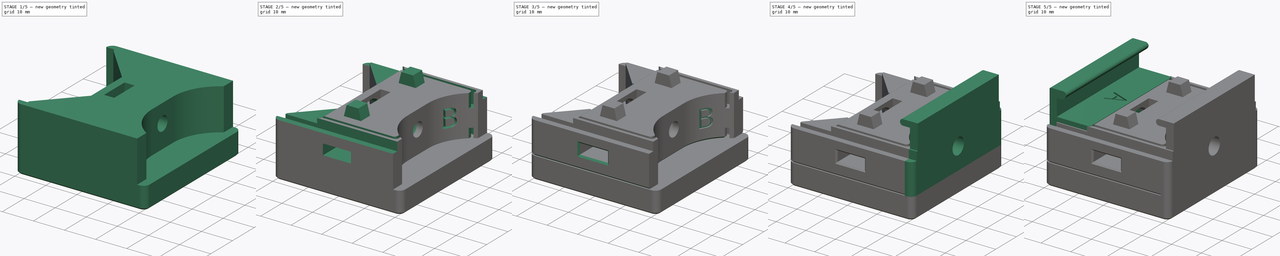
[diagram: build sequence overview — one tinted view per stage of 5, left to right]
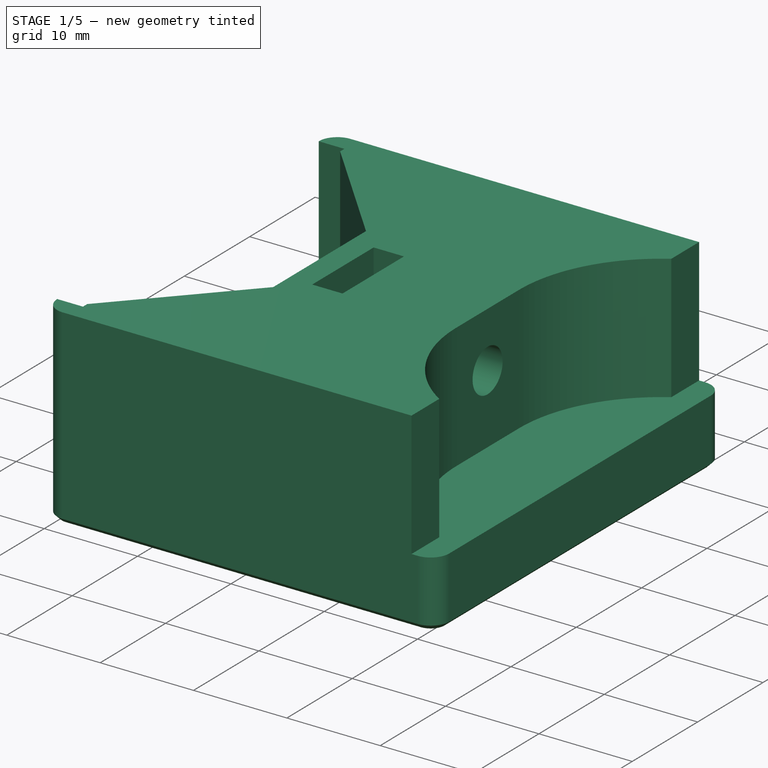
[diagram: stage 1 of 5 — iso view after this stage's code; geometry added in this stage tinted green]
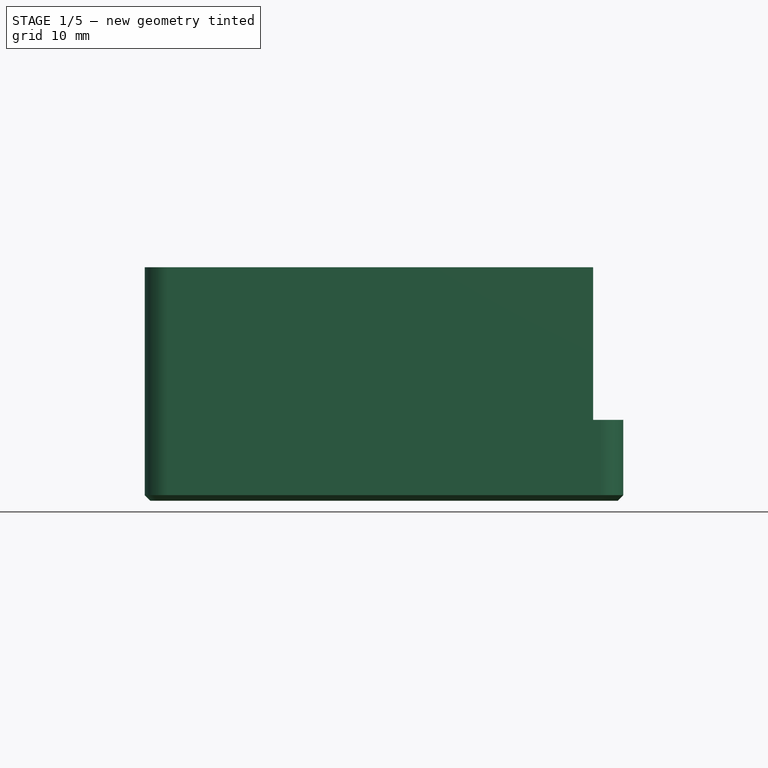
[diagram: stage 1 of 5 — front view after this stage's code; geometry added in this stage tinted green]
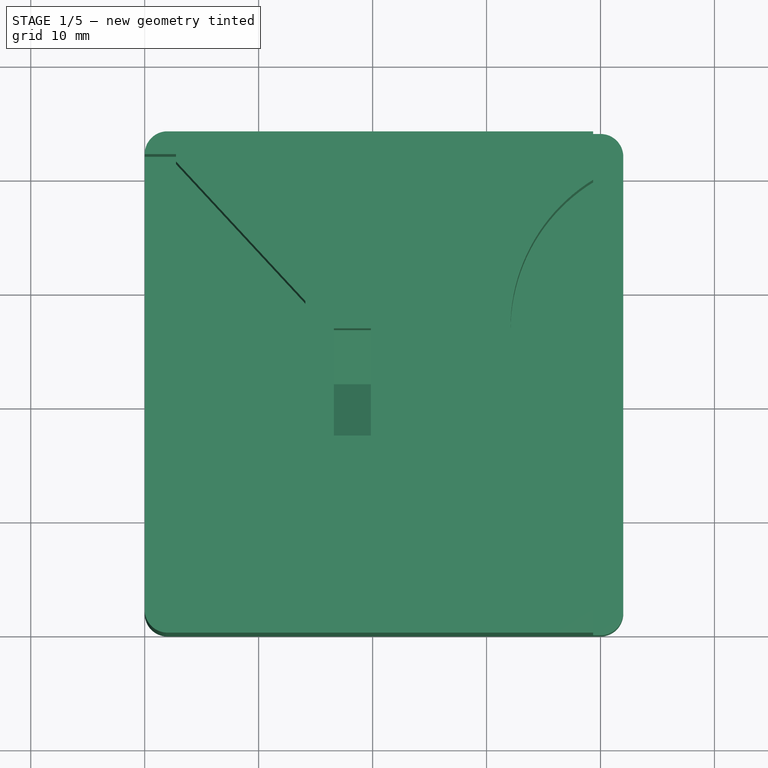
[diagram: stage 1 of 5 — top view after this stage's code; geometry added in this stage tinted green]
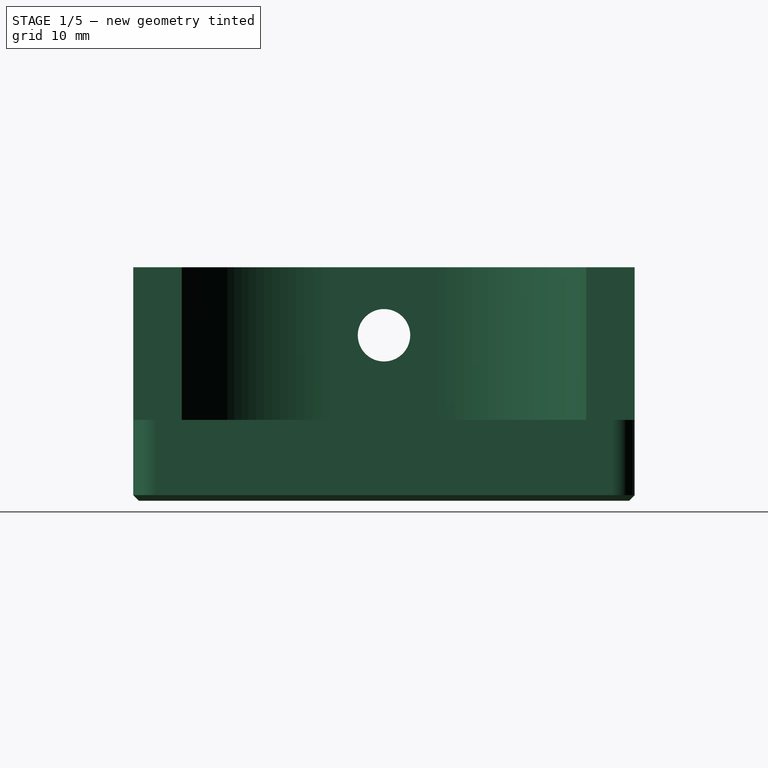
[diagram: stage 1 of 5 — right view after this stage's code; geometry added in this stage tinted green]
FCSTD DOCUMENT  (FreeCAD 1.0R39109 (Git))
Label: Virtual Boy Tripod Adapter
License: All rights reserved
LicenseURL: http://en.wikipedia.org/wiki/All_rights_reserved
objects: Sketcher::SketchObject×42, PartDesign::Pocket×35, PartDesign::Pad×14, PartDesign::Chamfer×9, PartDesign::ShapeBinder×8, Part::Part2DObjectPython×6, PartDesign::Body×5, App::Part×1
note: 277 computed .brp shape members not serialized (recipe doc carries the construction recipe); baked Part::Feature solids carry a one-line shape summary decoded from their .brp

FEATURE [Sketcher::SketchObject] Sketch
  ArcFitTolerance = 0
  AttachmentSupport = -> [XY_Plane]
  FullyConstrained = true
  MakeInternals = false
  MapMode = 5
  sketch-geometry (12):
    g0: LineSegment [constr] StartX=0 StartY=0 StartZ=0 EndX=42 EndY=0 EndZ=0
    g1: LineSegment [constr] StartX=42 StartY=0 StartZ=0 EndX=42 EndY=44 EndZ=0
    g2: LineSegment [constr] StartX=42 StartY=44 StartZ=0 EndX=0 EndY=44 EndZ=0
    g3: LineSegment [constr] StartX=0 StartY=44 StartZ=0 EndX=0 EndY=0 EndZ=0
    g4: LineSegment StartX=2 StartY=44 StartZ=0 EndX=40 EndY=44 EndZ=0
    g5: LineSegment StartX=42 StartY=42 StartZ=0 EndX=42 EndY=2 EndZ=0
    g6: LineSegment StartX=40 StartY=3.859e-13 StartZ=0 EndX=2 EndY=3.859e-13 EndZ=0
    g7: LineSegment StartX=3.859e-13 StartY=2 StartZ=0 EndX=3.859e-13 EndY=42 EndZ=0
    g8: ArcOfCircle CenterX=40 CenterY=2 CenterZ=0 NormalX=0 NormalY=0 NormalZ=1 AngleXU=0 Radius=2 StartAngle=4.71239 EndAngle=6.28319
    g9: ArcOfCircle CenterX=40 CenterY=42 CenterZ=0 NormalX=0 NormalY=0 NormalZ=1 AngleXU=0 Radius=2 StartAngle=4.6e-15 EndAngle=1.5708
    g10: ArcOfCircle CenterX=2 CenterY=42 CenterZ=0 NormalX=0 NormalY=0 NormalZ=1 AngleXU=0 Radius=2 StartAngle=1.5708 EndAngle=3.14159
    g11: ArcOfCircle CenterX=2 CenterY=2 CenterZ=0 NormalX=0 NormalY=0 NormalZ=1 AngleXU=0 Radius=2 StartAngle=3.14159 EndAngle=4.71239
  constraints (31):
    c: Coincident(g0,g1)
    c: Coincident(g1,g2)
    c: Coincident(g2,g3)
    c: Coincident(g3,g0)
    c: Horizontal(g0)
    c: Horizontal(g2)
    c: Vertical(g1)
    c: Vertical(g3)
    c: Coincident(g0,g-1)
    c: Distance(g3) = 44
    c: Distance(g2) = 42
    c: Horizontal(g4)
    c: Horizontal(g6)
    c: Vertical(g5)
    c: Vertical(g7)
    c: Tangent(g6,g8) = 1.5708
    c: Tangent(g5,g8) = 1.5708
    c: Tangent(g5,g9) = 1.5708
    c: Tangent(g4,g9) = 1.5708
    c: Tangent(g4,g10) = 1.5708
    c: Tangent(g7,g10) = 1.5708
    c: Tangent(g7,g11) = 1.5708
    c: Tangent(g6,g11) = 1.5708
    c: PointOnObject(g6,g0)
    c: PointOnObject(g5,g1)
    c: PointOnObject(g4,g2)
    c: PointOnObject(g7,g3)
    c: Equal(g10,g9)
    c: Equal(g9,g8)
    c: Equal(g8,g11)
    c: Radius(g8) = 2
FEATURE [PartDesign::Pad] Pad
  Direction = (0,0,1)
  Length = 7.1
  Length2 = 10
  Profile = -> Sketch
  ReferenceAxis = -> Sketch [N_Axis]
  Suppressed = false
  Type = 0
FEATURE [Sketcher::SketchObject] Sketch002
  ArcFitTolerance = 0
  AttachmentSupport = -> [Pad]
  ExternalGeometry = -> [Pad]
  FullyConstrained = true
  MakeInternals = false
  MapMode = 5
  Placement = pos=(0,0,7.1) rot=(0,0,1;0rad)
  sketch-geometry (17):
    g0: LineSegment [constr] StartX=0 StartY=0 StartZ=0 EndX=42 EndY=0 EndZ=0
    g1: LineSegment [constr] StartX=42 StartY=0 StartZ=0 EndX=42 EndY=44 EndZ=0
    g2: LineSegment [constr] StartX=42 StartY=44 StartZ=0 EndX=0 EndY=44 EndZ=0
    g3: LineSegment [constr] StartX=0 StartY=44 StartZ=0 EndX=0 EndY=0 EndZ=0
    g4: LineSegment StartX=26.6 StartY=18.7668 StartZ=0 EndX=26.6 EndY=25.2332 EndZ=0
    g5: LineSegment StartX=26.6 StartY=25.2332 StartZ=0 EndX=21 EndY=28.4663 EndZ=0
    g6: LineSegment StartX=21 StartY=28.4663 StartZ=0 EndX=15.4 EndY=25.2332 EndZ=0
    g7: LineSegment StartX=15.4 StartY=25.2332 StartZ=0 EndX=15.4 EndY=18.7668 EndZ=0
    g8: LineSegment StartX=15.4 StartY=18.7668 StartZ=0 EndX=21 EndY=15.5337 EndZ=0
    g9: LineSegment StartX=21 StartY=15.5337 StartZ=0 EndX=26.6 EndY=18.7668 EndZ=0
    g10: Circle [constr] CenterX=21 CenterY=22 CenterZ=0 NormalX=0 NormalY=0 NormalZ=1 AngleXU=0 Radius=6.46632
    g11: LineSegment [constr] StartX=15.4 StartY=25.2332 StartZ=0 EndX=26.6 EndY=25.2332 EndZ=0
    g12: Circle CenterX=21 CenterY=22 CenterZ=0 NormalX=0 NormalY=0 NormalZ=1 AngleXU=0 Radius=3.125
    g13: Circle CenterX=21 CenterY=9.8 CenterZ=0 NormalX=0 NormalY=0 NormalZ=1 AngleXU=0 Radius=2.5
    g14: Circle CenterX=21 CenterY=34.2 CenterZ=0 NormalX=0 NormalY=0 NormalZ=1 AngleXU=0 Radius=2.5
    g15: LineSegment [constr] StartX=21 StartY=34.2 StartZ=0 EndX=21 EndY=44 EndZ=0
    g16: LineSegment [constr] StartX=21 StartY=9.8 StartZ=0 EndX=21 EndY=0 EndZ=0
  constraints (41):
    c: Coincident(g0,g1)
    c: Coincident(g1,g2)
    c: Coincident(g2,g3)
    c: Coincident(g3,g0)
    c: Horizontal(g0)
    c: Horizontal(g2)
    c: Vertical(g1)
    c: Vertical(g3)
    c: Coincident(g0,g-1)
    c: PointOnObject(g-4,g2)
    c: PointOnObject(g-3,g1)
    c: Coincident(g4,g5)
    c: Coincident(g5,g6)
    c: Coincident(g6,g7)
    c: Coincident(g7,g8)
    c: Coincident(g8,g9)
    c: Coincident(g9,g4)
    c: Equal(g4, g5-g9) x5
    c: PointOnObject(g4,g10)
    c: PointOnObject(g5,g10)
    c: PointOnObject(g6,g10)
    c: PointOnObject(g7,g10)
    c: PointOnObject(g8,g10)
    c: PointOnObject(g9,g10)
    c: Symmetric(g1,g0,g10)
    c: Vertical(g7)
    c: Coincident(g11,g6)
    c: Coincident(g11,g4)
    c: Distance(g11) = 11.2
    c: Coincident(g12,g10)
    c: Diameter(g12) = 6.25
    c: Coincident(g15,g14)
    c: Coincident(g16,g13)
    c: Distance(g15) = 9.8
    c: Distance(g16) = 9.8
    c: Diameter(g14) = 5
    c: Equal(g14,g13)
    c: Vertical(g16)
    c: Vertical(g15)
    c: Symmetric(g2,g1,g15)
    c: Symmetric(g0,g0,g16)
FEATURE [PartDesign::Pocket] Pocket
  BaseFeature = -> Pad
  Direction = (0,0,-1)
  Length = 5.6
  Length2 = 5
  Profile = -> Sketch002
  ReferenceAxis = -> Sketch002 [N_Axis]
  Suppressed = false
  Type = 0
FEATURE [PartDesign::Pocket] Pocket001
  BaseFeature = -> Pocket
  Direction = (0,0,-1)
  Length = 10
  Length2 = 5
  Profile = -> Pocket [Face23]
  Suppressed = false
  Type = 0
FEATURE [Sketcher::SketchObject] Sketch003
  ArcFitTolerance = 0
  AttachmentSupport = -> [Pocket001]
  ExternalGeometry = -> [Pocket001]
  FullyConstrained = true
  MakeInternals = false
  MapMode = 5
  Placement = pos=(0,0,0) rot=(1,0,0;3.14159rad)
  sketch-geometry (2):
    g0: Circle CenterX=21 CenterY=-34.2 CenterZ=0 NormalX=0 NormalY=0 NormalZ=1 AngleXU=0 Radius=4.75
    g1: Circle CenterX=21 CenterY=-9.8 CenterZ=0 NormalX=0 NormalY=0 NormalZ=1 AngleXU=0 Radius=4.75
  constraints (4):
    c: Coincident(g0,g-3)
    c: Coincident(g1,g-4)
    c: Diameter(g1) = 9.5
    c: Equal(g0,g1)
FEATURE [PartDesign::Pocket] Pocket002
  BaseFeature = -> Pocket001
  Direction = (0,0,1)
  Length = 2.25
  Length2 = 5
  Profile = -> Sketch003
  ReferenceAxis = -> Sketch003 [N_Axis]
  Suppressed = false
  Type = 0
FEATURE [PartDesign::Chamfer] Chamfer
  Angle = 45
  Base = -> Pocket002 [Edge43,Edge45]
  BaseFeature = -> Pocket002
  ChamferType = 0
  FlipDirection = false
  Size = 2.24
  Size2 = 1
  SupportTransform = false
  Suppressed = false
  UseAllEdges = false
FEATURE [Sketcher::SketchObject] Sketch004
  ArcFitTolerance = 0
  AttachmentSupport = -> [Chamfer]
  ExternalGeometry = -> [Chamfer]
  FullyConstrained = true
  MakeInternals = false
  MapMode = 5
  Placement = pos=(0,0,0) rot=(1,0,0;3.14159rad)
  sketch-geometry (2):
    g0: LineSegment [constr] StartX=21 StartY=-22 StartZ=0 EndX=7 EndY=-22 EndZ=0
    g1: Circle CenterX=7 CenterY=-22 CenterZ=0 NormalX=0 NormalY=0 NormalZ=1 AngleXU=0 Radius=2
  constraints (5):
    c: Coincident(g0,g-3)
    c: Horizontal(g0)
    c: Distance(g0) = 14
    c: Coincident(g1,g0)
    c: Diameter(g1) = 4
FEATURE [PartDesign::Pocket] Pocket003
  BaseFeature = -> Chamfer
  Direction = (0,0,1)
  Length = 2.9
  Length2 = 5
  Profile = -> Sketch004
  ReferenceAxis = -> Sketch004 [N_Axis]
  Suppressed = false
  Type = 0
FEATURE [PartDesign::Chamfer] Chamfer001
  Angle = 45
  Base = -> Pocket003 [Face21]
  BaseFeature = -> Pocket003
  ChamferType = 0
  FlipDirection = false
  Refine = true
  Size = 0.5
  Size2 = 1
  SupportTransform = false
  Suppressed = false
  UseAllEdges = false
FEATURE [PartDesign::ShapeBinder] ShapeBinder
  Support = -> [Chamfer001]
  TraceSupport = false
FEATURE [Sketcher::SketchObject] Sketch005
  ArcFitTolerance = 0
  AttachmentSupport = -> [ShapeBinder]
  ExternalGeometry = -> [ShapeBinder]
  FullyConstrained = true
  MakeInternals = false
  MapMode = 5
  Placement = pos=(0,0,7.1) rot=(0,0,1;0rad)
  sketch-geometry (35):
    g0: LineSegment [constr] StartX=0 StartY=0 StartZ=0 EndX=42 EndY=0 EndZ=0
    g1: LineSegment [constr] StartX=42 StartY=0 StartZ=0 EndX=42 EndY=44 EndZ=0
    g2: LineSegment [constr] StartX=42 StartY=44 StartZ=0 EndX=0 EndY=44 EndZ=0
    g3: LineSegment [constr] StartX=0 StartY=44 StartZ=0 EndX=0 EndY=0 EndZ=0
    g4: Circle CenterX=21 CenterY=34.2 CenterZ=0 NormalX=0 NormalY=0 NormalZ=1 AngleXU=0 Radius=2.5
    g5: Circle CenterX=21 CenterY=9.8 CenterZ=0 NormalX=0 NormalY=0 NormalZ=1 AngleXU=0 Radius=2.5
    g6: LineSegment [constr] StartX=42 StartY=42 StartZ=0 EndX=39.35 EndY=42 EndZ=0
    g7: LineSegment StartX=39.35 StartY=44 StartZ=0 EndX=39.35 EndY=39.75 EndZ=0
    g8: LineSegment [constr] StartX=39.35 StartY=39.75 StartZ=0 EndX=39.35 EndY=26.75 EndZ=0
    g9: LineSegment [constr] StartX=39.35 StartY=26.75 StartZ=0 EndX=39.35 EndY=17.25 EndZ=0
    g10: LineSegment [constr] StartX=39.35 StartY=17.25 StartZ=0 EndX=39.35 EndY=4.25 EndZ=0
    g11: LineSegment StartX=39.35 StartY=4.25 StartZ=0 EndX=39.35 EndY=0 EndZ=0
    g12: LineSegment [constr] StartX=42 StartY=22 StartZ=0 EndX=32.1 EndY=22 EndZ=0
    g13: LineSegment StartX=32.1 StartY=26.75 StartZ=0 EndX=32.1 EndY=17.25 EndZ=0
    g14: ArcOfCircle CenterX=47.3802 CenterY=17.25 CenterZ=0 NormalX=0 NormalY=0 NormalZ=1 AngleXU=0 Radius=15.2802 StartAngle=3.14159 EndAngle=4.15905
    g15: ArcOfCircle CenterX=47.3802 CenterY=26.75 CenterZ=0 NormalX=0 NormalY=0 NormalZ=1 AngleXU=0 Radius=15.2802 StartAngle=2.12413 EndAngle=3.14159
    g16: LineSegment [constr] StartX=0 StartY=44 StartZ=0 EndX=2.75 EndY=44 EndZ=0
    g17: LineSegment [constr] StartX=2.75 StartY=44 StartZ=0 EndX=2.75 EndY=42 EndZ=0
    g18: LineSegment StartX=2.75 StartY=42 StartZ=0 EndX=0 EndY=42 EndZ=0
    g19: LineSegment [constr] StartX=0 StartY=42 StartZ=0 EndX=0 EndY=44 EndZ=0
    g20: ArcOfCircle CenterX=2 CenterY=42 CenterZ=0 NormalX=0 NormalY=0 NormalZ=1 AngleXU=0 Radius=2 StartAngle=1.5708 EndAngle=3.14159
    g21: LineSegment StartX=2 StartY=44 StartZ=0 EndX=39.35 EndY=44 EndZ=0
    g22: LineSegment [constr] StartX=0 StartY=0 StartZ=0 EndX=2.75 EndY=0 EndZ=0
    g23: LineSegment [constr] StartX=2.75 StartY=0 StartZ=0 EndX=2.75 EndY=2 EndZ=0
    g24: LineSegment StartX=2.75 StartY=2 StartZ=0 EndX=0 EndY=2 EndZ=0
    g25: LineSegment [constr] StartX=0 StartY=2 StartZ=0 EndX=0 EndY=0 EndZ=0
    g26: ArcOfCircle CenterX=2 CenterY=2 CenterZ=0 NormalX=0 NormalY=0 NormalZ=1 AngleXU=0 Radius=2 StartAngle=3.14159 EndAngle=4.71239
    g27: LineSegment StartX=2 StartY=3.859e-13 StartZ=0 EndX=39.35 EndY=0 EndZ=0
    g28: LineSegment StartX=2.75 StartY=2 StartZ=0 EndX=2.75 EndY=2.65 EndZ=0
    g29: LineSegment StartX=2.75 StartY=42 StartZ=0 EndX=2.75 EndY=41.35 EndZ=0
    g30: LineSegment StartX=2.75 StartY=41.35 StartZ=0 EndX=14.1 EndY=29.1 EndZ=0
    g31: LineSegment StartX=14.1 StartY=29.1 StartZ=0 EndX=14.1 EndY=14.9 EndZ=0
    g32: LineSegment StartX=14.1 StartY=14.9 StartZ=0 EndX=2.75 EndY=2.65 EndZ=0
    g33: LineSegment [constr] StartX=32.1 StartY=22 StartZ=0 EndX=14.1 EndY=22 EndZ=0
    g34: LineSegment [constr] StartX=14.1 StartY=22 StartZ=0 EndX=0 EndY=22 EndZ=0
  constraints (95):
    c: Coincident(g0,g1)
    c: Coincident(g1,g2)
    c: Coincident(g2,g3)
    c: Coincident(g3,g0)
    c: Horizontal(g0)
    c: Horizontal(g2)
    c: Vertical(g1)
    c: Vertical(g3)
    c: Coincident(g0,g-1)
    c: PointOnObject(g-3,g2)
    c: PointOnObject(g-5,g1)
    c: Coincident(g4,g-4)
    c: Coincident(g5,g-6)
    c: Coincident(g6,g-5)
    c: Horizontal(g6)
    c: Distance(g6) = 2.65
    c: PointOnObject(g7,g2)
    c: Vertical(g7)
    c: PointOnObject(g6,g7)
    c: Distance(g7) = 4.25
    c: Coincident(g8,g7)
    c: Vertical(g8)
    c: Coincident(g9,g8)
    c: Vertical(g9)
    c: Coincident(g10,g9)
    c: Vertical(g10)
    c: Coincident(g11,g10)
    c: PointOnObject(g11,g0)
    c: Vertical(g11)
    c: Equal(g7,g11)
    c: Equal(g10,g8)
    c: Distance(g9) = 9.5
    c: Symmetric(g1,g0,g12)
    c: Distance(g12) = 9.9
    c: Vertical(g13)
    c: Symmetric(g13,g13,g12)
    c: Equal(g13,g9)
    c: Horizontal(g12)
    c: Coincident(g14,g11)
    c: Coincident(g15,g7)
    c: Tangent(g15,g13) = -1.5708
    c: Tangent(g14,g13) = -1.5708
    c: Coincident(g16,g17)
    c: Coincident(g17,g18)
    c: Coincident(g18,g19)
    c: Coincident(g19,g16)
    c: Horizontal(g16)
    c: Horizontal(g18)
    c: Vertical(g17)
    c: Vertical(g19)
    c: Coincident(g16,g2)
    c: Distance(g17) = 2
    c: Distance(g18) = 2.75
    c: Coincident(g20,g18)
    c: Coincident(g20,g-3)
    c: Tangent(g20,g3)
    c: Coincident(g21,g20)
    c: Coincident(g21,g7)
    c: Coincident(g22,g23)
    c: Coincident(g23,g24)
    c: Coincident(g24,g25)
    c: Coincident(g25,g22)
    c: Horizontal(g22)
    c: Horizontal(g24)
    c: Vertical(g23)
    c: Vertical(g25)
    c: Coincident(g22,g0)
    c: Equal(g18,g24)
    c: Equal(g23,g17)
    c: Coincident(g26,g24)
    c: Coincident(g26,g-7)
    c: Tangent(g3,g26)
    c: Coincident(g27,g26)
    c: Coincident(g27,g11)
    c: Coincident(g28,g24)
    c: Vertical(g28)
    c: Coincident(g29,g18)
    c: Vertical(g29)
    c: Coincident(g30,g29)
    c: Coincident(g31,g30)
    c: Vertical(g31)
    c: Coincident(g32,g31)
    c: Coincident(g32,g28)
    c: Coincident(g33,g12)
    c: Horizontal(g33)
    c: Symmetric(g30,g31,g33)
    c: Coincident(g34,g33)
    c: PointOnObject(g34,g3)
    c: Horizontal(g34)
    c: Distance(g31) = 14.2
    c: Distance(g29) = 0.65
    c: Equal(g29,g28)
    c: Distance(g33) = 18
    c: Diameter(g4) = 5
    c: Equal(g4,g5)
FEATURE [PartDesign::Pad] Pad001
  Direction = (0,0,1)
  Length = 13.4
  Length2 = 10
  Profile = -> Sketch005
  ReferenceAxis = -> Sketch005 [N_Axis]
  Suppressed = false
  Type = 0
FEATURE [Sketcher::SketchObject] Sketch006
  ArcFitTolerance = 0
  AttachmentSupport = -> [Pad001]
  ExternalGeometry = -> [Pad001]
  FullyConstrained = true
  MakeInternals = false
  MapMode = 5
  Placement = pos=(0,0,20.5) rot=(0,0,1;0rad)
  sketch-geometry (2):
    g0: Circle CenterX=21 CenterY=9.8 CenterZ=0 NormalX=0 NormalY=0 NormalZ=1 AngleXU=0 Radius=2.5
    g1: Circle CenterX=21 CenterY=34.2 CenterZ=0 NormalX=0 NormalY=0 NormalZ=1 AngleXU=0 Radius=2.5
  constraints (4):
    c: Coincident(g0,g-4)
    c: Coincident(g1,g-3)
    c: Equal(g-3,g1)
    c: Equal(g-4,g0)
FEATURE [PartDesign::Pad] Pad002
  BaseFeature = -> Pad001
  Direction = (0,0,1)
  Length = 3.15
  Length2 = 10
  Profile = -> Sketch006
  ReferenceAxis = -> Sketch006 [N_Axis]
  Refine = true
  Reversed = true
  Suppressed = false
  Type = 0
FEATURE [Sketcher::SketchObject] Sketch007
  ArcFitTolerance = 0
  AttachmentSupport = -> [Pad002]
  ExternalGeometry = -> [Pad002]
  FullyConstrained = true
  MakeInternals = false
  MapMode = 5
  Placement = pos=(14.1,0,0) rot=(0.57735,-0.57735,-0.57735;2.0944rad)
  sketch-geometry (13):
    g0: LineSegment [constr] StartX=-22 StartY=19.9542 StartZ=0 EndX=-26.7 EndY=17.2406 EndZ=0
    g1: LineSegment StartX=-26.7 StartY=17.2406 StartZ=0 EndX=-26.7 EndY=11.8135 EndZ=0
    g2: LineSegment StartX=-26.7 StartY=11.8135 StartZ=0 EndX=-22 EndY=9.1 EndZ=0
    g3: LineSegment StartX=-22 StartY=9.1 StartZ=0 EndX=-17.3 EndY=11.8135 EndZ=0
    g4: LineSegment StartX=-17.3 StartY=11.8135 StartZ=0 EndX=-17.3 EndY=17.2406 EndZ=0
    g5: LineSegment [constr] StartX=-17.3 StartY=17.2406 StartZ=0 EndX=-22 EndY=19.9542 EndZ=0
    g6: Circle [constr] CenterX=-22 CenterY=14.5271 CenterZ=0 NormalX=0 NormalY=0 NormalZ=1 AngleXU=0 Radius=5.42709
    g7: LineSegment [constr] StartX=-22 StartY=9.1 StartZ=0 EndX=-22 EndY=7.1 EndZ=0
    g8: LineSegment [constr] StartX=-26.7 StartY=11.8135 StartZ=0 EndX=-17.3 EndY=11.8135 EndZ=0
    g9: LineSegment StartX=-26.7 StartY=17.2406 StartZ=0 EndX=-26.7 EndY=20.5 EndZ=0
    g10: LineSegment StartX=-17.3 StartY=17.2406 StartZ=0 EndX=-17.3 EndY=20.5 EndZ=0
    g11: LineSegment StartX=-17.3 StartY=20.5 StartZ=0 EndX=-26.7 EndY=20.5 EndZ=0
    g12: Circle CenterX=-22 CenterY=14.5271 CenterZ=0 NormalX=0 NormalY=0 NormalZ=1 AngleXU=0 Radius=2.3
  constraints (31):
    c: Coincident(g0,g1)
    c: Coincident(g1,g2)
    c: Coincident(g2,g3)
    c: Coincident(g3,g4)
    c: Coincident(g4,g5)
    c: Coincident(g5,g0)
    c: Equal(g0, g1-g5) x5
    c: PointOnObject(g0,g6)
    c: PointOnObject(g1,g6)
    c: PointOnObject(g2,g6)
    c: PointOnObject(g3,g6)
    c: PointOnObject(g4,g6)
    c: PointOnObject(g5,g6)
    c: Vertical(g1)
    c: Coincident(g7,g2)
    c: Vertical(g7)
    c: Symmetric(g-3,g-3,g7)
    c: Distance(g7) = 2
    c: Coincident(g8,g1)
    c: Coincident(g8,g3)
    c: Distance(g8) = 9.4
    c: Coincident(g9,g1)
    c: PointOnObject(g9,g-4)
    c: Vertical(g9)
    c: Coincident(g10,g4)
    c: PointOnObject(g10,g-4)
    c: Vertical(g10)
    c: Coincident(g11,g10)
    c: Coincident(g11,g9)
    c: Coincident(g12,g6)
    c: Diameter(g12) = 4.6
FEATURE [PartDesign::Pocket] Pocket004
  BaseFeature = -> Pad002
  Direction = (1,0,0)
  Length = 5.75
  Length2 = -2.5
  Profile = -> Sketch007
  ReferenceAxis = -> Sketch007 [N_Axis]
  Suppressed = false
  Type = 4
FEATURE [Sketcher::SketchObject] Sketch008
  ArcFitTolerance = 0
  AttachmentSupport = -> [Pocket004]
  ExternalGeometry = -> [Pocket004]
  FullyConstrained = true
  MakeInternals = false
  MapMode = 5
  Placement = pos=(14.1,0,0) rot=(0.57735,-0.57735,-0.57735;2.0944rad)
  sketch-geometry (1):
    g0: Circle CenterX=-22 CenterY=14.5271 CenterZ=0 NormalX=0 NormalY=0 NormalZ=1 AngleXU=0 Radius=2.3
  constraints (2):
    c: Coincident(g0,g-3)
    c: Equal(g-3,g0)
FEATURE [PartDesign::Pocket] Pocket005
  BaseFeature = -> Pocket004
  Direction = (1,0,0)
  Length = 30
  Length2 = 5
  Profile = -> Sketch008
  ReferenceAxis = -> Sketch008 [N_Axis]
  Suppressed = false
  Type = 0
FEATURE [PartDesign::Body] Body001  label="Virtual Boy Adapter"
  AllowCompound = false
  Group = -> [ShapeBinder,Sketch005,Pad001,Sketch006,Pad002,Sketch007,Pocket004,Sketch008,Pocket005,Sketch009,Pocket006,Sketch010,Pad003,Sketch011,Pocket007,Sketch013,Pocket008,Sketch014,Pocket009,Sketch027,Pocket017,Sketch028,Pocket018,Sketch031,Pocket021,ShapeString,ShapeString001,ShapeString006,ShapeString007,Pocket022,Pocket023,Pocket024,Pocket025,Sketch032,Pad010,Sketch034,Pocket026,Sketch035,Pocket027,+11 more]
  Origin = -> Origin002
  Tip = -> Pad012
FEATURE [Sketcher::SketchObject] Sketch045
  ArcFitTolerance = 0
  AttachmentSupport = -> [Chamfer001]
  ExternalGeometry = -> [Chamfer001]
  FullyConstrained = true
  MakeInternals = false
  MapMode = 5
  Placement = pos=(0,0,7.1) rot=(0,0,1;0rad)
  sketch-geometry (16):
    g0: LineSegment StartX=21 StartY=28.4663 StartZ=0 EndX=15.4 EndY=25.2332 EndZ=0
    g1: LineSegment StartX=15.4 StartY=25.2332 StartZ=0 EndX=15.4 EndY=18.7668 EndZ=0
    g2: LineSegment StartX=15.4 StartY=18.7668 StartZ=0 EndX=21 EndY=15.5337 EndZ=0
    g3: LineSegment StartX=21 StartY=15.5337 StartZ=0 EndX=26.6 EndY=18.7668 EndZ=0
    g4: LineSegment StartX=26.6 StartY=18.7668 StartZ=0 EndX=26.6 EndY=25.2332 EndZ=0
    g5: LineSegment StartX=26.6 StartY=25.2332 StartZ=0 EndX=21 EndY=28.4663 EndZ=0
    g6: Circle [constr] CenterX=21 CenterY=22 CenterZ=0 NormalX=0 NormalY=0 NormalZ=1 AngleXU=0 Radius=6.46632
    g7: LineSegment StartX=21 StartY=28.3509 StartZ=0 EndX=15.5 EndY=25.1754 EndZ=0
    g8: LineSegment StartX=15.5 StartY=25.1754 StartZ=0 EndX=15.5 EndY=18.8246 EndZ=0
    g9: LineSegment StartX=15.5 StartY=18.8246 StartZ=0 EndX=21 EndY=15.6491 EndZ=0
    g10: LineSegment StartX=21 StartY=15.6491 StartZ=0 EndX=26.5 EndY=18.8246 EndZ=0
    g11: LineSegment StartX=26.5 StartY=18.8246 StartZ=0 EndX=26.5 EndY=25.1754 EndZ=0
    g12: LineSegment StartX=26.5 StartY=25.1754 StartZ=0 EndX=21 EndY=28.3509 EndZ=0
    g13: Circle [constr] CenterX=21 CenterY=22 CenterZ=0 NormalX=0 NormalY=0 NormalZ=1 AngleXU=0 Radius=6.35085
    g14: LineSegment [constr] StartX=21 StartY=28.3509 StartZ=0 EndX=21 EndY=28.4663 EndZ=0
    g15: LineSegment [constr] StartX=15.5 StartY=18.8246 StartZ=0 EndX=26.5 EndY=18.8246 EndZ=0
  constraints (35):
    c: Coincident(g0,g1)
    c: Coincident(g1,g2)
    c: Coincident(g2,g3)
    c: Coincident(g3,g4)
    c: Coincident(g4,g5)
    c: Coincident(g5,g0)
    c: Equal(g0, g1-g5) x5
    c: PointOnObject(g0,g6)
    c: PointOnObject(g1,g6)
    c: PointOnObject(g2,g6)
    c: PointOnObject(g3,g6)
    c: PointOnObject(g4,g6)
    c: PointOnObject(g5,g6)
    c: Coincident(g6,g-3)
    c: Coincident(g0,g-4)
    c: Coincident(g7,g8)
    c: Coincident(g8,g9)
    c: Coincident(g9,g10)
    c: Coincident(g10,g11)
    c: Coincident(g11,g12)
    c: Coincident(g12,g7)
    c: Equal(g7, g8-g12) x5
    c: PointOnObject(g7,g13)
    c: PointOnObject(g8,g13)
    c: PointOnObject(g9,g13)
    c: PointOnObject(g10,g13)
    c: PointOnObject(g11,g13)
    c: PointOnObject(g12,g13)
    c: Coincident(g13,g6)
    c: Coincident(g14,g7)
    c: Coincident(g14,g0)
    c: Vertical(g14)
    c: Coincident(g15,g8)
    c: Coincident(g15,g10)
    c: Distance(g15) = 11
FEATURE [PartDesign::Pad] Pad013
  BaseFeature = -> Chamfer001
  Direction = (0,0,1)
  Length = 10
  Length2 = 10
  Profile = -> Sketch045
  ReferenceAxis = -> Sketch045 [N_Axis]
  Refine = true
  Suppressed = false
  Type = 3
  UpToFace = -> Chamfer001 [Face33]
FEATURE [PartDesign::Body] Body  label="TriPod Adapter"
  AllowCompound = false
  Group = -> [Sketch,Pad,Sketch002,Pocket,Pocket001,Sketch003,Pocket002,Chamfer,Sketch004,Pocket003,Chamfer001,Sketch045,Pad013]
  Origin = -> Origin
  Tip = -> Pad013
FEATURE [App::Part] Part  label="VB TriPod Kit"
  Group = -> [Body,Body001,Body002,Body003,Body004]
  Origin = -> Origin001
note: 6 file-system paths scrubbed to <path> (originals preserved in the JSON sidecar)
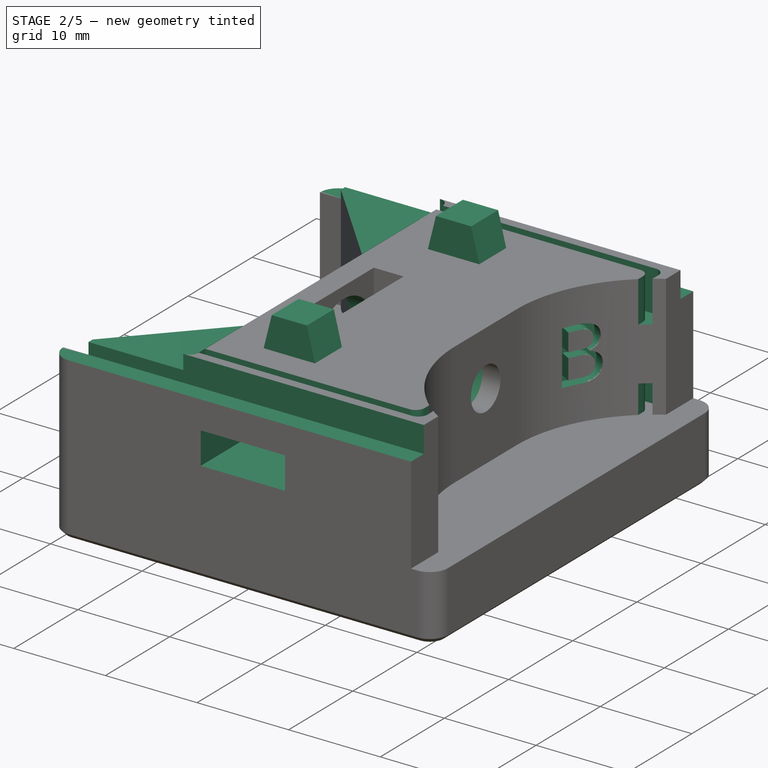
[diagram: stage 2 of 5 — iso view after this stage's code; geometry added in this stage tinted green]
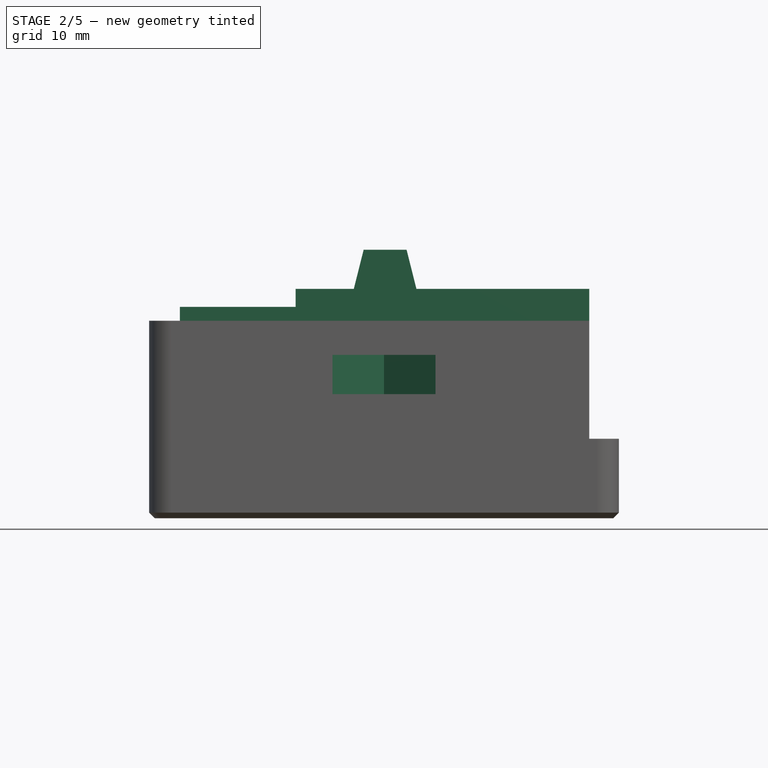
[diagram: stage 2 of 5 — front view after this stage's code; geometry added in this stage tinted green]
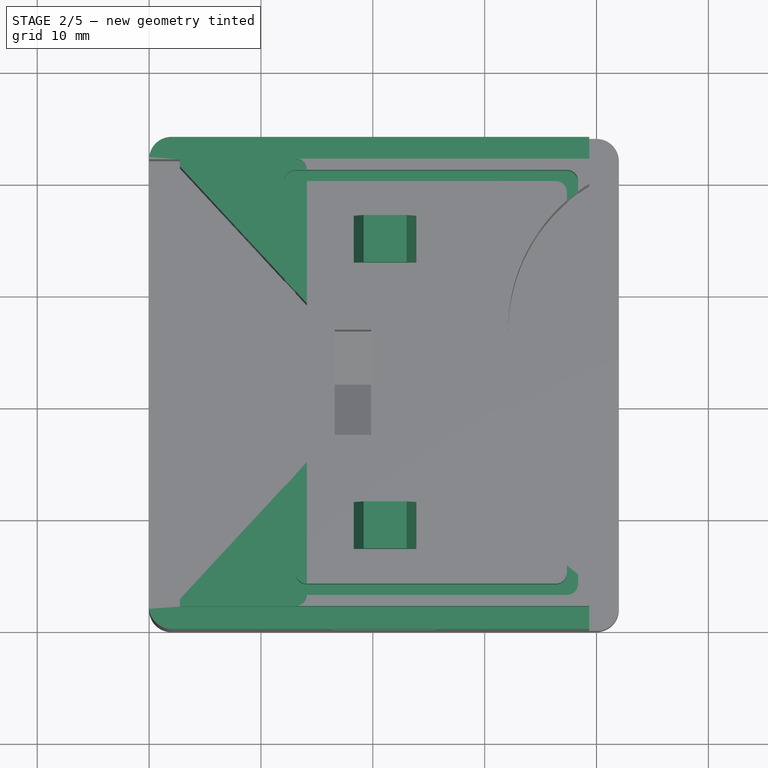
[diagram: stage 2 of 5 — top view after this stage's code; geometry added in this stage tinted green]
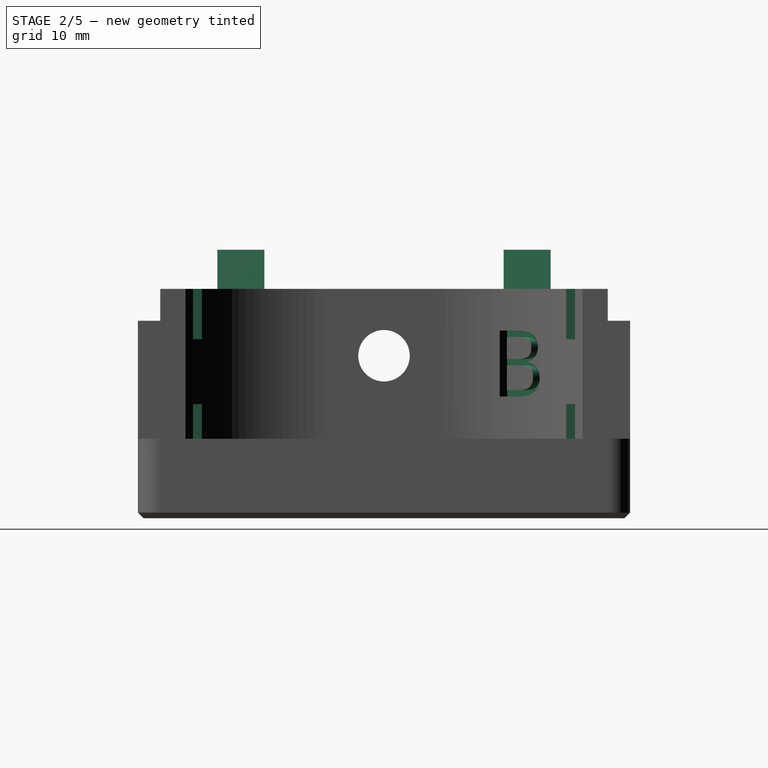
[diagram: stage 2 of 5 — right view after this stage's code; geometry added in this stage tinted green]
FEATURE [Sketcher::SketchObject] Sketch009
  ArcFitTolerance = 0
  AttachmentSupport = -> [Pocket005]
  ExternalGeometry = -> [Pocket005]
  FullyConstrained = true
  MakeInternals = false
  MapMode = 5
  Placement = pos=(14.1,0,0) rot=(0.57735,-0.57735,-0.57735;2.0944rad)
  sketch-geometry (1):
    g0: Circle CenterX=-22 CenterY=14.5271 CenterZ=0 NormalX=0 NormalY=0 NormalZ=1 AngleXU=0 Radius=4.7
  constraints (2):
    c: Coincident(g0,g-3)
    c: Diameter(g0) = 9.4
FEATURE [PartDesign::Pocket] Pocket006
  BaseFeature = -> Pocket005
  Direction = (1,0,0)
  Length = 16
  Length2 = 5
  Profile = -> Sketch009
  ReferenceAxis = -> Sketch009 [N_Axis]
  Refine = true
  Suppressed = false
  Type = 0
FEATURE [Sketcher::SketchObject] Sketch010
  ArcFitTolerance = 0
  AttachmentSupport = -> [Pocket006]
  ExternalGeometry = -> [Pocket006]
  FullyConstrained = true
  MakeInternals = false
  MapMode = 5
  Placement = pos=(0,0,20.5) rot=(0,0,1;0rad)
  sketch-geometry (10):
    g0: LineSegment StartX=18.3 StartY=36.9 StartZ=0 EndX=23.9 EndY=36.9 EndZ=0
    g1: LineSegment StartX=23.9 StartY=36.9 StartZ=0 EndX=23.9 EndY=32.7 EndZ=0
    g2: LineSegment StartX=23.9 StartY=32.7 StartZ=0 EndX=18.3 EndY=32.7 EndZ=0
    g3: LineSegment StartX=18.3 StartY=32.7 StartZ=0 EndX=18.3 EndY=36.9 EndZ=0
    g4: LineSegment StartX=18.3 StartY=11.3 StartZ=0 EndX=23.9 EndY=11.3 EndZ=0
    g5: LineSegment StartX=23.9 StartY=11.3 StartZ=0 EndX=23.9 EndY=7.1 EndZ=0
    g6: LineSegment StartX=23.9 StartY=7.1 StartZ=0 EndX=18.3 EndY=7.1 EndZ=0
    g7: LineSegment StartX=18.3 StartY=7.1 StartZ=0 EndX=18.3 EndY=11.3 EndZ=0
    g8: LineSegment [constr] StartX=18.3 StartY=11.3 StartZ=0 EndX=18.3 EndY=32.7 EndZ=0
    g9: LineSegment [constr] StartX=14.1 StartY=22 StartZ=0 EndX=18.3 EndY=22 EndZ=0
  constraints (28):
    c: Coincident(g0,g1)
    c: Coincident(g1,g2)
    c: Coincident(g2,g3)
    c: Coincident(g3,g0)
    c: Horizontal(g0)
    c: Horizontal(g2)
    c: Vertical(g1)
    c: Vertical(g3)
    c: Coincident(g4,g5)
    c: Coincident(g5,g6)
    c: Coincident(g6,g7)
    c: Coincident(g7,g4)
    c: Horizontal(g4)
    c: Horizontal(g6)
    c: Vertical(g5)
    c: Vertical(g7)
    c: Coincident(g8,g4)
    c: Coincident(g8,g2)
    c: Vertical(g8)
    c: Horizontal(g9)
    c: Symmetric(g2,g4,g9)
    c: Symmetric(g-3,g-3,g9)
    c: Equal(g3,g7)
    c: Equal(g4,g2)
    c: Distance(g8) = 21.4
    c: Distance(g9) = 4.2
    c: Distance(g3) = 4.2
    c: Distance(g6) = 5.6
FEATURE [PartDesign::Pad] Pad003
  BaseFeature = -> Pocket006
  Direction = (0,0,1)
  Length = 3.5
  Length2 = 10
  Profile = -> Sketch010
  ReferenceAxis = -> Sketch010 [N_Axis]
  Suppressed = false
  Type = 0
FEATURE [Sketcher::SketchObject] Sketch011
  ArcFitTolerance = 0
  AttachmentSupport = -> [Pad003]
  ExternalGeometry = -> [Pad003]
  FullyConstrained = true
  MakeInternals = false
  MapMode = 5
  Placement = pos=(0,7.1,0) rot=(1,0,0;1.5708rad)
  sketch-geometry (7):
    g0: LineSegment StartX=18.3 StartY=20.5 StartZ=0 EndX=19.18 EndY=24 EndZ=0
    g1: LineSegment StartX=19.18 StartY=24 StartZ=0 EndX=18.3 EndY=24 EndZ=0
    g2: LineSegment StartX=18.3 StartY=24 StartZ=0 EndX=18.3 EndY=20.5 EndZ=0
    g3: LineSegment StartX=23.9 StartY=20.5 StartZ=0 EndX=23.9 EndY=24 EndZ=0
    g4: LineSegment StartX=23.9 StartY=24 StartZ=0 EndX=23.02 EndY=24 EndZ=0
    g5: LineSegment StartX=23.02 StartY=24 StartZ=0 EndX=23.9 EndY=20.5 EndZ=0
    g6: LineSegment [constr] StartX=19.18 StartY=24 StartZ=0 EndX=23.02 EndY=24 EndZ=0
  constraints (16):
    c: Coincident(g0,g-4)
    c: PointOnObject(g0,g-3)
    c: Coincident(g1,g0)
    c: Coincident(g1,g-3)
    c: Coincident(g2,g1)
    c: Coincident(g2,g0)
    c: Coincident(g3,g-4)
    c: Coincident(g3,g-3)
    c: Coincident(g4,g3)
    c: PointOnObject(g4,g-3)
    c: Coincident(g5,g4)
    c: Coincident(g5,g3)
    c: Equal(g0,g5)
    c: Coincident(g6,g0)
    c: Coincident(g6,g4)
    c: Distance(g6) = 3.84
FEATURE [PartDesign::Pocket] Pocket007
  BaseFeature = -> Pad003
  Direction = (0,1,-2e-16)
  Length = 200
  Length2 = 5
  Profile = -> Sketch011
  ReferenceAxis = -> Sketch011 [N_Axis]
  Refine = true
  Suppressed = false
  Type = 0
FEATURE [Sketcher::SketchObject] Sketch013
  ArcFitTolerance = 0
  AttachmentSupport = -> [Pocket007]
  ExternalGeometry = -> [Pocket007]
  FullyConstrained = true
  MakeInternals = false
  MapMode = 5
  Placement = pos=(0,0,20.5) rot=(0,0,1;0rad)
  sketch-geometry (10):
    g0: LineSegment [constr] StartX=2.75 StartY=42 StartZ=0 EndX=14.1 EndY=42 EndZ=0
    g1: LineSegment [constr] StartX=14.1 StartY=42 StartZ=0 EndX=14.1 EndY=2 EndZ=0
    g2: LineSegment [constr] StartX=14.1 StartY=2 StartZ=0 EndX=2.75 EndY=2 EndZ=0
    g3: LineSegment [constr] StartX=2.75 StartY=2 StartZ=0 EndX=2.75 EndY=42 EndZ=0
    g4: LineSegment StartX=2.75 StartY=42 StartZ=0 EndX=13.1 EndY=42 EndZ=0
    g5: LineSegment StartX=14.1 StartY=41 StartZ=0 EndX=14.1 EndY=3 EndZ=0
    g6: LineSegment StartX=13.1 StartY=2 StartZ=0 EndX=2.75 EndY=2 EndZ=0
    g7: LineSegment StartX=2.75 StartY=2 StartZ=0 EndX=2.75 EndY=42 EndZ=0
    g8: ArcOfCircle CenterX=13.1 CenterY=41 CenterZ=0 NormalX=0 NormalY=0 NormalZ=1 AngleXU=0 Radius=1 StartAngle=1.51e-14 EndAngle=1.5708
    g9: ArcOfCircle CenterX=13.1 CenterY=3 CenterZ=0 NormalX=0 NormalY=0 NormalZ=1 AngleXU=0 Radius=1 StartAngle=4.71239 EndAngle=6.28319
  constraints (24):
    c: Coincident(g0,g1)
    c: Coincident(g1,g2)
    c: Coincident(g2,g3)
    c: Coincident(g3,g0)
    c: Horizontal(g0)
    c: Horizontal(g2)
    c: Vertical(g1)
    c: Coincident(g0,g-4)
    c: PointOnObject(g-5,g1)
    c: Coincident(g2,g-3)
    c: Coincident(g6,g7)
    c: Coincident(g7,g4)
    c: Horizontal(g4)
    c: Horizontal(g6)
    c: Vertical(g5)
    c: Coincident(g4,g0)
    c: Coincident(g6,g2)
    c: Tangent(g4,g8) = 1.5708
    c: Tangent(g5,g8) = 1.5708
    c: Tangent(g5,g9) = 1.5708
    c: Tangent(g6,g9) = 1.5708
    c: Equal(g8,g9)
    c: PointOnObject(g5,g1)
    c: Radius(g8) = 1
FEATURE [PartDesign::Pocket] Pocket008
  BaseFeature = -> Pocket007
  Direction = (0,0,-1)
  Length = 1.6
  Length2 = 5
  Profile = -> Sketch013
  ReferenceAxis = -> Sketch013 [N_Axis]
  Suppressed = false
  Type = 0
FEATURE [Sketcher::SketchObject] Sketch014
  ArcFitTolerance = 0
  AttachmentSupport = -> [Pocket008]
  ExternalGeometry = -> [Pocket008]
  FullyConstrained = true
  MakeInternals = false
  MapMode = 5
  Placement = pos=(39.35,0,0) rot=(0.57735,0.57735,0.57735;2.0944rad)
  sketch-geometry (8):
    g0: LineSegment StartX=44 StartY=20.5 StartZ=0 EndX=42 EndY=20.5 EndZ=0
    g1: LineSegment StartX=42 StartY=20.5 StartZ=0 EndX=42 EndY=17.65 EndZ=0
    g2: LineSegment StartX=42 StartY=17.65 StartZ=0 EndX=44 EndY=17.65 EndZ=0
    g3: LineSegment StartX=44 StartY=17.65 StartZ=0 EndX=44 EndY=20.5 EndZ=0
    g4: LineSegment StartX=0 StartY=20.5 StartZ=0 EndX=2 EndY=20.5 EndZ=0
    g5: LineSegment StartX=2 StartY=20.5 StartZ=0 EndX=2 EndY=17.65 EndZ=0
    g6: LineSegment StartX=2 StartY=17.65 StartZ=0 EndX=0 EndY=17.65 EndZ=0
    g7: LineSegment StartX=0 StartY=17.65 StartZ=0 EndX=0 EndY=20.5 EndZ=0
  constraints (22):
    c: Coincident(g0,g1)
    c: Coincident(g1,g2)
    c: Coincident(g2,g3)
    c: Coincident(g3,g0)
    c: Horizontal(g0)
    c: Horizontal(g2)
    c: Vertical(g1)
    c: Vertical(g3)
    c: Coincident(g0,g-4)
    c: Coincident(g4,g5)
    c: Coincident(g5,g6)
    c: Coincident(g6,g7)
    c: Coincident(g7,g4)
    c: Horizontal(g4)
    c: Horizontal(g6)
    c: Vertical(g5)
    c: Vertical(g7)
    c: Coincident(g4,g-3)
    c: Distance(g7) = 2.85
    c: Distance(g0) = 2
    c: Equal(g4,g0)
    c: Equal(g1,g5)
FEATURE [PartDesign::Pocket] Pocket009
  BaseFeature = -> Pocket008
  Direction = (-1,0,0)
  Length = 200
  Length2 = 5
  Profile = -> Sketch014
  ReferenceAxis = -> Sketch014 [N_Axis]
  Refine = true
  Suppressed = false
  Type = 0
FEATURE [Sketcher::SketchObject] Sketch027
  ArcFitTolerance = 0
  AttachmentSupport = -> [Pocket009]
  ExternalGeometry = -> [Pocket009]
  FullyConstrained = true
  MakeInternals = false
  MapMode = 5
  Placement = pos=(0,0,7.1) rot=(1,0,0;3.14159rad)
  sketch-geometry (23):
    g0: LineSegment StartX=13.1 StartY=-41 StartZ=0 EndX=37.35 EndY=-41 EndZ=0
    g1: LineSegment StartX=13.1 StartY=-3 StartZ=0 EndX=37.35 EndY=-3 EndZ=0
    g2: LineSegment StartX=38.35 StartY=-4 StartZ=0 EndX=38.35 EndY=-40 EndZ=0
    g3: LineSegment StartX=12.1 StartY=-40 StartZ=0 EndX=12.1 EndY=-4 EndZ=0
    g4: ArcOfCircle CenterX=37.35 CenterY=-4 CenterZ=0 NormalX=0 NormalY=0 NormalZ=1 AngleXU=0 Radius=1 StartAngle=0 EndAngle=1.5708
    g5: ArcOfCircle CenterX=13.1 CenterY=-4 CenterZ=0 NormalX=0 NormalY=0 NormalZ=1 AngleXU=0 Radius=1 StartAngle=1.5708 EndAngle=3.14159
    g6: ArcOfCircle CenterX=13.1 CenterY=-40 CenterZ=0 NormalX=0 NormalY=0 NormalZ=1 AngleXU=0 Radius=1 StartAngle=3.14159 EndAngle=4.71239
    g7: ArcOfCircle CenterX=37.35 CenterY=-40 CenterZ=0 NormalX=0 NormalY=0 NormalZ=1 AngleXU=0 Radius=1 StartAngle=4.71239 EndAngle=6.28319
    g8: LineSegment [constr] StartX=20.675 StartY=-41 StartZ=0 EndX=20.675 EndY=-44 EndZ=0
    g9: LineSegment [constr] StartX=20.675 StartY=-1.93e-13 StartZ=0 EndX=20.675 EndY=-3 EndZ=0
    g10: LineSegment [constr] StartX=39.35 StartY=-39.75 StartZ=0 EndX=38.35 EndY=-39.75 EndZ=0
    g11: LineSegment StartX=14.1 StartY=-4 StartZ=0 EndX=36.35 EndY=-4 EndZ=0
    g12: LineSegment StartX=37.35 StartY=-5 StartZ=0 EndX=37.35 EndY=-39 EndZ=0
    g13: LineSegment StartX=36.35 StartY=-40 StartZ=0 EndX=14.1 EndY=-40 EndZ=0
    g14: LineSegment StartX=13.1 StartY=-39 StartZ=0 EndX=13.1 EndY=-5 EndZ=0
    g15: ArcOfCircle CenterX=14.1 CenterY=-5 CenterZ=0 NormalX=0 NormalY=0 NormalZ=1 AngleXU=0 Radius=1 StartAngle=1.5708 EndAngle=3.14159
    g16: ArcOfCircle CenterX=36.35 CenterY=-5 CenterZ=0 NormalX=0 NormalY=0 NormalZ=1 AngleXU=0 Radius=1 StartAngle=0 EndAngle=1.5708
    g17: ArcOfCircle CenterX=36.35 CenterY=-39 CenterZ=0 NormalX=0 NormalY=0 NormalZ=1 AngleXU=0 Radius=1 StartAngle=4.71239 EndAngle=6.28319
    g18: ArcOfCircle CenterX=14.1 CenterY=-39 CenterZ=0 NormalX=0 NormalY=0 NormalZ=1 AngleXU=0 Radius=1 StartAngle=3.14159 EndAngle=4.71239
    g19: LineSegment [constr] StartX=13.1 StartY=-39 StartZ=0 EndX=12.1 EndY=-39 EndZ=0
    g20: LineSegment [constr] StartX=14.1 StartY=-40 StartZ=0 EndX=14.1 EndY=-41 EndZ=0
    g21: LineSegment [constr] StartX=37.35 StartY=-5 StartZ=0 EndX=38.35 EndY=-5 EndZ=0
    g22: LineSegment [constr] StartX=36.35 StartY=-4 StartZ=0 EndX=36.35 EndY=-3 EndZ=0
  constraints (61):
    c: Horizontal(g0)
    c: Horizontal(g1)
    c: Vertical(g2)
    c: Vertical(g3)
    c: Tangent(g1,g4) = 1.5708
    c: Tangent(g2,g4) = 1.5708
    c: Tangent(g1,g5) = 1.5708
    c: Tangent(g3,g5) = 1.5708
    c: Tangent(g3,g6) = 1.5708
    c: Tangent(g0,g6) = -1.5708
    c: Tangent(g0,g7) = -1.5708
    c: Tangent(g2,g7) = 1.5708
    c: PointOnObject(g8,g0)
    c: Vertical(g8)
    c: Distance(g8) = 3
    c: PointOnObject(g9,g1)
    c: Vertical(g9)
    c: Distance(g9) = 3
    c: Equal(g7,g6)
    c: Equal(g6,g5)
    c: Equal(g4,g5)
    c: Radius(g4) = 1
    c: Coincident(g10,g-5)
    c: PointOnObject(g10,g2)
    c: Horizontal(g10)
    c: Distance(g10) = 1
    c: Distance(g1) = 24.25
    c: Horizontal(g11)
    c: Horizontal(g13)
    c: Vertical(g12)
    c: Vertical(g14)
    c: Tangent(g14,g15) = 1.5708
    c: Tangent(g11,g15) = 1.5708
    c: Tangent(g11,g16) = 1.5708
    c: Tangent(g12,g16) = 1.5708
    c: Tangent(g12,g17) = 1.5708
    c: Tangent(g13,g17) = 1.5708
    c: Tangent(g13,g18) = 1.5708
    c: Tangent(g14,g18) = 1.5708
    c: Equal(g5,g15)
    c: Equal(g15,g16)
    c: Equal(g16,g17)
    c: Equal(g18,g17)
    c: Coincident(g19,g14)
    c: PointOnObject(g19,g3)
    c: Horizontal(g19)
    c: Coincident(g20,g13)
    c: PointOnObject(g20,g0)
    c: Vertical(g20)
    c: Coincident(g21,g12)
    c: PointOnObject(g21,g2)
    c: Horizontal(g21)
    c: Coincident(g22,g11)
    c: PointOnObject(g22,g1)
    c: Vertical(g22)
    c: Equal(g22,g21)
    c: Equal(g20,g19)
    c: Distance(g19) = 1
    c: Equal(g20,g21)
    c: Symmetric(g-3,g-3,g9)
    c: Symmetric(g-4,g-5,g8)
FEATURE [PartDesign::Pocket] Pocket017
  BaseFeature = -> Pocket009
  Direction = (0,0,1)
  Length = 3.1
  Length2 = 5
  Profile = -> Sketch027
  ReferenceAxis = -> Sketch027 [N_Axis]
  Suppressed = false
  Type = 0
FEATURE [Sketcher::SketchObject] Sketch028
  ArcFitTolerance = 0
  AttachmentSupport = -> [Pocket017]
  ExternalGeometry = -> [Pocket017]
  FullyConstrained = true
  MakeInternals = false
  MapMode = 5
  Placement = pos=(0,0,20.5) rot=(0,0,1;0rad)
  sketch-geometry (16):
    g0: LineSegment StartX=14.1 StartY=4 StartZ=0 EndX=36.35 EndY=4 EndZ=0
    g1: LineSegment StartX=37.35 StartY=3 StartZ=0 EndX=13.1 EndY=3 EndZ=0
    g2: LineSegment StartX=14.1 StartY=40 StartZ=0 EndX=36.35 EndY=40 EndZ=0
    g3: LineSegment StartX=37.35 StartY=41 StartZ=0 EndX=13.1 EndY=41 EndZ=0
    g4: LineSegment StartX=12.1 StartY=40 StartZ=0 EndX=12.1 EndY=4 EndZ=0
    g5: LineSegment StartX=13.1 StartY=5 StartZ=0 EndX=13.1 EndY=39 EndZ=0
    g6: LineSegment StartX=37.35 StartY=39 StartZ=0 EndX=37.35 EndY=5 EndZ=0
    g7: LineSegment StartX=38.35 StartY=4 StartZ=0 EndX=38.35 EndY=40 EndZ=0
    g8: ArcOfCircle CenterX=37.35 CenterY=40 CenterZ=0 NormalX=0 NormalY=0 NormalZ=1 AngleXU=0 Radius=1 StartAngle=8e-16 EndAngle=1.5708
    g9: ArcOfCircle CenterX=36.35 CenterY=39 CenterZ=0 NormalX=0 NormalY=0 NormalZ=1 AngleXU=0 Radius=1 StartAngle=3.1877e-12 EndAngle=1.5708
    g10: ArcOfCircle CenterX=13.1 CenterY=40 CenterZ=0 NormalX=0 NormalY=0 NormalZ=1 AngleXU=0 Radius=1 StartAngle=1.5708 EndAngle=3.14159
    g11: ArcOfCircle CenterX=14.1 CenterY=39 CenterZ=0 NormalX=0 NormalY=0 NormalZ=1 AngleXU=0 Radius=1 StartAngle=1.5708 EndAngle=3.14159
    g12: ArcOfCircle CenterX=14.1 CenterY=5 CenterZ=0 NormalX=0 NormalY=0 NormalZ=1 AngleXU=0 Radius=1 StartAngle=3.14159 EndAngle=4.71239
    g13: ArcOfCircle CenterX=13.1 CenterY=4 CenterZ=0 NormalX=0 NormalY=0 NormalZ=1 AngleXU=0 Radius=1 StartAngle=3.14159 EndAngle=4.71239
    g14: ArcOfCircle CenterX=36.35 CenterY=5 CenterZ=0 NormalX=0 NormalY=0 NormalZ=1 AngleXU=0 Radius=1 StartAngle=4.71239 EndAngle=6.28319
    g15: ArcOfCircle CenterX=37.35 CenterY=4 CenterZ=0 NormalX=0 NormalY=0 NormalZ=1 AngleXU=0 Radius=1 StartAngle=4.71239 EndAngle=6.28319
  constraints (40):
    c: Coincident(g0,g-6)
    c: Coincident(g0,g-4)
    c: Coincident(g1,g-3)
    c: Coincident(g1,g-5)
    c: Coincident(g2,g-8)
    c: Coincident(g2,g-9)
    c: Coincident(g3,g-10)
    c: Coincident(g3,g-7)
    c: Coincident(g4,g-7)
    c: Coincident(g4,g-5)
    c: Coincident(g5,g-6)
    c: Coincident(g5,g-8)
    c: Coincident(g6,g-9)
    c: Coincident(g6,g-4)
    c: Coincident(g7,g-3)
    c: Coincident(g7,g-10)
    c: Coincident(g8,g3)
    c: Coincident(g8,g7)
    c: Coincident(g9,g2)
    c: Coincident(g9,g6)
    c: Coincident(g10,g4)
    c: Coincident(g10,g3)
    c: Coincident(g11,g5)
    c: Coincident(g11,g2)
    c: Coincident(g12,g5)
    c: Coincident(g12,g0)
    c: Coincident(g13,g4)
    c: Coincident(g13,g1)
    c: Coincident(g14,g0)
    c: Coincident(g14,g6)
    c: Coincident(g15,g1)
    c: Coincident(g15,g7)
    c: Equal(g-4,g14)
    c: Equal(g-3,g15)
    c: Equal(g13,g-5)
    c: Equal(g-6,g12)
    c: Equal(g-8,g11)
    c: Equal(g-7,g10)
    c: Equal(g-10,g8)
    c: Equal(g9,g-9)
FEATURE [PartDesign::Pocket] Pocket018
  BaseFeature = -> Pocket017
  Direction = (0,0,-1)
  Length = 4.5
  Length2 = 5
  Profile = -> Sketch028
  ReferenceAxis = -> Sketch028 [N_Axis]
  Suppressed = false
  Type = 0
FEATURE [Sketcher::SketchObject] Sketch031
  ArcFitTolerance = 0
  AttachmentSupport = -> [Pocket018]
  ExternalGeometry = -> [Pocket018]
  FullyConstrained = true
  MakeInternals = false
  MapMode = 5
  Placement = pos=(0,0,7.1) rot=(1,0,0;3.14159rad)
  sketch-geometry (22):
    g0: LineSegment [constr] StartX=25.6 StartY=-7.14419 StartZ=0 EndX=21 EndY=-4.48838 EndZ=0
    g1: LineSegment [constr] StartX=21 StartY=-4.48838 StartZ=0 EndX=16.4 EndY=-7.14419 EndZ=0
    g2: LineSegment StartX=16.4 StartY=-7.14419 StartZ=0 EndX=16.4 EndY=-12.4558 EndZ=0
    g3: LineSegment StartX=16.4 StartY=-12.4558 StartZ=0 EndX=21 EndY=-15.1116 EndZ=0
    g4: LineSegment StartX=21 StartY=-15.1116 StartZ=0 EndX=25.6 EndY=-12.4558 EndZ=0
    g5: LineSegment StartX=25.6 StartY=-12.4558 StartZ=0 EndX=25.6 EndY=-7.14419 EndZ=0
    g6: Circle [constr] CenterX=21 CenterY=-9.8 CenterZ=0 NormalX=0 NormalY=0 NormalZ=1 AngleXU=0 Radius=5.31162
    g7: LineSegment [constr] StartX=16.4 StartY=-36.8558 StartZ=0 EndX=21 EndY=-39.5116 EndZ=0
    g8: LineSegment [constr] StartX=21 StartY=-39.5116 StartZ=0 EndX=25.6 EndY=-36.8558 EndZ=0
    g9: LineSegment StartX=25.6 StartY=-36.8558 StartZ=0 EndX=25.6 EndY=-31.5442 EndZ=0
    g10: LineSegment StartX=25.6 StartY=-31.5442 StartZ=0 EndX=21 EndY=-28.8884 EndZ=0
    g11: LineSegment StartX=21 StartY=-28.8884 StartZ=0 EndX=16.4 EndY=-31.5442 EndZ=0
    g12: LineSegment StartX=16.4 StartY=-31.5442 StartZ=0 EndX=16.4 EndY=-36.8558 EndZ=0
    g13: Circle [constr] CenterX=21 CenterY=-34.2 CenterZ=0 NormalX=0 NormalY=0 NormalZ=1 AngleXU=0 Radius=5.31162
    g14: LineSegment StartX=16.4 StartY=-7.14419 StartZ=0 EndX=16.4 EndY=-2.371e-13 EndZ=0
    g15: LineSegment StartX=25.6 StartY=-7.14419 StartZ=0 EndX=25.6 EndY=-1.421e-13 EndZ=0
    g16: LineSegment StartX=25.6 StartY=-1.421e-13 StartZ=0 EndX=16.4 EndY=-2.371e-13 EndZ=0
    g17: LineSegment StartX=16.4 StartY=-36.8558 StartZ=0 EndX=16.4 EndY=-44 EndZ=0
    g18: LineSegment StartX=25.6 StartY=-36.8558 StartZ=0 EndX=25.6 EndY=-44 EndZ=0
    g19: LineSegment StartX=25.6 StartY=-44 StartZ=0 EndX=16.4 EndY=-44 EndZ=0
    g20: LineSegment [constr] StartX=16.4 StartY=-12.4558 StartZ=0 EndX=25.6 EndY=-12.4558 EndZ=0
    g21: LineSegment [constr] StartX=16.4 StartY=-31.5442 StartZ=0 EndX=25.6 EndY=-31.5442 EndZ=0
  constraints (52):
    c: Coincident(g0,g1)
    c: Coincident(g1,g2)
    c: Coincident(g2,g3)
    c: Coincident(g3,g4)
    c: Coincident(g4,g5)
    c: Coincident(g5,g0)
    c: Equal(g0, g1-g5) x5
    c: PointOnObject(g0,g6)
    c: PointOnObject(g1,g6)
    c: PointOnObject(g2,g6)
    c: PointOnObject(g3,g6)
    c: PointOnObject(g4,g6)
    c: PointOnObject(g5,g6)
    c: Coincident(g6,g-4)
    c: Coincident(g7,g8)
    c: Coincident(g8,g9)
    c: Coincident(g9,g10)
    c: Coincident(g10,g11)
    c: Coincident(g11,g12)
    c: Coincident(g12,g7)
    c: Equal(g7, g8-g12) x5
    c: PointOnObject(g7,g13)
    c: PointOnObject(g8,g13)
    c: PointOnObject(g9,g13)
    c: PointOnObject(g10,g13)
    c: PointOnObject(g11,g13)
    c: PointOnObject(g12,g13)
    c: Coincident(g13,g-3)
    c: Vertical(g12)
    c: Vertical(g2)
    c: Coincident(g14,g1)
    c: PointOnObject(g14,g-5)
    c: Vertical(g14)
    c: Coincident(g15,g0)
    c: PointOnObject(g15,g-5)
    c: Vertical(g15)
    c: Coincident(g16,g15)
    c: Coincident(g16,g14)
    c: Coincident(g17,g7)
    c: PointOnObject(g17,g-6)
    c: Vertical(g17)
    c: Coincident(g18,g8)
    c: PointOnObject(g18,g-6)
    c: Coincident(g19,g18)
    c: Coincident(g19,g17)
    c: Vertical(g18)
    c: Coincident(g20,g2)
    c: Coincident(g20,g4)
    c: Coincident(g21,g11)
    c: Coincident(g21,g9)
    c: Distance(g20) = 9.2
    c: Equal(g20,g21)
FEATURE [PartDesign::Pocket] Pocket021
  BaseFeature = -> Pocket018
  Direction = (0,0,1)
  Length = 7.5
  Length2 = -4
  Profile = -> Sketch031
  ReferenceAxis = -> Sketch031 [N_Axis]
  Suppressed = false
  Type = 4
FEATURE [Part::Part2DObjectPython] ShapeString004  label="Clamp A"  # Draft 2D object (typed FeaturePython)
  FontFile = <path> Bit Git Repro/16BitVirtualStudiosDesigns/Font/OpenSans-Regular.ttf
  Fuse = false
  Justification = 6
  JustificationReference = 0
  KeepLeftMargin = true
  MakeFace = true
  ObliqueAngle = 0
  Placement = pos=(6.55,24.61,22.5) rot=(0,0,-1;1.5708rad)
  ScaleToSize = false
  Size = 7.5
  String = A
  Tracking = 0
FEATURE [Part::Part2DObjectPython] ShapeString005  label="Clamp B"  # Draft 2D object (typed FeaturePython)
  FontFile = <path> Bit Git Repro/16BitVirtualStudiosDesigns/Font/OpenSans-Regular.ttf
  Fuse = false
  Justification = 6
  JustificationReference = 0
  KeepLeftMargin = true
  MakeFace = true
  ObliqueAngle = 0
  Placement = pos=(39.65,19.15,26.5) rot=(0,0,1;1.5708rad)
  ScaleToSize = false
  Size = 7.5
  String = B
  Tracking = 0
FEATURE [Part::Part2DObjectPython] ShapeString  label="B Left"  # Draft 2D object (typed FeaturePython)
  FontFile = <path> Bit Git Repro/16BitVirtualStudiosDesigns/Font/OpenSans-Regular.ttf
  Fuse = false
  Justification = 6
  JustificationReference = 0
  KeepLeftMargin = true
  MakeFace = true
  ObliqueAngle = 0
  Placement = pos=(35.95,29.86,10.87) rot=(0.77081,0.450473,0.450473;1.83015rad)
  ScaleToSize = false
  Size = 7.5
  String = B
  Tracking = 0
FEATURE [Part::Part2DObjectPython] ShapeString001  label="B Right"  # Draft 2D object (typed FeaturePython)
  FontFile = <path> Bit Git Repro/16BitVirtualStudiosDesigns/Font/OpenSans-Regular.ttf
  Fuse = false
  Justification = 6
  JustificationReference = 0
  KeepLeftMargin = true
  MakeFace = true
  ObliqueAngle = 0
  Placement = pos=(38.31,8.93,10.88) rot=(0.38203,0.653473,0.653473;2.40908rad)
  ScaleToSize = false
  Size = 7.5
  String = B
  Tracking = 0
FEATURE [Part::Part2DObjectPython] ShapeString006  label="A Right"  # Draft 2D object (typed FeaturePython)
  FontFile = <path> Bit Git Repro/16BitVirtualStudiosDesigns/Font/OpenSans-Regular.ttf
  Fuse = false
  Justification = 6
  JustificationReference = 0
  KeepLeftMargin = true
  MakeFace = true
  ObliqueAngle = 0
  Placement = pos=(4.6,35.23,10.07) rot=(0.851577,-0.370686,-0.370686;1.73172rad)
  ScaleToSize = false
  Size = 7.5
  String = A
  Tracking = 0
FEATURE [Part::Part2DObjectPython] ShapeString007  label="A Left"  # Draft 2D object (typed FeaturePython)
  FontFile = <path> Bit Git Repro/16BitVirtualStudiosDesigns/Font/OpenSans-Regular.ttf
  Fuse = false
  Justification = 6
  JustificationReference = 0
  KeepLeftMargin = true
  MakeFace = true
  ObliqueAngle = 0
  Placement = pos=(6.53,14.06,10.07) rot=(-0.297804,0.675023,0.675023;3.71546rad)
  ScaleToSize = false
  Size = 7.5
  String = A
  Tracking = 0
FEATURE [PartDesign::Pocket] Pocket022
  BaseFeature = -> Pocket021
  Direction = (0.732143,0.68115,0.000800976)
  Length = 0
  Length2 = 5
  Offset = 0.5
  Profile = -> ShapeString006
  ReferenceAxis = -> ShapeString006 [N_Axis]
  Suppressed = false
  Type = 3
  UpToFace = -> Pocket021 [Face16]
FEATURE [PartDesign::Pocket] Pocket023
  BaseFeature = -> Pocket022
  Direction = (0.736305,-0.676648,0.00148869)
  Length = 0
  Length2 = 5
  Offset = 0.5
  Profile = -> ShapeString007
  ReferenceAxis = -> ShapeString007 [N_Axis]
  Suppressed = false
  Type = 3
  UpToFace = -> Pocket022 [Face62]
FEATURE [PartDesign::Pocket] Pocket024
  BaseFeature = -> Pocket023
  Direction = (-0.871686,0.490062,0.00148988)
  Length = 5
  Length2 = 5
  Profile = -> ShapeString
  ReferenceAxis = -> ShapeString [N_Axis]
  Suppressed = false
  Type = 0
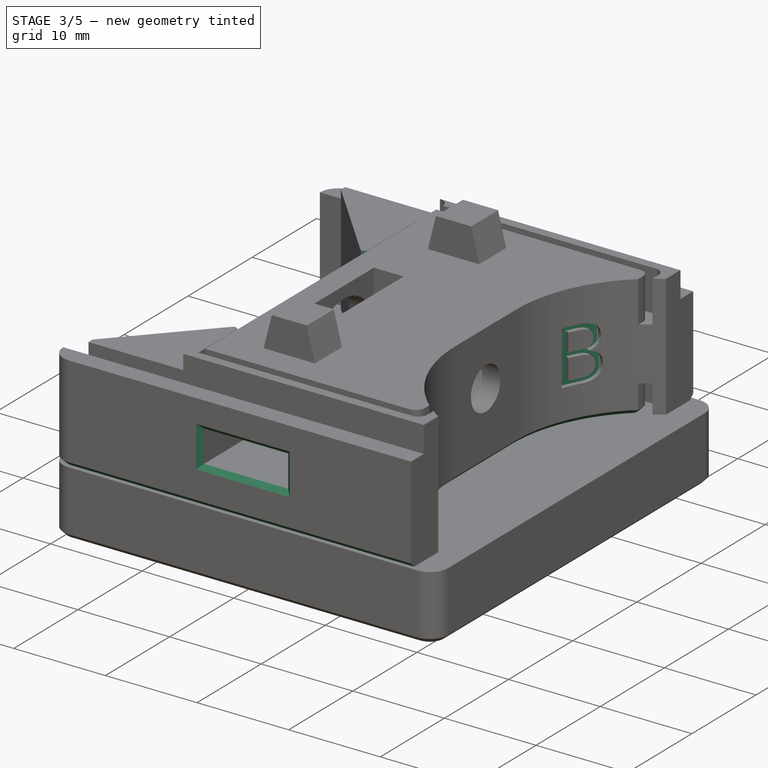
[diagram: stage 3 of 5 — iso view after this stage's code; geometry added in this stage tinted green]
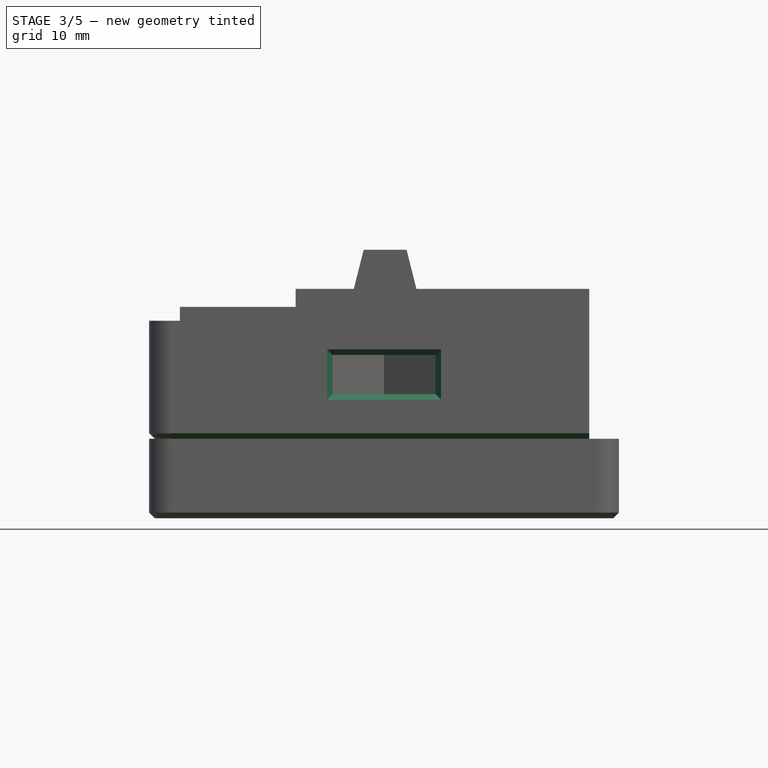
[diagram: stage 3 of 5 — front view after this stage's code; geometry added in this stage tinted green]
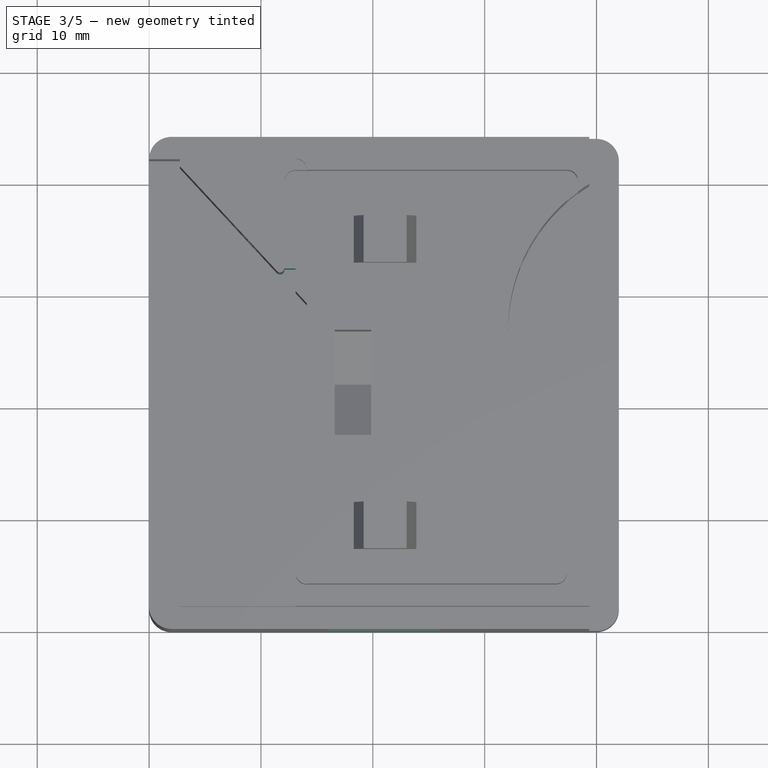
[diagram: stage 3 of 5 — top view after this stage's code; geometry added in this stage tinted green]
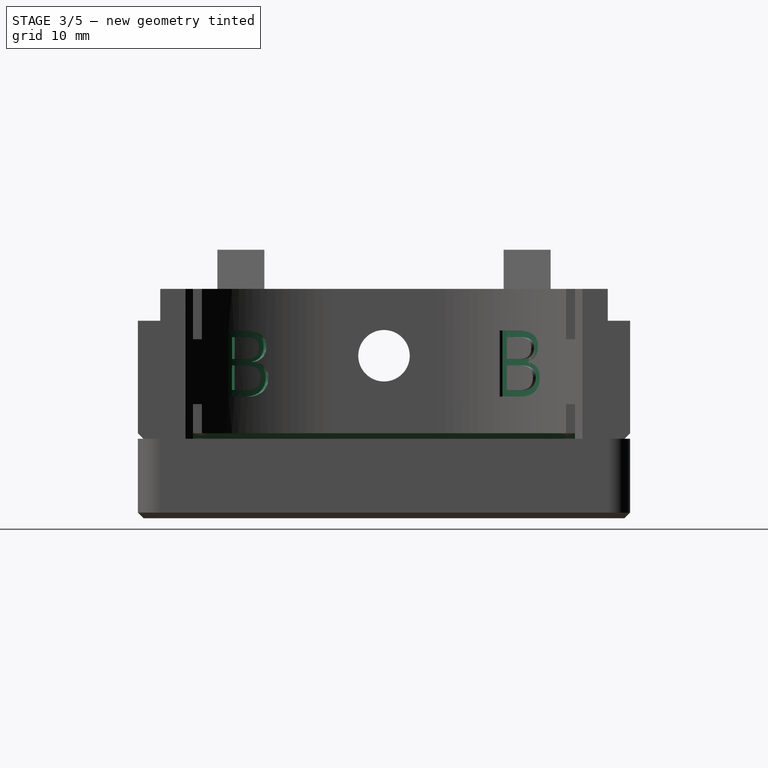
[diagram: stage 3 of 5 — right view after this stage's code; geometry added in this stage tinted green]
FEATURE [PartDesign::Pocket] Pocket025
  BaseFeature = -> Pocket024
  Direction = (-0.872261,-0.489039,-0.00102349)
  Length = 5
  Length2 = 5
  Profile = -> ShapeString001
  ReferenceAxis = -> ShapeString001 [N_Axis]
  Suppressed = false
  Type = 0
FEATURE [Sketcher::SketchObject] Sketch032
  ArcFitTolerance = 0
  AttachmentSupport = -> [Pocket025]
  ExternalGeometry = -> [Pocket025]
  FullyConstrained = true
  MakeInternals = false
  MapMode = 5
  Placement = pos=(0,0,20.5) rot=(0,0,1;0rad)
  sketch-geometry (26):
    g0: ArcOfCircle [constr] CenterX=47.3802 CenterY=17.25 CenterZ=0 NormalX=0 NormalY=0 NormalZ=1 AngleXU=0 Radius=15.2802 StartAngle=3.14159 EndAngle=3.99633
    g1: ArcOfCircle [constr] CenterX=47.3802 CenterY=26.75 CenterZ=0 NormalX=0 NormalY=0 NormalZ=1 AngleXU=0 Radius=15.2802 StartAngle=2.28686 EndAngle=3.14159
    g2: LineSegment [constr] StartX=32.1 StartY=26.75 StartZ=0 EndX=31.669 EndY=26.75 EndZ=0
    g3: LineSegment [constr] StartX=37.35 StartY=38.2773 StartZ=0 EndX=37.35 EndY=38.8903 EndZ=0
    g4: LineSegment [constr] StartX=32.1 StartY=17.25 StartZ=0 EndX=31.669 EndY=17.25 EndZ=0
    g5: LineSegment [constr] StartX=37.35 StartY=5.72267 StartZ=0 EndX=37.35 EndY=5.10974 EndZ=0
    g6: ArcOfCircle [constr] CenterX=46.9472 CenterY=17 CenterZ=0 NormalX=0 NormalY=0 NormalZ=1 AngleXU=0 Radius=15.2802 StartAngle=3.12523 EndAngle=4.03331
    g7: ArcOfCircle [constr] CenterX=46.9472 CenterY=27 CenterZ=0 NormalX=0 NormalY=0 NormalZ=1 AngleXU=0 Radius=15.2802 StartAngle=2.24988 EndAngle=3.15795
    g8: LineSegment [constr] StartX=33.7141 StartY=34.6401 StartZ=0 EndX=34.1472 EndY=34.3901 EndZ=0
    g9: LineSegment [constr] StartX=34.1472 StartY=9.60991 StartZ=0 EndX=33.7141 EndY=9.35991 EndZ=0
    g10: LineSegment [constr] StartX=34.1472 StartY=9.60991 StartZ=0 EndX=46.9472 EndY=17 EndZ=0
    g11: LineSegment [constr] StartX=34.1472 StartY=34.3901 StartZ=0 EndX=46.9472 EndY=27 EndZ=0
    g12: LineSegment [constr] StartX=32.1 StartY=26.75 StartZ=0 EndX=47.3802 EndY=26.75 EndZ=0
    g13: LineSegment [constr] StartX=46.9472 StartY=27 StartZ=0 EndX=47.3802 EndY=26.75 EndZ=0
    g14: LineSegment [constr] StartX=46.9472 StartY=17 StartZ=0 EndX=47.3802 EndY=17.25 EndZ=0
    g15: LineSegment [constr] StartX=47.3802 StartY=17.25 StartZ=0 EndX=31.669 EndY=17.25 EndZ=0
    g16: LineSegment StartX=31.669 StartY=17.25 StartZ=0 EndX=31.4704 EndY=5.10974 EndZ=0
    g17: LineSegment [constr] StartX=37.35 StartY=5.10974 StartZ=0 EndX=31.4704 EndY=5.10974 EndZ=0
    g18: LineSegment [constr] StartX=37.35 StartY=38.8903 StartZ=0 EndX=31.4704 EndY=38.8903 EndZ=0
    g19: LineSegment StartX=31.669 StartY=26.75 StartZ=0 EndX=31.4704 EndY=38.8903 EndZ=0
    g20: LineSegment StartX=31.4704 StartY=38.8903 StartZ=0 EndX=36.7704 EndY=38.8903 EndZ=0
    g21: LineSegment StartX=36.7704 StartY=38.8903 StartZ=0 EndX=36.7704 EndY=38.3981 EndZ=0
    g22: LineSegment StartX=36.7704 StartY=5.10974 StartZ=0 EndX=36.7704 EndY=5.60188 EndZ=0
    g23: LineSegment StartX=36.7704 StartY=5.10974 StartZ=0 EndX=31.4704 EndY=5.10974 EndZ=0
    g24: ArcOfCircle CenterX=46.9472 CenterY=27 CenterZ=0 NormalX=0 NormalY=0 NormalZ=1 AngleXU=0 Radius=15.2802 StartAngle=2.29964 EndAngle=3.15795
    g25: ArcOfCircle CenterX=46.9472 CenterY=17 CenterZ=0 NormalX=0 NormalY=0 NormalZ=1 AngleXU=0 Radius=15.2802 StartAngle=3.12523 EndAngle=3.98354
  constraints (72):
    c: Coincident(g0,g-4)
    c: Coincident(g0,g-4)
    c: Coincident(g1,g-3)
    c: Coincident(g1,g-3)
    c: Coincident(g2,g1)
    c: Horizontal(g2)
    c: Coincident(g3,g1)
    c: Vertical(g3)
    c: Coincident(g4,g0)
    c: Horizontal(g4)
    c: Coincident(g5,g0)
    c: Vertical(g5)
    c: Coincident(g6,g4)
    c: Coincident(g6,g5)
    c: Coincident(g7,g2)
    c: Coincident(g7,g3)
    c: PointOnObject(g8,g7)
    c: PointOnObject(g8,g1)
    c: Perpendicular(g1,g8)
    c: Perpendicular(g7,g8)
    c: Equal(g7,g-3)
    c: Equal(g-3,g1)
    c: Equal(g-4,g0)
    c: Equal(g6,g0)
    c: PointOnObject(g9,g0)
    c: PointOnObject(g9,g6)
    c: Perpendicular(g0,g9)
    c: Perpendicular(g6,g9)
    c: Distance(g8) = 0.5
    c: Equal(g8,g9)
    c: Coincident(g10,g9)
    c: Coincident(g10,g6)
    c: Coincident(g11,g8)
    c: Coincident(g11,g7)
    c: Coincident(g12,g1)
    c: Coincident(g12,g1)
    c: Coincident(g13,g7)
    c: Coincident(g13,g1)
    c: Coincident(g14,g6)
    c: Coincident(g14,g0)
    c: Coincident(g15,g0)
    c: Coincident(g15,g6)
    c: Angle(g13,g12) = 0.523599
    c: Angle(g15,g14) = 0.523599
    c: Coincident(g16,g6)
    c: Tangent(g16,g6)
    c: Coincident(g17,g6)
    c: Coincident(g17,g16)
    c: Horizontal(g17)
    c: Coincident(g18,g7)
    c: Horizontal(g18)
    c: Coincident(g19,g7)
    c: Coincident(g19,g18)
    c: Tangent(g19,g7)
    c: Coincident(g20,g18)
    c: PointOnObject(g20,g18)
    c: Coincident(g21,g20)
    c: PointOnObject(g21,g7)
    c: PointOnObject(g22,g17)
    c: PointOnObject(g22,g6)
    c: Coincident(g23,g22)
    c: Coincident(g23,g16)
    c: Vertical(g22)
    c: Vertical(g21)
    c: Coincident(g24,g2)
    c: Coincident(g24,g21)
    c: Coincident(g25,g4)
    c: Coincident(g25,g22)
    c: Equal(g22,g21)
    c: Distance(g20) = 5.3
    c: Equal(g6,g25)
    c: Equal(g24,g7)
FEATURE [PartDesign::Pad] Pad010
  BaseFeature = -> Pocket025
  Direction = (0,0,1)
  Length = 10
  Length2 = 10
  Profile = -> Sketch032
  ReferenceAxis = -> Sketch032 [N_Axis]
  Refine = true
  Suppressed = false
  Type = 3
  UpToFace = -> Pocket025 [Face31]
FEATURE [Sketcher::SketchObject] Sketch034
  ArcFitTolerance = 0
  AttachmentSupport = -> [Pad010]
  ExternalGeometry = -> [Pad010]
  FullyConstrained = true
  MakeInternals = false
  MapMode = 5
  Placement = pos=(0,0,16) rot=(0,0,1;0rad)
  sketch-geometry (4):
    g0: LineSegment StartX=12.1 StartY=32.2586 StartZ=0 EndX=13.1 EndY=32.2586 EndZ=0
    g1: LineSegment StartX=13.1 StartY=32.2586 StartZ=0 EndX=13.1 EndY=11.7414 EndZ=0
    g2: LineSegment StartX=13.1 StartY=11.7414 StartZ=0 EndX=12.1 EndY=11.7414 EndZ=0
    g3: LineSegment StartX=12.1 StartY=11.7414 StartZ=0 EndX=12.1 EndY=32.2586 EndZ=0
  constraints (12):
    c: Coincident(g0,g1)
    c: Coincident(g1,g2)
    c: Coincident(g2,g3)
    c: Coincident(g3,g0)
    c: Horizontal(g0)
    c: Horizontal(g2)
    c: Vertical(g1)
    c: Vertical(g3)
    c: Distance(g-5,g2) = 1
    c: PointOnObject(g2,g-5)
    c: PointOnObject(g1,g-4)
    c: Distance(g0,g-6) = 1
FEATURE [PartDesign::Pocket] Pocket026
  BaseFeature = -> Pad010
  Direction = (0,0,-1)
  Length = 20
  Length2 = 5
  Profile = -> Sketch034
  ReferenceAxis = -> Sketch034 [N_Axis]
  Refine = true
  Suppressed = false
  Type = 0
FEATURE [Sketcher::SketchObject] Sketch035
  ArcFitTolerance = 0
  AttachmentSupport = -> [Pocket026]
  ExternalGeometry = -> [Pocket026]
  FullyConstrained = true
  MakeInternals = false
  MapMode = 5
  Placement = pos=(0,0,18.9) rot=(0,0,1;0rad)
  sketch-geometry (6):
    g0: ArcOfCircle CenterX=11.7079 CenterY=32.2586 CenterZ=0 NormalX=0 NormalY=0 NormalZ=1 AngleXU=0 Radius=0.392057 StartAngle=3.88887 EndAngle=6.28319
    g1: ArcOfCircle CenterX=11.7079 CenterY=11.7414 CenterZ=0 NormalX=0 NormalY=0 NormalZ=1 AngleXU=0 Radius=0.392057 StartAngle=-3.55e-14 EndAngle=2.39431
    g2: LineSegment StartX=12.1 StartY=32.2586 StartZ=0 EndX=12.1 EndY=31.2586 EndZ=0
    g3: LineSegment StartX=12.1 StartY=31.2586 StartZ=0 EndX=11.4204 EndY=31.9921 EndZ=0
    g4: LineSegment StartX=12.1 StartY=11.7414 StartZ=0 EndX=12.1 EndY=12.7414 EndZ=0
    g5: LineSegment StartX=12.1 StartY=12.7414 StartZ=0 EndX=11.4204 EndY=12.0079 EndZ=0
  constraints (14):
    c: Coincident(g0,g-5)
    c: Tangent(g0,g-4) = -1.5708
    c: Coincident(g1,g-7)
    c: Tangent(g1,g-6) = -1.5708
    c: Perpendicular(g1,g-7)
    c: Perpendicular(g0,g-5)
    c: Coincident(g2,g0)
    c: Coincident(g2,g-4)
    c: Coincident(g3,g2)
    c: Coincident(g3,g0)
    c: Coincident(g4,g1)
    c: Coincident(g4,g-6)
    c: Coincident(g5,g4)
    c: Coincident(g5,g1)
FEATURE [PartDesign::Pocket] Pocket027
  BaseFeature = -> Pocket026
  Direction = (0,0,-1)
  Length = 30
  Length2 = 5
  Profile = -> Sketch035
  ReferenceAxis = -> Sketch035 [N_Axis]
  Refine = true
  Suppressed = false
  Type = 0
FEATURE [PartDesign::Chamfer] Chamfer005
  Angle = 45
  Base = -> Pocket027 [Edge402,Edge401,Edge403,Edge400,Edge320,Edge321,Edge319,Edge322]
  BaseFeature = -> Pocket027
  ChamferType = 0
  FlipDirection = false
  Size = 0.5
  Size2 = 1
  SupportTransform = false
  Suppressed = false
  UseAllEdges = false
FEATURE [PartDesign::Chamfer] Chamfer006
  Angle = 45
  Base = -> Chamfer005 [Edge363,Edge5]
  BaseFeature = -> Chamfer005
  ChamferType = 0
  FlipDirection = false
  Refine = true
  Size = 0.5
  Size2 = 1
  SupportTransform = false
  Suppressed = false
  UseAllEdges = false
FEATURE [PartDesign::Body] Body004  label="Plug"
  AllowCompound = false
  Group = -> [ShapeBinder007,Sketch040,Pad011,Sketch041,Pocket032]
  Origin = -> Origin005
  Tip = -> Pocket032
FEATURE [PartDesign::Chamfer] Chamfer007
  Angle = 45
  Base = -> Chamfer006 [Edge611,Edge80]
  BaseFeature = -> Chamfer006
  ChamferType = 0
  FlipDirection = false
  Size = 2
  Size2 = 1
  SupportTransform = false
  Suppressed = false
  UseAllEdges = false
FEATURE [Sketcher::SketchObject] Sketch042
  ArcFitTolerance = 0
  AttachmentSupport = -> [Chamfer007]
  ExternalGeometry = -> [Chamfer007]
  FullyConstrained = true
  MakeInternals = false
  MapMode = 5
  Placement = pos=(0,0,7.1) rot=(1,0,0;3.14159rad)
  sketch-geometry (2):
    g0: Circle CenterX=21 CenterY=-9.8 CenterZ=0 NormalX=0 NormalY=0 NormalZ=1 AngleXU=0 Radius=4.6
    g1: Circle CenterX=21 CenterY=-34.2 CenterZ=0 NormalX=0 NormalY=0 NormalZ=1 AngleXU=0 Radius=4.6
  constraints (4):
    c: Coincident(g0,g-4)
    c: Coincident(g1,g-3)
    c: Diameter(g0) = 9.2
    c: Equal(g0,g1)
FEATURE [PartDesign::Pocket] Pocket033
  BaseFeature = -> Chamfer007
  Direction = (0,0,1)
  Length = 3.5
  Length2 = 5
  Profile = -> Sketch042
  ReferenceAxis = -> Sketch042 [N_Axis]
  Suppressed = false
  Type = 0
FEATURE [PartDesign::Chamfer] Chamfer008
  Angle = 45
  Base = -> Pocket033 [Edge296,Edge49]
  BaseFeature = -> Pocket033
  ChamferType = 0
  FlipDirection = false
  Size = 2
  Size2 = 1
  SupportTransform = false
  Suppressed = false
  UseAllEdges = false
FEATURE [Sketcher::SketchObject] Sketch043
  ArcFitTolerance = 0
  AttachmentSupport = -> [Chamfer008]
  ExternalGeometry = -> [Chamfer008]
  FullyConstrained = true
  MakeInternals = false
  MapMode = 5
  Placement = pos=(0,0,7.1) rot=(1,0,0;3.14159rad)
  sketch-geometry (2):
    g0: Circle CenterX=21 CenterY=-34.2 CenterZ=0 NormalX=0 NormalY=0 NormalZ=1 AngleXU=0 Radius=2.5
    g1: Circle CenterX=21 CenterY=-9.8 CenterZ=0 NormalX=0 NormalY=0 NormalZ=1 AngleXU=0 Radius=2.5
  constraints (4):
    c: Coincident(g0,g-4)
    c: Coincident(g1,g-3)
    c: Equal(g-3,g1)
    c: Equal(g-4,g0)
FEATURE [PartDesign::Pocket] Pocket034
  BaseFeature = -> Chamfer008
  Direction = (0,0,1)
  Length = 12.4
  Length2 = 5
  Profile = -> Sketch043
  ReferenceAxis = -> Sketch043 [N_Axis]
  Suppressed = false
  Type = 0
FEATURE [PartDesign::Chamfer] Chamfer009
  Angle = 45
  Base = -> Pocket034 [Edge19,Edge24,Edge16,Edge27,Edge29,Edge25]
  BaseFeature = -> Pocket034
  ChamferType = 0
  FlipDirection = false
  Size = 0.5
  Size2 = 1
  SupportTransform = false
  Suppressed = false
  UseAllEdges = false
FEATURE [Sketcher::SketchObject] Sketch044
  ArcFitTolerance = 0
  AttachmentSupport = -> [Chamfer009]
  ExternalGeometry = -> [Chamfer009]
  FullyConstrained = true
  MakeInternals = false
  MapMode = 5
  Placement = pos=(0,0,20.5) rot=(0,0,1;0rad)
  sketch-geometry (8):
    g0: LineSegment StartX=16.6 StartY=17.3 StartZ=0 EndX=19.85 EndY=17.3 EndZ=0
    g1: LineSegment StartX=19.85 StartY=17.3 StartZ=0 EndX=19.85 EndY=17.2 EndZ=0
    g2: LineSegment StartX=19.85 StartY=17.2 StartZ=0 EndX=16.6 EndY=17.2 EndZ=0
    g3: LineSegment StartX=16.6 StartY=17.2 StartZ=0 EndX=16.6 EndY=17.3 EndZ=0
    g4: LineSegment StartX=18.3 StartY=32.7 StartZ=0 EndX=18.3 EndY=36.9 EndZ=0
    g5: LineSegment StartX=18.3 StartY=36.9 StartZ=0 EndX=18.3 EndY=32.8 EndZ=0
    g6: LineSegment StartX=18.3 StartY=32.8 StartZ=0 EndX=18.3 EndY=32.8 EndZ=0
    g7: LineSegment StartX=18.3 StartY=32.8 StartZ=0 EndX=18.3 EndY=32.7 EndZ=0
  constraints (20):
    c: Coincident(g0,g1)
    c: Coincident(g1,g2)
    c: Coincident(g2,g3)
    c: Coincident(g3,g0)
    c: Horizontal(g2)
    c: Vertical(g1)
    c: Vertical(g3)
    c: Coincident(g0,g-3)
    c: Coincident(g4,g5)
    c: Coincident(g5,g6)
    c: Coincident(g6,g7)
    c: Coincident(g7,g4)
    c: Horizontal(g6)
    c: Vertical(g5)
    c: Vertical(g7)
    c: Coincident(g4,g-4)
    c: Coincident(g4,g-4)
    c: Coincident(g0,g-3)
    c: Distance(g1) = 0.1
    c: Equal(g3,g7)
FEATURE [PartDesign::Pad] Pad012
  BaseFeature = -> Chamfer009
  Direction = (0,0,1)
  Length = 10
  Length2 = 10
  Profile = -> Sketch044
  ReferenceAxis = -> Sketch044 [N_Axis]
  Refine = true
  Suppressed = false
  Type = 3
  UpToFace = -> Chamfer001 [Face4]
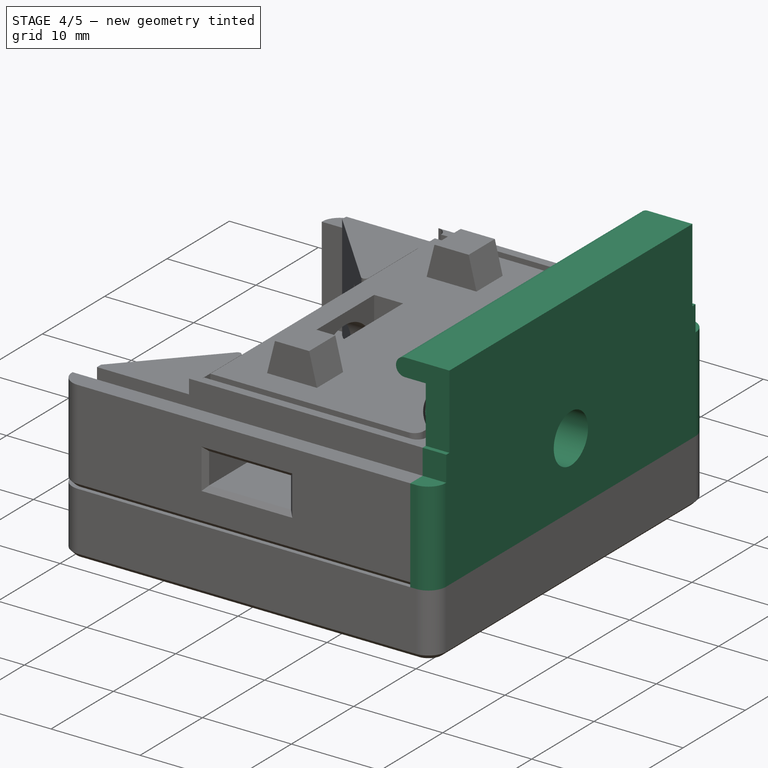
[diagram: stage 4 of 5 — iso view after this stage's code; geometry added in this stage tinted green]
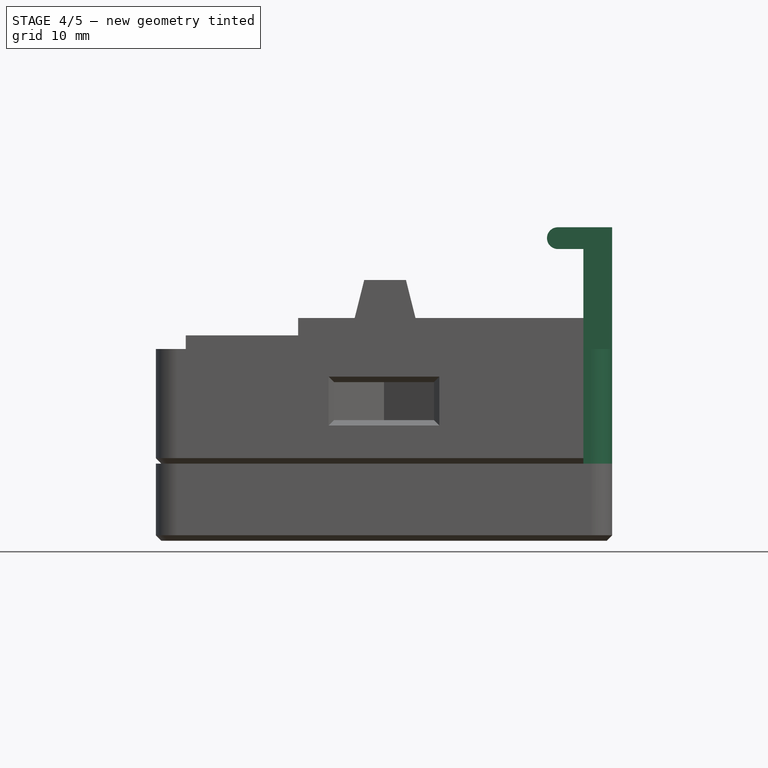
[diagram: stage 4 of 5 — front view after this stage's code; geometry added in this stage tinted green]
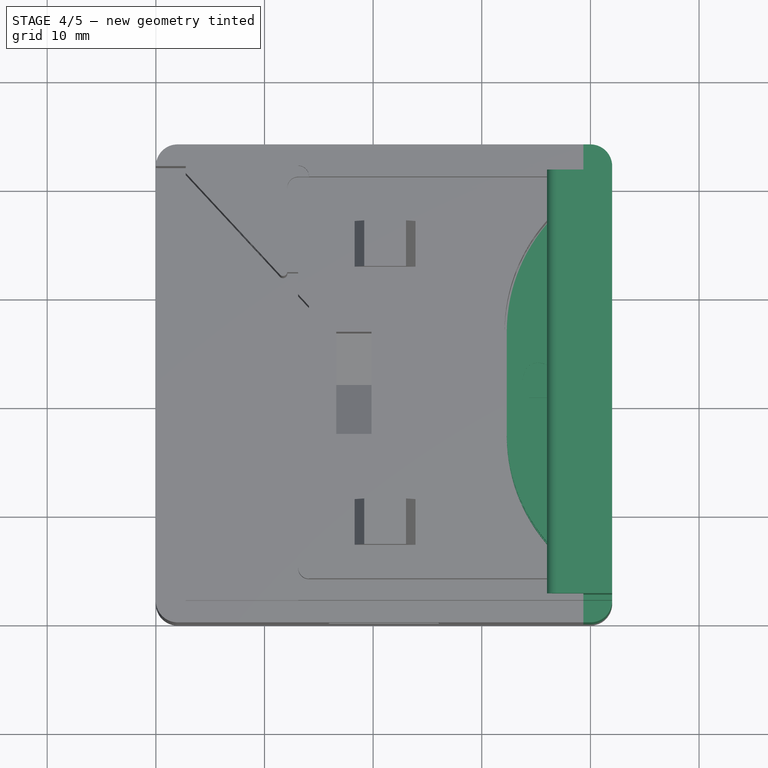
[diagram: stage 4 of 5 — top view after this stage's code; geometry added in this stage tinted green]
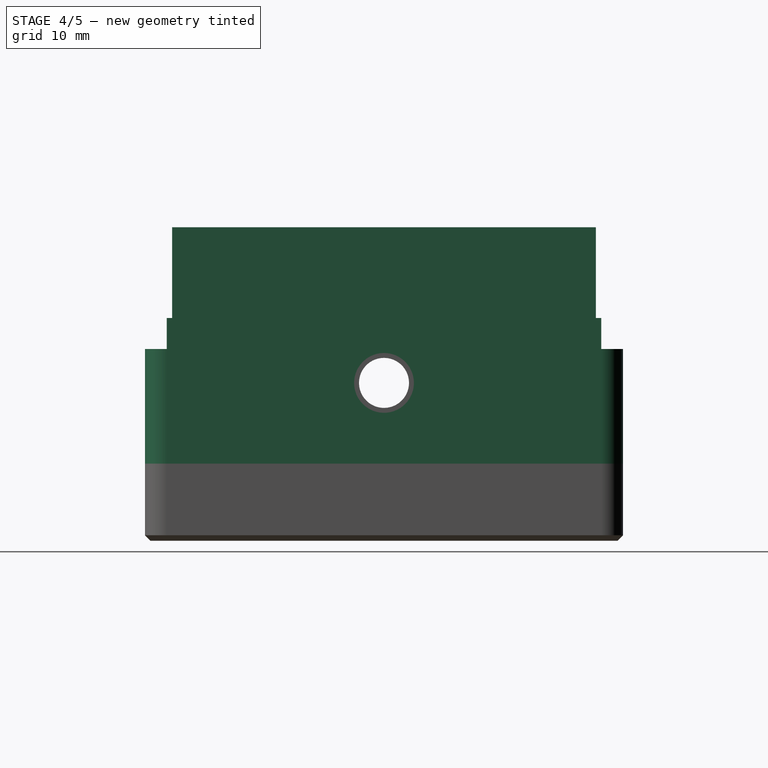
[diagram: stage 4 of 5 — right view after this stage's code; geometry added in this stage tinted green]
FEATURE [PartDesign::ShapeBinder] ShapeBinder004
  Support = -> [Chamfer001]
  TraceSupport = false
FEATURE [PartDesign::ShapeBinder] ShapeBinder005
  Support = -> [Pocket009]
  TraceSupport = false
FEATURE [Sketcher::SketchObject] Sketch021
  ArcFitTolerance = 0
  AttachmentSupport = -> [ShapeBinder004]
  ExternalGeometry = -> [ShapeBinder004,ShapeBinder005]
  FullyConstrained = true
  MakeInternals = false
  MapMode = 5
  Placement = pos=(0,0,7.1) rot=(0,0,1;0rad)
  sketch-geometry (10):
    g0: LineSegment StartX=39.35 StartY=4.25 StartZ=0 EndX=39.35 EndY=0 EndZ=0
    g1: LineSegment StartX=39.35 StartY=0 StartZ=0 EndX=40 EndY=6.9735e-12 EndZ=0
    g2: LineSegment StartX=39.35 StartY=39.75 StartZ=0 EndX=39.35 EndY=44 EndZ=0
    g3: LineSegment StartX=39.35 StartY=44 StartZ=0 EndX=40 EndY=44 EndZ=0
    g4: LineSegment StartX=42 StartY=42 StartZ=0 EndX=42 EndY=2 EndZ=0
    g5: LineSegment StartX=32.1 StartY=17.25 StartZ=0 EndX=32.1 EndY=26.75 EndZ=0
    g6: ArcOfCircle CenterX=47.3802 CenterY=26.75 CenterZ=0 NormalX=0 NormalY=0 NormalZ=1 AngleXU=0 Radius=15.2802 StartAngle=2.12413 EndAngle=3.14159
    g7: ArcOfCircle CenterX=47.3802 CenterY=17.25 CenterZ=0 NormalX=0 NormalY=0 NormalZ=1 AngleXU=0 Radius=15.2802 StartAngle=3.14159 EndAngle=4.15905
    g8: ArcOfCircle CenterX=40 CenterY=42 CenterZ=0 NormalX=0 NormalY=0 NormalZ=1 AngleXU=0 Radius=2 StartAngle=2.5e-15 EndAngle=1.5708
    g9: ArcOfCircle CenterX=40 CenterY=2 CenterZ=0 NormalX=0 NormalY=0 NormalZ=1 AngleXU=0 Radius=2 StartAngle=4.71239 EndAngle=6.28319
  constraints (26):
    c: Coincident(g0,g-8)
    c: PointOnObject(g0,g-1)
    c: Vertical(g0)
    c: Coincident(g1,g0)
    c: Coincident(g1,g-4)
    c: Coincident(g2,g-7)
    c: Vertical(g2)
    c: Coincident(g3,g2)
    c: Coincident(g3,g-3)
    c: Horizontal(g3)
    c: Coincident(g4,g-3)
    c: Coincident(g4,g-4)
    c: Coincident(g5,g-8)
    c: Coincident(g5,g-7)
    c: Coincident(g6,g5)
    c: Coincident(g6,g2)
    c: Coincident(g7,g5)
    c: Coincident(g7,g0)
    c: Coincident(g8,g3)
    c: Coincident(g8,g4)
    c: Coincident(g9,g4)
    c: Coincident(g9,g1)
    c: Equal(g-7,g6)
    c: Equal(g7,g-8)
    c: Equal(g-4,g9)
    c: Equal(g8,g-3)
FEATURE [PartDesign::Pad] Pad007
  Direction = (0,0,1)
  Length = 10
  Length2 = 10
  Profile = -> Sketch021
  ReferenceAxis = -> Sketch021 [N_Axis]
  Suppressed = false
  Type = 3
  UpToFace = -> ShapeBinder005 [Face1]
FEATURE [Sketcher::SketchObject] Sketch022
  ArcFitTolerance = 0
  AttachmentSupport = -> [Pad007]
  ExternalGeometry = -> [Pad007]
  FullyConstrained = true
  MakeInternals = false
  MapMode = 5
  Placement = pos=(42,-6.9161e-12,0) rot=(0.57735,0.57735,0.57735;2.0944rad)
  sketch-geometry (6):
    g0: LineSegment [constr] StartX=1.35601e-11 StartY=20.5 StartZ=0 EndX=2.5 EndY=20.5 EndZ=0
    g1: LineSegment [constr] StartX=44 StartY=20.5 StartZ=0 EndX=41.5 EndY=20.5 EndZ=0
    g2: LineSegment StartX=2.5 StartY=20.5 StartZ=0 EndX=41.5 EndY=20.5 EndZ=0
    g3: LineSegment StartX=2.5 StartY=20.5 StartZ=0 EndX=2.5 EndY=28.85 EndZ=0
    g4: LineSegment StartX=2.5 StartY=28.85 StartZ=0 EndX=41.5 EndY=28.85 EndZ=0
    g5: LineSegment StartX=41.5 StartY=28.85 StartZ=0 EndX=41.5 EndY=20.5 EndZ=0
  constraints (16):
    c: Coincident(g0,g-3)
    c: Horizontal(g0)
    c: Coincident(g1,g-4)
    c: Horizontal(g1)
    c: Coincident(g2,g0)
    c: Coincident(g2,g1)
    c: Equal(g0,g1)
    c: Distance(g1) = 2.5
    c: Coincident(g3,g2)
    c: Vertical(g3)
    c: Coincident(g4,g3)
    c: Horizontal(g4)
    c: Coincident(g5,g4)
    c: Coincident(g5,g2)
    c: Vertical(g5)
    c: Distance(g5) = 8.35
FEATURE [PartDesign::Pad] Pad008
  BaseFeature = -> Pad007
  Direction = (1,-1.648e-13,0)
  Length = 2.65
  Length2 = 10
  Profile = -> Sketch022
  ReferenceAxis = -> Sketch022 [N_Axis]
  Refine = true
  Reversed = true
  Suppressed = false
  Type = 0
FEATURE [Sketcher::SketchObject] Sketch023
  ArcFitTolerance = 0
  AttachmentSupport = -> [Pad008]
  ExternalGeometry = -> [Pad008]
  FullyConstrained = true
  MakeInternals = false
  MapMode = 5
  Placement = pos=(4.119e-13,2.5,0) rot=(1,0,0;1.5708rad)
  sketch-geometry (4):
    g0: LineSegment StartX=39.35 StartY=28.85 StartZ=0 EndX=37 EndY=28.85 EndZ=0
    g1: LineSegment StartX=39.35 StartY=26.85 StartZ=0 EndX=37 EndY=26.85 EndZ=0
    g2: ArcOfCircle CenterX=37 CenterY=27.85 CenterZ=0 NormalX=0 NormalY=0 NormalZ=1 AngleXU=0 Radius=1 StartAngle=1.5708 EndAngle=4.71239
    g3: LineSegment StartX=39.35 StartY=28.85 StartZ=0 EndX=39.35 EndY=26.85 EndZ=0
  constraints (10):
    c: Coincident(g0,g-3)
    c: Horizontal(g0)
    c: PointOnObject(g1,g-3)
    c: Horizontal(g1)
    c: Tangent(g2,g0) = -1.5708
    c: Tangent(g2,g1) = 1.5708
    c: Radius(g2) = 1
    c: Distance(g1) = 2.35
    c: Coincident(g3,g0)
    c: Coincident(g3,g1)
FEATURE [PartDesign::Pad] Pad009
  BaseFeature = -> Pad008
  Direction = (-1.648e-13,-1,2e-16)
  Length = 10
  Length2 = 10
  Profile = -> Sketch023
  ReferenceAxis = -> Sketch023 [N_Axis]
  Refine = true
  Suppressed = false
  Type = 3
  UpToFace = -> Pad008 [Face12]
FEATURE [Sketcher::SketchObject] Sketch024
  ArcFitTolerance = 0
  AttachmentSupport = -> [Pad009]
  ExternalGeometry = -> [Pad009]
  FullyConstrained = true
  MakeInternals = false
  MapMode = 5
  Placement = pos=(0,0,20.5) rot=(0,0,1;0rad)
  sketch-geometry (6):
    g0: ArcOfCircle CenterX=21.4112 CenterY=2.76729 CenterZ=0 NormalX=0 NormalY=0 NormalZ=1 AngleXU=0 Radius=18 StartAngle=0.0824663 EndAngle=0.934993
    g1: ArcOfCircle CenterX=21.4112 CenterY=41.2327 CenterZ=0 NormalX=0 NormalY=0 NormalZ=1 AngleXU=0 Radius=18 StartAngle=5.34819 EndAngle=6.20072
    g2: LineSegment StartX=32.1 StartY=17.25 StartZ=0 EndX=32.1 EndY=4.25 EndZ=0
    g3: LineSegment StartX=39.35 StartY=4.25 StartZ=0 EndX=32.1 EndY=4.25 EndZ=0
    g4: LineSegment StartX=32.1 StartY=26.75 StartZ=0 EndX=32.1 EndY=39.75 EndZ=0
    g5: LineSegment StartX=39.35 StartY=39.75 StartZ=0 EndX=32.1 EndY=39.75 EndZ=0
  constraints (16):
    c: Radius(g1) = 18
    c: Equal(g1,g0)
    c: Coincident(g2,g0)
    c: Vertical(g2)
    c: Coincident(g3,g0)
    c: Horizontal(g3)
    c: Coincident(g2,g3)
    c: Coincident(g4,g1)
    c: Vertical(g4)
    c: Coincident(g5,g1)
    c: Coincident(g5,g4)
    c: Horizontal(g5)
    c: Coincident(g1,g-3)
    c: Coincident(g-4,g0)
    c: Coincident(g-4,g0)
    c: Coincident(g-3,g1)
FEATURE [PartDesign::Pocket] Pocket014
  BaseFeature = -> Pad009
  Direction = (0,0,-1)
  Length = 11.4
  Length2 = -2
  Profile = -> Sketch024
  ReferenceAxis = -> Sketch024 [N_Axis]
  Refine = true
  Suppressed = false
  Type = 4
FEATURE [PartDesign::ShapeBinder] ShapeBinder006
  Support = -> [Pocket009]
  TraceSupport = false
FEATURE [Sketcher::SketchObject] Sketch025
  ArcFitTolerance = 0
  AttachmentSupport = -> [Pocket014]
  ExternalGeometry = -> [ShapeBinder006]
  FullyConstrained = true
  MakeInternals = false
  MapMode = 5
  Placement = pos=(32.1,-3.27961e-10,0) rot=(-0.57735,0.57735,0.57735;4.18879rad)
  sketch-geometry (1):
    g0: Circle CenterX=-22 CenterY=14.5271 CenterZ=0 NormalX=0 NormalY=0 NormalZ=1 AngleXU=0 Radius=2.75
  constraints (2):
    c: Coincident(g0,g-3)
    c: Diameter(g0) = 5.5
FEATURE [PartDesign::Pocket] Pocket015
  BaseFeature = -> Pocket014
  Direction = (1,-1.02168e-11,-1e-16)
  Length = 20
  Length2 = 5
  Profile = -> Sketch025
  ReferenceAxis = -> Sketch025 [N_Axis]
  Suppressed = false
  Type = 0
FEATURE [Sketcher::SketchObject] Sketch029
  ArcFitTolerance = 0
  AttachmentSupport = -> [Pocket015]
  ExternalGeometry = -> [Pocket015]
  FullyConstrained = true
  MakeInternals = false
  MapMode = 5
  Placement = pos=(0,0,7.1) rot=(1,0,0;3.14159rad)
  sketch-geometry (10):
    g0: LineSegment [constr] StartX=32.1 StartY=-26.75 StartZ=0 EndX=32.3 EndY=-26.75 EndZ=0
    g1: LineSegment StartX=39.35 StartY=-39.75 StartZ=0 EndX=39.35 EndY=-39.55 EndZ=0
    g2: LineSegment [constr] StartX=32.1 StartY=-17.25 StartZ=0 EndX=32.3 EndY=-17.25 EndZ=0
    g3: LineSegment StartX=39.35 StartY=-4.25 StartZ=0 EndX=39.35 EndY=-4.45 EndZ=0
    g4: ArcOfCircle CenterX=47.58 CenterY=-26.6756 CenterZ=0 NormalX=0 NormalY=0 NormalZ=1 AngleXU=0 Radius=15.2802 StartAngle=3.14646 EndAngle=4.14361
    g5: ArcOfCircle CenterX=47.58 CenterY=-17.3244 CenterZ=0 NormalX=0 NormalY=0 NormalZ=1 AngleXU=0 Radius=15.2802 StartAngle=2.13958 EndAngle=3.13672
    g6: LineSegment StartX=32.3 StartY=-26.75 StartZ=0 EndX=32.3 EndY=-17.25 EndZ=0
    g7: LineSegment StartX=39.35 StartY=-39.75 StartZ=0 EndX=31.35 EndY=-39.75 EndZ=0
    g8: LineSegment StartX=31.35 StartY=-39.75 StartZ=0 EndX=31.35 EndY=-4.25 EndZ=0
    g9: LineSegment StartX=31.35 StartY=-4.25 StartZ=0 EndX=39.35 EndY=-4.25 EndZ=0
  constraints (28):
    c: Coincident(g0,g-3)
    c: Horizontal(g0)
    c: Coincident(g1,g-3)
    c: Vertical(g1)
    c: Coincident(g2,g-4)
    c: Horizontal(g2)
    c: Coincident(g3,g-4)
    c: Vertical(g3)
    c: Distance(g3) = 0.2
    c: Equal(g3,g2)
    c: Equal(g0,g2)
    c: Equal(g0,g1)
    c: Coincident(g4,g0)
    c: Coincident(g4,g1)
    c: Coincident(g5,g2)
    c: Coincident(g5,g3)
    c: Equal(g-4,g5)
    c: Equal(g-3,g4)
    c: Coincident(g6,g4)
    c: Coincident(g6,g5)
    c: Coincident(g7,g1)
    c: Horizontal(g7)
    c: Coincident(g8,g7)
    c: Vertical(g8)
    c: Coincident(g9,g8)
    c: Horizontal(g9)
    c: Coincident(g9,g3)
    c: Distance(g9) = 8
FEATURE [PartDesign::Pocket] Pocket019
  BaseFeature = -> Pocket015
  Direction = (0,0,1)
  Length = 14
  Length2 = 5
  Profile = -> Sketch029
  ReferenceAxis = -> Sketch029 [N_Axis]
  Refine = true
  Suppressed = false
  Type = 0
FEATURE [Sketcher::SketchObject] Sketch030
  ArcFitTolerance = 0
  AttachmentSupport = -> [Pocket019]
  ExternalGeometry = -> [Pocket019]
  FullyConstrained = true
  MakeInternals = false
  MapMode = 5
  Placement = pos=(32.3,-3.30004e-10,0) rot=(-0.57735,0.57735,0.57735;4.18879rad)
  sketch-geometry (4):
    g0: LineSegment StartX=-39.538 StartY=18.5 StartZ=0 EndX=-4.46203 EndY=18.5 EndZ=0
    g1: LineSegment StartX=-4.46203 StartY=18.5 StartZ=0 EndX=-4.46203 EndY=9.1 EndZ=0
    g2: LineSegment StartX=-4.46203 StartY=9.1 StartZ=0 EndX=-39.538 EndY=9.1 EndZ=0
    g3: LineSegment StartX=-39.538 StartY=9.1 StartZ=0 EndX=-39.538 EndY=18.5 EndZ=0
  constraints (10):
    c: Coincident(g0,g1)
    c: Coincident(g1,g2)
    c: Coincident(g2,g3)
    c: Coincident(g3,g0)
    c: Horizontal(g0)
    c: Horizontal(g2)
    c: Vertical(g1)
    c: Vertical(g3)
    c: Coincident(g0,g-4)
    c: Coincident(g1,g-3)
FEATURE [PartDesign::Pocket] Pocket020
  BaseFeature = -> Pocket019
  Direction = (1,-1.02168e-11,-1e-16)
  Length = 1
  Length2 = 5
  Profile = -> Sketch030
  ReferenceAxis = -> Sketch030 [N_Axis]
  Refine = true
  Suppressed = false
  Type = 0
FEATURE [PartDesign::Body] Body002  label="A Clamp"
  AllowCompound = false
  Group = -> [ShapeBinder001,ShapeBinder002,Sketch012,Pad004,Sketch015,Pad005,Sketch016,Pad006,Sketch017,Pocket010,Sketch018,Pocket011,ShapeBinder003,Sketch019,Pocket012,Sketch020,Pocket013,Chamfer002,Chamfer004,Sketch026,Pocket016,ShapeString004,Pocket028,Sketch038,Pocket029]
  Origin = -> Origin003
  Tip = -> Pocket029
FEATURE [PartDesign::Pocket] Pocket030
  BaseFeature = -> Pocket020
  Direction = (0,0,-1)
  Length = 0
  Length2 = 5
  Offset = 0.5
  Profile = -> ShapeString005
  ReferenceAxis = -> ShapeString005 [N_Axis]
  Refine = true
  Suppressed = false
  Type = 3
  UpToFace = -> Pocket020 [Face13]
FEATURE [Sketcher::SketchObject] Sketch039
  ArcFitTolerance = 0
  AttachmentSupport = -> [Pocket030]
  ExternalGeometry = -> [Pocket030]
  FullyConstrained = true
  MakeInternals = false
  MapMode = 5
  Placement = pos=(42,-6.9167e-12,0) rot=(0.57735,0.57735,0.57735;2.0944rad)
  sketch-geometry (8):
    g0: LineSegment StartX=44 StartY=20.5 StartZ=0 EndX=42 EndY=20.5 EndZ=0
    g1: LineSegment StartX=42 StartY=20.5 StartZ=0 EndX=42 EndY=17.65 EndZ=0
    g2: LineSegment StartX=42 StartY=17.65 StartZ=0 EndX=44 EndY=17.65 EndZ=0
    g3: LineSegment StartX=44 StartY=17.65 StartZ=0 EndX=44 EndY=20.5 EndZ=0
    g4: LineSegment StartX=1.35634e-11 StartY=20.5 StartZ=0 EndX=2 EndY=20.5 EndZ=0
    g5: LineSegment StartX=2 StartY=20.5 StartZ=0 EndX=2 EndY=17.65 EndZ=0
    g6: LineSegment StartX=2 StartY=17.65 StartZ=0 EndX=1.35634e-11 EndY=17.65 EndZ=0
    g7: LineSegment StartX=1.35634e-11 StartY=17.65 StartZ=0 EndX=1.35634e-11 EndY=20.5 EndZ=0
  constraints (22):
    c: Coincident(g0,g1)
    c: Coincident(g1,g2)
    c: Coincident(g2,g3)
    c: Coincident(g3,g0)
    c: Horizontal(g0)
    c: Horizontal(g2)
    c: Vertical(g1)
    c: Vertical(g3)
    c: Coincident(g0,g-4)
    c: Coincident(g4,g5)
    c: Coincident(g5,g6)
    c: Coincident(g6,g7)
    c: Coincident(g7,g4)
    c: Horizontal(g4)
    c: Horizontal(g6)
    c: Vertical(g5)
    c: Vertical(g7)
    c: Coincident(g4,g-3)
    c: Distance(g4) = 2
    c: Distance(g7) = 2.85
    c: Equal(g4,g0)
    c: Equal(g3,g7)
FEATURE [PartDesign::Pocket] Pocket031
  BaseFeature = -> Pocket030
  Direction = (-1,1.648e-13,0)
  Length = 5
  Length2 = 5
  Profile = -> Sketch039
  ReferenceAxis = -> Sketch039 [N_Axis]
  Refine = true
  Suppressed = false
  Type = 0
FEATURE [PartDesign::Body] Body003  label="B Clamp"
  AllowCompound = false
  Group = -> [ShapeBinder004,ShapeBinder005,Sketch021,Pad007,Sketch022,Pad008,Sketch023,Pad009,Sketch024,Pocket014,ShapeBinder006,Sketch025,Pocket015,Sketch029,Pocket019,Sketch030,Pocket020,ShapeString005,Pocket030,Sketch039,Pocket031]
  Origin = -> Origin004
  Tip = -> Pocket031
FEATURE [PartDesign::ShapeBinder] ShapeBinder007
  Support = -> [Pocket027]
  TraceSupport = false
FEATURE [Sketcher::SketchObject] Sketch040
  ArcFitTolerance = 0
  AttachmentSupport = -> [ShapeBinder007]
  ExternalGeometry = -> [ShapeBinder007]
  FullyConstrained = true
  MakeInternals = false
  MapMode = 5
  Placement = pos=(30.1,0,0) rot=(0.57735,-0.57735,-0.57735;2.0944rad)
  sketch-geometry (3):
    g0: Circle CenterX=-22 CenterY=14.5271 CenterZ=0 NormalX=0 NormalY=0 NormalZ=1 AngleXU=0 Radius=4.6
    g1: LineSegment [constr] StartX=-22 StartY=14.5271 StartZ=0 EndX=-22 EndY=19.1271 EndZ=0
    g2: LineSegment [constr] StartX=-22 StartY=19.1271 StartZ=0 EndX=-22 EndY=19.2271 EndZ=0
  constraints (8):
    c: Coincident(g0,g-3)
    c: Coincident(g1,g0)
    c: PointOnObject(g1,g0)
    c: Vertical(g1)
    c: Coincident(g2,g1)
    c: PointOnObject(g2,g-4)
    c: Vertical(g2)
    c: Distance(g2) = 0.1
FEATURE [PartDesign::Pad] Pad011
  Direction = (-1,0,0)
  Length = 10.25
  Length2 = -3.25
  Profile = -> Sketch040
  ReferenceAxis = -> Sketch040 [N_Axis]
  Suppressed = false
  Type = 4
FEATURE [Sketcher::SketchObject] Sketch041
  ArcFitTolerance = 0
  AttachmentSupport = -> [Pad011]
  ExternalGeometry = -> [ShapeBinder007]
  FullyConstrained = true
  MakeInternals = false
  MapMode = 5
  Placement = pos=(19.85,0,0) rot=(0.57735,-0.57735,-0.57735;2.0944rad)
  sketch-geometry (1):
    g0: Circle CenterX=-22 CenterY=14.5271 CenterZ=0 NormalX=0 NormalY=0 NormalZ=1 AngleXU=0 Radius=2.3
  constraints (2):
    c: Coincident(g0,g-3)
    c: Equal(g-3,g0)
FEATURE [PartDesign::Pocket] Pocket032
  BaseFeature = -> Pad011
  Direction = (1,0,0)
  Length = 0
  Length2 = 5
  Offset = 2
  Profile = -> Sketch041
  ReferenceAxis = -> Sketch041 [N_Axis]
  Reversed = true
  Suppressed = false
  Type = 3
  UpToFace = -> Pad011 [Face2]
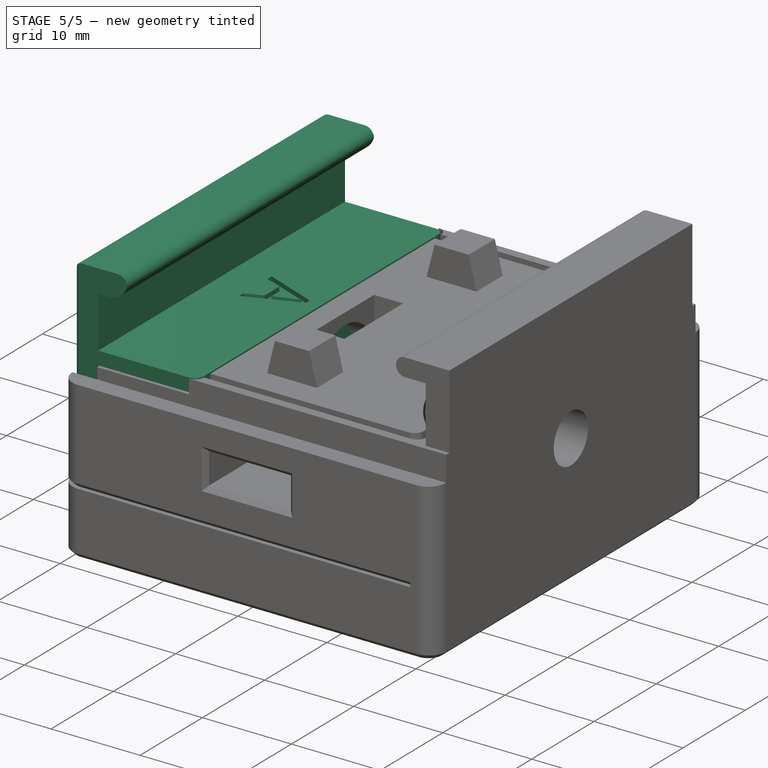
[diagram: stage 5 of 5 — iso view after this stage's code; geometry added in this stage tinted green]
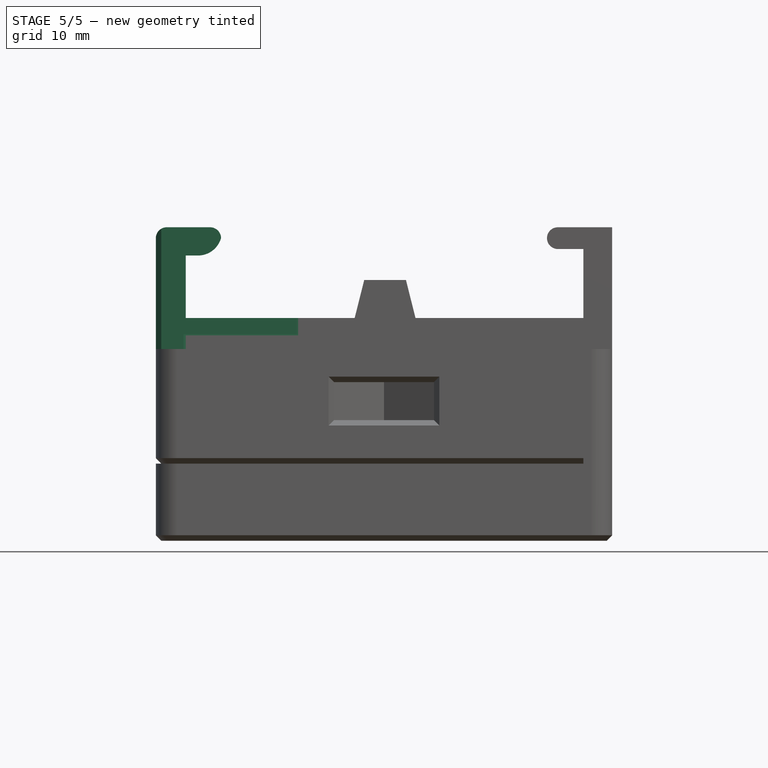
[diagram: stage 5 of 5 — front view after this stage's code; geometry added in this stage tinted green]
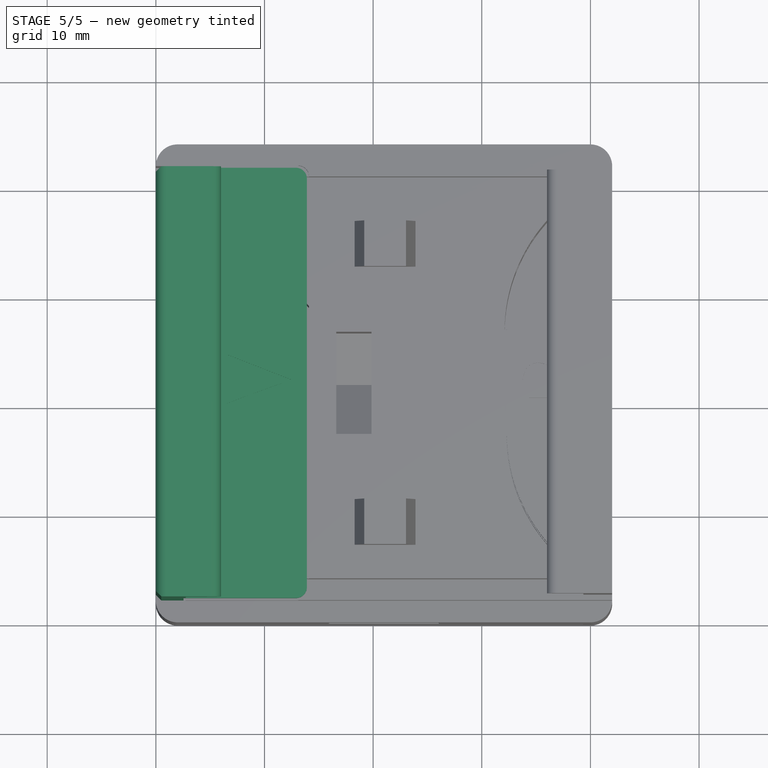
[diagram: stage 5 of 5 — top view after this stage's code; geometry added in this stage tinted green]
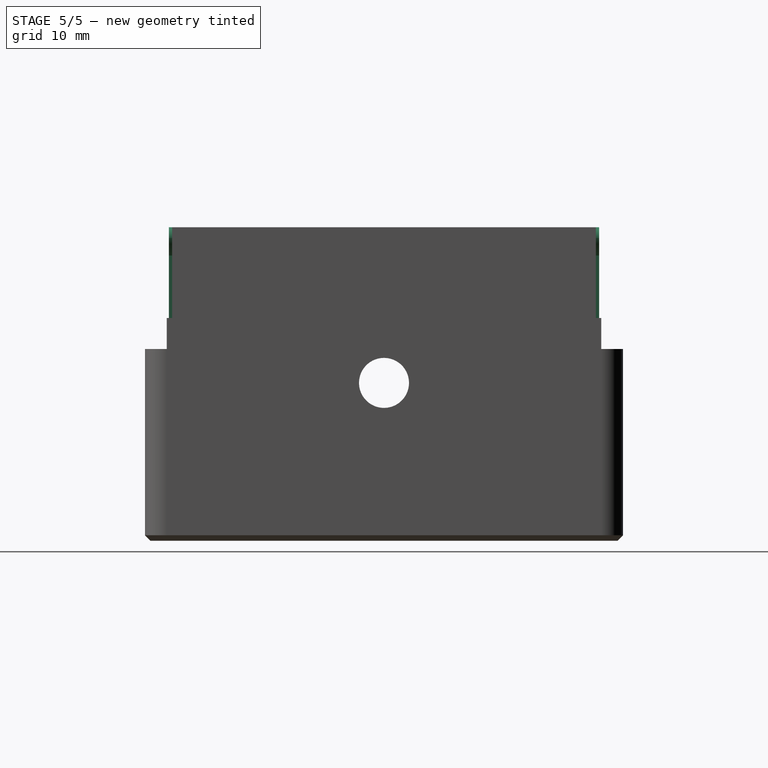
[diagram: stage 5 of 5 — right view after this stage's code; geometry added in this stage tinted green]
FEATURE [PartDesign::ShapeBinder] ShapeBinder001
  Support = -> [Pocket007]
  TraceSupport = false
FEATURE [PartDesign::ShapeBinder] ShapeBinder002
  Support = -> [Chamfer001]
  TraceSupport = false
FEATURE [Sketcher::SketchObject] Sketch012
  ArcFitTolerance = 0
  AttachmentSupport = -> [ShapeBinder002]
  ExternalGeometry = -> [ShapeBinder001]
  FullyConstrained = true
  MakeInternals = false
  MapMode = 5
  Placement = pos=(0,0,7.1) rot=(0,0,1;0rad)
  sketch-geometry (8):
    g0: LineSegment StartX=0 StartY=42 StartZ=0 EndX=0 EndY=2 EndZ=0
    g1: LineSegment StartX=0 StartY=2 StartZ=0 EndX=2.75 EndY=2 EndZ=0
    g2: LineSegment StartX=2.75 StartY=2 StartZ=0 EndX=2.75 EndY=2.65 EndZ=0
    g3: LineSegment StartX=2.75 StartY=2.65 StartZ=0 EndX=14.1 EndY=14.9 EndZ=0
    g4: LineSegment StartX=14.1 StartY=14.9 StartZ=0 EndX=14.1 EndY=29.1 EndZ=0
    g5: LineSegment StartX=14.1 StartY=29.1 StartZ=0 EndX=2.75 EndY=41.35 EndZ=0
    g6: LineSegment StartX=2.75 StartY=41.35 StartZ=0 EndX=2.75 EndY=42 EndZ=0
    g7: LineSegment StartX=2.75 StartY=42 StartZ=0 EndX=0 EndY=42 EndZ=0
  constraints (16):
    c: Coincident(g0,g-3)
    c: Coincident(g0,g-9)
    c: Coincident(g1,g0)
    c: Coincident(g1,g-9)
    c: Coincident(g2,g1)
    c: Coincident(g2,g-8)
    c: Coincident(g3,g2)
    c: Coincident(g3,g-7)
    c: Coincident(g4,g3)
    c: Coincident(g4,g-6)
    c: Coincident(g5,g4)
    c: Coincident(g5,g-5)
    c: Coincident(g6,g5)
    c: Coincident(g6,g-4)
    c: Coincident(g7,g6)
    c: Coincident(g7,g0)
FEATURE [PartDesign::Pad] Pad004
  Direction = (0,0,1)
  Length = 10
  Length2 = 10
  Profile = -> Sketch012
  ReferenceAxis = -> Sketch012 [N_Axis]
  Suppressed = false
  Type = 3
  UpToFace = -> ShapeBinder001 [Face1]
FEATURE [Sketcher::SketchObject] Sketch015
  ArcFitTolerance = 0
  AttachmentSupport = -> [Pad004]
  ExternalGeometry = -> [Pad004]
  FullyConstrained = true
  MakeInternals = false
  MapMode = 5
  Placement = pos=(0,0,20.5) rot=(0,0,1;0rad)
  sketch-geometry (10):
    g0: LineSegment [constr] StartX=2.75 StartY=2 StartZ=0 EndX=14.1 EndY=2 EndZ=0
    g1: LineSegment [constr] StartX=14.1 StartY=2 StartZ=0 EndX=14.1 EndY=42 EndZ=0
    g2: LineSegment [constr] StartX=14.1 StartY=42 StartZ=0 EndX=2.75 EndY=42 EndZ=0
    g3: LineSegment [constr] StartX=2.75 StartY=42 StartZ=0 EndX=2.75 EndY=2 EndZ=0
    g4: LineSegment StartX=2.75 StartY=42 StartZ=0 EndX=13.1 EndY=42 EndZ=0
    g5: LineSegment StartX=14.1 StartY=41 StartZ=0 EndX=14.1 EndY=3 EndZ=0
    g6: LineSegment StartX=13.1 StartY=2 StartZ=0 EndX=2.75 EndY=2 EndZ=0
    g7: LineSegment StartX=2.75 StartY=2 StartZ=0 EndX=2.75 EndY=42 EndZ=0
    g8: ArcOfCircle CenterX=13.1 CenterY=3 CenterZ=0 NormalX=0 NormalY=0 NormalZ=1 AngleXU=0 Radius=1 StartAngle=4.71239 EndAngle=6.28319
    g9: ArcOfCircle CenterX=13.1 CenterY=41 CenterZ=0 NormalX=0 NormalY=0 NormalZ=1 AngleXU=0 Radius=1 StartAngle=6.6e-15 EndAngle=1.5708
  constraints (24):
    c: Coincident(g0,g1)
    c: Coincident(g1,g2)
    c: Coincident(g2,g3)
    c: Coincident(g3,g0)
    c: Horizontal(g0)
    c: Horizontal(g2)
    c: Vertical(g1)
    c: Coincident(g0,g-4)
    c: Coincident(g-3,g2)
    c: PointOnObject(g-5,g1)
    c: Coincident(g6,g7)
    c: Coincident(g7,g4)
    c: Horizontal(g4)
    c: Horizontal(g6)
    c: Vertical(g5)
    c: Coincident(g2,g4)
    c: Coincident(g6,g0)
    c: Tangent(g6,g8) = 1.5708
    c: Tangent(g5,g8) = 1.5708
    c: Tangent(g5,g9) = 1.5708
    c: Tangent(g4,g9) = 1.5708
    c: Radius(g9) = 1
    c: Equal(g9,g8)
    c: PointOnObject(g5,g1)
FEATURE [PartDesign::Pad] Pad005
  BaseFeature = -> Pad004
  Direction = (0,0,1)
  Length = 1.5
  Length2 = 10
  Profile = -> Sketch015
  ReferenceAxis = -> Sketch015 [N_Axis]
  Refine = true
  Reversed = true
  Suppressed = false
  Type = 0
FEATURE [Sketcher::SketchObject] Sketch016
  ArcFitTolerance = 0
  AttachmentSupport = -> [Pad005]
  ExternalGeometry = -> [Pad005]
  FullyConstrained = true
  MakeInternals = false
  MapMode = 5
  Placement = pos=(0,2,0) rot=(1,0,0;1.5708rad)
  sketch-geometry (12):
    g0: LineSegment StartX=0 StartY=20.5 StartZ=0 EndX=2.75 EndY=20.5 EndZ=0
    g1: LineSegment StartX=2.75 StartY=20.5 StartZ=0 EndX=2.75 EndY=26.25 EndZ=0
    g2: LineSegment [constr] StartX=0 StartY=28.85 StartZ=0 EndX=0 EndY=20.5 EndZ=0
    g3: LineSegment StartX=0 StartY=20.5 StartZ=0 EndX=0 EndY=27.85 EndZ=0
    g4: LineSegment StartX=1 StartY=28.85 StartZ=0 EndX=5 EndY=28.85 EndZ=0
    g5: ArcOfCircle CenterX=1 CenterY=27.85 CenterZ=0 NormalX=0 NormalY=0 NormalZ=1 AngleXU=0 Radius=1 StartAngle=1.5708 EndAngle=3.14159
    g6: LineSegment [constr] StartX=0 StartY=28.85 StartZ=0 EndX=1 EndY=28.85 EndZ=0
    g7: LineSegment StartX=2.75 StartY=26.25 StartZ=0 EndX=3.875 EndY=26.25 EndZ=0
    g8: ArcOfCircle CenterX=5 CenterY=27.85 CenterZ=0 NormalX=0 NormalY=0 NormalZ=1 AngleXU=0 Radius=1 StartAngle=1e-16 EndAngle=1.5708
    g9: ArcOfCircle CenterX=3.875 CenterY=28.4611 CenterZ=0 NormalX=0 NormalY=0 NormalZ=1 AngleXU=0 Radius=2.21113 StartAngle=4.71239 EndAngle=6.00315
    g10: LineSegment [constr] StartX=5 StartY=28.85 StartZ=0 EndX=5 EndY=27.85 EndZ=0
    g11: LineSegment [constr] StartX=5 StartY=27.85 StartZ=0 EndX=6 EndY=27.85 EndZ=0
  constraints (31):
    c: Coincident(g0,g1)
    c: Coincident(g2,g0)
    c: Horizontal(g0)
    c: Vertical(g1)
    c: Vertical(g2)
    c: Coincident(g0,g-3)
    c: Distance(g2) = 8.35
    c: Distance(g0) = 2.75
    c: Distance(g1) = 5.75
    c: Coincident(g3,g0)
    c: PointOnObject(g3,g2)
    c: Horizontal(g4)
    c: Tangent(g5,g3) = 1.5708
    c: Tangent(g5,g4) = 1.5708
    c: Coincident(g6,g2)
    c: Coincident(g6,g4)
    c: Horizontal(g6)
    c: Radius(g5) = 1
    c: Distance(g4) = 4
    c: Coincident(g7,g1)
    c: Horizontal(g7)
    c: Coincident(g9,g8)
    c: Radius(g8) = 1
    c: Tangent(g8,g4) = 1.5708
    c: Tangent(g9,g7) = -1.5708
    c: Distance(g7) = 1.125
    c: Coincident(g10,g4)
    c: Coincident(g10,g8)
    c: Coincident(g11,g8)
    c: Coincident(g11,g8)
    c: Horizontal(g11)
FEATURE [PartDesign::Pad] Pad006
  BaseFeature = -> Pad005
  Direction = (0,-1,2e-16)
  Length = 10
  Length2 = 10
  Profile = -> Sketch016
  ReferenceAxis = -> Sketch016 [N_Axis]
  Refine = true
  Suppressed = false
  Type = 3
  UpToFace = -> Pad005 [Face13]
FEATURE [Sketcher::SketchObject] Sketch017
  ArcFitTolerance = 0
  AttachmentSupport = -> [Pad006]
  ExternalGeometry = -> [Pad006]
  FullyConstrained = true
  MakeInternals = false
  MapMode = 5
  Placement = pos=(0,0,7.1) rot=(1,0,0;3.14159rad)
  sketch-geometry (21):
    g0: LineSegment [constr] StartX=0 StartY=-2 StartZ=0 EndX=0 EndY=-2.2 EndZ=0
    g1: LineSegment [constr] StartX=0 StartY=-42 StartZ=0 EndX=0 EndY=-41.8 EndZ=0
    g2: LineSegment StartX=0 StartY=-2.2 StartZ=0 EndX=0 EndY=-41.8 EndZ=0
    g3: LineSegment [constr] StartX=14.1 StartY=-29.1 StartZ=0 EndX=13.9 EndY=-29.1 EndZ=0
    g4: LineSegment StartX=0 StartY=-41.8 StartZ=0 EndX=12.9 EndY=-41.8 EndZ=0
    g5: LineSegment StartX=13.9 StartY=-40.8 StartZ=0 EndX=13.9 EndY=-3.2 EndZ=0
    g6: LineSegment StartX=12.9 StartY=-2.2 StartZ=0 EndX=0 EndY=-2.2 EndZ=0
    g7: ArcOfCircle CenterX=12.9 CenterY=-3.2 CenterZ=0 NormalX=0 NormalY=0 NormalZ=1 AngleXU=0 Radius=1 StartAngle=0 EndAngle=1.5708
    g8: ArcOfCircle CenterX=12.9 CenterY=-40.8 CenterZ=0 NormalX=0 NormalY=0 NormalZ=1 AngleXU=0 Radius=1 StartAngle=4.71239 EndAngle=6.28319
    g9: LineSegment StartX=-2 StartY=-1 StartZ=0 EndX=15.1 EndY=-1 EndZ=0
    g10: LineSegment StartX=15.1 StartY=-1 StartZ=0 EndX=15.1 EndY=-44 EndZ=0
    g11: LineSegment StartX=15.1 StartY=-44 StartZ=0 EndX=-2 EndY=-44 EndZ=0
    g12: LineSegment StartX=-2 StartY=-44 StartZ=0 EndX=-2 EndY=-1 EndZ=0
    g13: LineSegment [constr] StartX=0 StartY=-42 StartZ=0 EndX=-2 EndY=-42 EndZ=0
    g14: LineSegment [constr] StartX=-2 StartY=-42 StartZ=0 EndX=-2 EndY=-44 EndZ=0
    g15: LineSegment [constr] StartX=-2 StartY=-44 StartZ=0 EndX=0 EndY=-44 EndZ=0
    g16: LineSegment [constr] StartX=0 StartY=-44 StartZ=0 EndX=0 EndY=-42 EndZ=0
    g17: LineSegment [constr] StartX=13.1 StartY=-3 StartZ=0 EndX=15.1 EndY=-3 EndZ=0
    g18: LineSegment [constr] StartX=15.1 StartY=-3 StartZ=0 EndX=15.1 EndY=-1 EndZ=0
    g19: LineSegment [constr] StartX=15.1 StartY=-1 StartZ=0 EndX=13.1 EndY=-1 EndZ=0
    g20: LineSegment [constr] StartX=13.1 StartY=-1 StartZ=0 EndX=13.1 EndY=-3 EndZ=0
  constraints (55):
    c: Coincident(g0,g-3)
    c: PointOnObject(g0,g-3)
    c: Coincident(g1,g-3)
    c: PointOnObject(g1,g-3)
    c: Coincident(g2,g0)
    c: Coincident(g2,g1)
    c: Coincident(g3,g-6)
    c: Horizontal(g3)
    c: Coincident(g4,g2)
    c: Horizontal(g4)
    c: Vertical(g5)
    c: Coincident(g6,g2)
    c: Horizontal(g6)
    c: Tangent(g6,g7) = -1.5708
    c: Tangent(g5,g7) = -1.5708
    c: Tangent(g4,g8) = -1.5708
    c: Tangent(g5,g8) = -1.5708
    c: Equal(g8,g-5)
    c: Equal(g7,g-4)
    c: PointOnObject(g3,g5)
    c: Coincident(g9,g10)
    c: Coincident(g10,g11)
    c: Coincident(g11,g12)
    c: Coincident(g12,g9)
    c: Horizontal(g9)
    c: Horizontal(g11)
    c: Vertical(g10)
    c: Vertical(g12)
    c: Coincident(g13,g14)
    c: Coincident(g14,g15)
    c: Coincident(g15,g16)
    c: Coincident(g16,g13)
    c: Horizontal(g13)
    c: Horizontal(g15)
    c: Vertical(g14)
    c: Vertical(g16)
    c: Coincident(g13,g1)
    c: Coincident(g14,g11)
    c: Equal(g13,g16)
    c: Coincident(g17,g18)
    c: Coincident(g18,g19)
    c: Coincident(g19,g20)
    c: Coincident(g20,g17)
    c: Horizontal(g17)
    c: Horizontal(g19)
    c: Vertical(g18)
    c: Vertical(g20)
    c: Coincident(g17,g-4)
    c: Coincident(g18,g9)
    c: Equal(g20,g17)
    c: Equal(g17,g16)
    c: Distance(g16) = 2
    c: Distance(g1) = 0.2
    c: Distance(g3) = 0.2
    c: Distance(g0) = 0.2
FEATURE [PartDesign::Pocket] Pocket010
  BaseFeature = -> Pad006
  Direction = (0,0,1)
  Length = 30
  Length2 = 5
  Profile = -> Sketch017
  ReferenceAxis = -> Sketch017 [N_Axis]
  Refine = true
  Suppressed = false
  Type = 0
FEATURE [Sketcher::SketchObject] Sketch018
  ArcFitTolerance = 0
  AttachmentSupport = -> [Pocket010]
  ExternalGeometry = -> [Pocket010]
  FullyConstrained = true
  MakeInternals = false
  MapMode = 5
  Placement = pos=(0,0,19) rot=(1,0,0;3.14159rad)
  sketch-geometry (14):
    g0: LineSegment [constr] StartX=2.75 StartY=-41.35 StartZ=0 EndX=2.55 EndY=-41.35 EndZ=0
    g1: LineSegment [constr] StartX=13.9 StartY=-29.3159 StartZ=0 EndX=2.75 EndY=-41.35 EndZ=0
    g2: LineSegment [constr] StartX=2.75 StartY=-2.65 StartZ=0 EndX=13.9 EndY=-14.6841 EndZ=0
    g3: LineSegment [constr] StartX=13.9 StartY=-29.3159 StartZ=0 EndX=13.7 EndY=-29.3159 EndZ=0
    g4: LineSegment [constr] StartX=13.9 StartY=-14.6841 StartZ=0 EndX=13.7 EndY=-14.6841 EndZ=0
    g5: LineSegment [constr] StartX=2.75 StartY=-2.65 StartZ=0 EndX=2.55 EndY=-2.65 EndZ=0
    g6: LineSegment StartX=2.55 StartY=-2.65 StartZ=0 EndX=13.7 EndY=-14.6841 EndZ=0
    g7: LineSegment StartX=13.7 StartY=-14.6841 StartZ=0 EndX=13.7 EndY=-29.3159 EndZ=0
    g8: LineSegment StartX=13.7 StartY=-29.3159 StartZ=0 EndX=2.55 EndY=-41.35 EndZ=0
    g9: LineSegment StartX=2.55 StartY=-2.65 StartZ=0 EndX=2.55 EndY=-1.65 EndZ=0
    g10: LineSegment StartX=2.55 StartY=-1.65 StartZ=0 EndX=15.55 EndY=-1.65 EndZ=0
    g11: LineSegment StartX=15.55 StartY=-1.65 StartZ=0 EndX=15.55 EndY=-42.35 EndZ=0
    g12: LineSegment StartX=15.55 StartY=-42.35 StartZ=0 EndX=2.55 EndY=-42.35 EndZ=0
    g13: LineSegment StartX=2.55 StartY=-41.35 StartZ=0 EndX=2.55 EndY=-42.35 EndZ=0
  constraints (36):
    c: Coincident(g0,g-5)
    c: Horizontal(g0)
    c: Coincident(g1,g-3)
    c: Coincident(g1,g0)
    c: Coincident(g2,g-4)
    c: Coincident(g2,g-3)
    c: Coincident(g3,g1)
    c: Horizontal(g3)
    c: Coincident(g4,g2)
    c: Horizontal(g4)
    c: Equal(g4,g3)
    c: Coincident(g5,g2)
    c: Horizontal(g5)
    c: Coincident(g6,g5)
    c: Coincident(g6,g4)
    c: Coincident(g7,g6)
    c: Coincident(g7,g3)
    c: Coincident(g8,g7)
    c: Coincident(g8,g0)
    c: Parallel(g8,g1)
    c: Parallel(g6,g2)
    c: Coincident(g9,g6)
    c: Vertical(g9)
    c: Coincident(g10,g9)
    c: Horizontal(g10)
    c: Coincident(g11,g10)
    c: Vertical(g11)
    c: Coincident(g12,g11)
    c: Horizontal(g12)
    c: Coincident(g13,g8)
    c: Coincident(g13,g12)
    c: Vertical(g13)
    c: Equal(g13,g9)
    c: Distance(g12) = 13
    c: Distance(g13) = 1
    c: Distance(g0) = 0.2
FEATURE [PartDesign::Pocket] Pocket011
  BaseFeature = -> Pocket010
  Direction = (0,0,1)
  Length = 20
  Length2 = 5
  Profile = -> Sketch018
  ReferenceAxis = -> Sketch018 [N_Axis]
  Refine = true
  Reversed = true
  Suppressed = false
  Type = 0
FEATURE [PartDesign::ShapeBinder] ShapeBinder003
  Support = -> [Pocket009]
  TraceSupport = false
FEATURE [Sketcher::SketchObject] Sketch019
  ArcFitTolerance = 0
  AttachmentSupport = -> [Pocket011]
  ExternalGeometry = -> [ShapeBinder003]
  FullyConstrained = true
  MakeInternals = false
  MapMode = 5
  Placement = pos=(0,0,0) rot=(0.57735,-0.57735,-0.57735;2.0944rad)
  sketch-geometry (1):
    g0: Circle CenterX=-22 CenterY=14.5271 CenterZ=0 NormalX=0 NormalY=0 NormalZ=1 AngleXU=0 Radius=2.5
  constraints (2):
    c: Coincident(g0,g-3)
    c: Diameter(g0) = 5
FEATURE [PartDesign::Pocket] Pocket012
  BaseFeature = -> Pocket011
  Direction = (1,0,0)
  Length = 30
  Length2 = 5
  Profile = -> Sketch019
  ReferenceAxis = -> Sketch019 [N_Axis]
  Suppressed = false
  Type = 0
FEATURE [Sketcher::SketchObject] Sketch020
  ArcFitTolerance = 0
  AttachmentSupport = -> [Pocket012]
  ExternalGeometry = -> [Pocket012]
  FullyConstrained = true
  MakeInternals = false
  MapMode = 5
  Placement = pos=(0,0,0) rot=(0.57735,-0.57735,-0.57735;2.0944rad)
  sketch-geometry (1):
    g0: Circle CenterX=-22 CenterY=14.5271 CenterZ=0 NormalX=0 NormalY=0 NormalZ=1 AngleXU=0 Radius=4.6
  constraints (2):
    c: Coincident(g0,g-3)
    c: Diameter(g0) = 9.2
FEATURE [PartDesign::Pocket] Pocket013
  BaseFeature = -> Pocket012
  Direction = (1,0,0)
  Length = 10
  Length2 = 5
  Profile = -> Sketch020
  ReferenceAxis = -> Sketch020 [N_Axis]
  Suppressed = false
  Type = 0
FEATURE [PartDesign::Chamfer] Chamfer002
  Angle = 45
  Base = -> Pocket013 [Edge56]
  BaseFeature = -> Pocket013
  ChamferType = 0
  FlipDirection = false
  Size = 2
  Size2 = 1
  SupportTransform = false
  Suppressed = false
  UseAllEdges = false
FEATURE [PartDesign::Chamfer] Chamfer004
  Angle = 45
  Base = -> Chamfer002 [Edge28,Edge30]
  BaseFeature = -> Chamfer002
  ChamferType = 0
  FlipDirection = false
  Size = 0.5
  Size2 = 1
  SupportTransform = false
  Suppressed = false
  UseAllEdges = false
FEATURE [Sketcher::SketchObject] Sketch026
  ArcFitTolerance = 0
  AttachmentSupport = -> [Chamfer004]
  ExternalGeometry = -> [Chamfer004]
  FullyConstrained = true
  MakeInternals = false
  MapMode = 5
  Placement = pos=(0,6.4e-15,28.85) rot=(0,0,1;0rad)
  sketch-geometry (6):
    g0: LineSegment StartX=-2e-16 StartY=41.8 StartZ=0 EndX=0 EndY=41.3 EndZ=0
    g1: LineSegment StartX=0 StartY=41.3 StartZ=0 EndX=0.5 EndY=41.8 EndZ=0
    g2: LineSegment StartX=0.5 StartY=41.8 StartZ=0 EndX=-2e-16 EndY=41.8 EndZ=0
    g3: LineSegment StartX=0 StartY=2.2 StartZ=0 EndX=0 EndY=2.7 EndZ=0
    g4: LineSegment StartX=0 StartY=2.7 StartZ=0 EndX=0.5 EndY=2.2 EndZ=0
    g5: LineSegment StartX=0.5 StartY=2.2 StartZ=0 EndX=0 EndY=2.2 EndZ=0
  constraints (16):
    c: Coincident(g0,g-4)
    c: PointOnObject(g0,g-2)
    c: Coincident(g1,g0)
    c: PointOnObject(g1,g-4)
    c: Coincident(g2,g1)
    c: Coincident(g2,g0)
    c: Equal(g0,g2)
    c: Distance(g2) = 0.5
    c: Coincident(g3,g-3)
    c: PointOnObject(g3,g-2)
    c: Coincident(g4,g3)
    c: PointOnObject(g4,g-3)
    c: Coincident(g5,g4)
    c: Coincident(g5,g3)
    c: Equal(g5,g3)
    c: Equal(g3,g0)
FEATURE [PartDesign::Pocket] Pocket016
  BaseFeature = -> Chamfer004
  Direction = (0,0,-1)
  Length = 30
  Length2 = 5
  Profile = -> Sketch026
  ReferenceAxis = -> Sketch026 [N_Axis]
  Suppressed = false
  Type = 0
FEATURE [PartDesign::Pocket] Pocket028
  BaseFeature = -> Pocket016
  Direction = (0,0,-1)
  Length = 0
  Length2 = 5
  Offset = 0.5
  Profile = -> ShapeString004
  ReferenceAxis = -> ShapeString004 [N_Axis]
  Suppressed = false
  Type = 3
  UpToFace = -> Pocket016 [Face12]
FEATURE [Sketcher::SketchObject] Sketch038  label="16 Bit Virtual Studios"
  ArcFitTolerance = 0
  FullyConstrained = false
  MakeInternals = false
  Placement = pos=(-4,35.81,27.74) rot=(0.57735,-0.57735,-0.57735;2.0944rad)
  sketch-geometry (860):
    g0: BSplineCurve PolesCount=2 KnotsCount=2 Degree=1 IsPeriodic=0
    g1: BSplineCurve PolesCount=2 KnotsCount=2 Degree=1 IsPeriodic=0
    g2: BSplineCurve PolesCount=2 KnotsCount=2 Degree=1 IsPeriodic=0
    g3: BSplineCurve PolesCount=2 KnotsCount=2 Degree=1 IsPeriodic=0
    g4: BSplineCurve PolesCount=2 KnotsCount=2 Degree=1 IsPeriodic=0
    g5: BSplineCurve PolesCount=2 KnotsCount=2 Degree=1 IsPeriodic=0
    g6: BSplineCurve PolesCount=2 KnotsCount=2 Degree=1 IsPeriodic=0
    g7: BSplineCurve PolesCount=2 KnotsCount=2 Degree=1 IsPeriodic=0
    g8: BSplineCurve PolesCount=2 KnotsCount=2 Degree=1 IsPeriodic=0
    g9: BSplineCurve PolesCount=2 KnotsCount=2 Degree=1 IsPeriodic=0
    g10: BSplineCurve PolesCount=2 KnotsCount=2 Degree=1 IsPeriodic=0
    g11: BSplineCurve PolesCount=2 KnotsCount=2 Degree=1 IsPeriodic=0
    g12: BSplineCurve PolesCount=2 KnotsCount=2 Degree=1 IsPeriodic=0
    g13: BSplineCurve PolesCount=2 KnotsCount=2 Degree=1 IsPeriodic=0
    g14: BSplineCurve PolesCount=2 KnotsCount=2 Degree=1 IsPeriodic=0
    g15: BSplineCurve PolesCount=2 KnotsCount=2 Degree=1 IsPeriodic=0
    g16: BSplineCurve PolesCount=2 KnotsCount=2 Degree=1 IsPeriodic=0
    g17: BSplineCurve PolesCount=2 KnotsCount=2 Degree=1 IsPeriodic=0
    g18: BSplineCurve PolesCount=2 KnotsCount=2 Degree=1 IsPeriodic=0
    g19: BSplineCurve PolesCount=2 KnotsCount=2 Degree=1 IsPeriodic=0
    g20: BSplineCurve PolesCount=2 KnotsCount=2 Degree=1 IsPeriodic=0
    g21: BSplineCurve PolesCount=2 KnotsCount=2 Degree=1 IsPeriodic=0
    g22: BSplineCurve PolesCount=2 KnotsCount=2 Degree=1 IsPeriodic=0
    g23: BSplineCurve PolesCount=2 KnotsCount=2 Degree=1 IsPeriodic=0
    g24: BSplineCurve PolesCount=2 KnotsCount=2 Degree=1 IsPeriodic=0
    g25: BSplineCurve PolesCount=2 KnotsCount=2 Degree=1 IsPeriodic=0
    g26: BSplineCurve PolesCount=2 KnotsCount=2 Degree=1 IsPeriodic=0
    g27: BSplineCurve PolesCount=2 KnotsCount=2 Degree=1 IsPeriodic=0
    g28: BSplineCurve PolesCount=2 KnotsCount=2 Degree=1 IsPeriodic=0
    g29: BSplineCurve PolesCount=2 KnotsCount=2 Degree=1 IsPeriodic=0
    g30: BSplineCurve PolesCount=2 KnotsCount=2 Degree=1 IsPeriodic=0
    g31: BSplineCurve PolesCount=2 KnotsCount=2 Degree=1 IsPeriodic=0
    g32: BSplineCurve PolesCount=2 KnotsCount=2 Degree=1 IsPeriodic=0
    g33: BSplineCurve PolesCount=2 KnotsCount=2 Degree=1 IsPeriodic=0
    g34: BSplineCurve PolesCount=2 KnotsCount=2 Degree=1 IsPeriodic=0
    g35: BSplineCurve PolesCount=2 KnotsCount=2 Degree=1 IsPeriodic=0
    g36: BSplineCurve PolesCount=2 KnotsCount=2 Degree=1 IsPeriodic=0
    g37: BSplineCurve PolesCount=2 KnotsCount=2 Degree=1 IsPeriodic=0
    g38: BSplineCurve PolesCount=2 KnotsCount=2 Degree=1 IsPeriodic=0
    g39: BSplineCurve PolesCount=2 KnotsCount=2 Degree=1 IsPeriodic=0
    g40: BSplineCurve PolesCount=2 KnotsCount=2 Degree=1 IsPeriodic=0
    g41: BSplineCurve PolesCount=2 KnotsCount=2 Degree=1 IsPeriodic=0
    g42: BSplineCurve PolesCount=2 KnotsCount=2 Degree=1 IsPeriodic=0
    g43: BSplineCurve PolesCount=2 KnotsCount=2 Degree=1 IsPeriodic=0
    g44: BSplineCurve PolesCount=2 KnotsCount=2 Degree=1 IsPeriodic=0
    g45: BSplineCurve PolesCount=2 KnotsCount=2 Degree=1 IsPeriodic=0
    g46: BSplineCurve PolesCount=2 KnotsCount=2 Degree=1 IsPeriodic=0
    g47: BSplineCurve PolesCount=2 KnotsCount=2 Degree=1 IsPeriodic=0
    g48: BSplineCurve PolesCount=2 KnotsCount=2 Degree=1 IsPeriodic=0
    g49: BSplineCurve PolesCount=2 KnotsCount=2 Degree=1 IsPeriodic=0
    g50: BSplineCurve PolesCount=2 KnotsCount=2 Degree=1 IsPeriodic=0
    g51: BSplineCurve PolesCount=2 KnotsCount=2 Degree=1 IsPeriodic=0
    g52: BSplineCurve PolesCount=2 KnotsCount=2 Degree=1 IsPeriodic=0
    g53: BSplineCurve PolesCount=2 KnotsCount=2 Degree=1 IsPeriodic=0
    g54: BSplineCurve PolesCount=2 KnotsCount=2 Degree=1 IsPeriodic=0
    g55: BSplineCurve PolesCount=2 KnotsCount=2 Degree=1 IsPeriodic=0
    g56: BSplineCurve PolesCount=2 KnotsCount=2 Degree=1 IsPeriodic=0
    g57: BSplineCurve PolesCount=2 KnotsCount=2 Degree=1 IsPeriodic=0
    g58: BSplineCurve PolesCount=2 KnotsCount=2 Degree=1 IsPeriodic=0
    g59: BSplineCurve PolesCount=2 KnotsCount=2 Degree=1 IsPeriodic=0
    g60: BSplineCurve PolesCount=2 KnotsCount=2 Degree=1 IsPeriodic=0
    g61: BSplineCurve PolesCount=2 KnotsCount=2 Degree=1 IsPeriodic=0
    g62: BSplineCurve PolesCount=2 KnotsCount=2 Degree=1 IsPeriodic=0
    g63: BSplineCurve PolesCount=2 KnotsCount=2 Degree=1 IsPeriodic=0
    g64: BSplineCurve PolesCount=2 KnotsCount=2 Degree=1 IsPeriodic=0
    g65: BSplineCurve PolesCount=2 KnotsCount=2 Degree=1 IsPeriodic=0
    g66: BSplineCurve PolesCount=2 KnotsCount=2 Degree=1 IsPeriodic=0
    g67: BSplineCurve PolesCount=2 KnotsCount=2 Degree=1 IsPeriodic=0
    g68: BSplineCurve PolesCount=2 KnotsCount=2 Degree=1 IsPeriodic=0
    g69: BSplineCurve PolesCount=2 KnotsCount=2 Degree=1 IsPeriodic=0
    g70: BSplineCurve PolesCount=2 KnotsCount=2 Degree=1 IsPeriodic=0
    g71: BSplineCurve PolesCount=2 KnotsCount=2 Degree=1 IsPeriodic=0
    g72: BSplineCurve PolesCount=2 KnotsCount=2 Degree=1 IsPeriodic=0
    g73: BSplineCurve PolesCount=2 KnotsCount=2 Degree=1 IsPeriodic=0
    g74: BSplineCurve PolesCount=2 KnotsCount=2 Degree=1 IsPeriodic=0
    g75: BSplineCurve PolesCount=2 KnotsCount=2 Degree=1 IsPeriodic=0
    g76: BSplineCurve PolesCount=2 KnotsCount=2 Degree=1 IsPeriodic=0
    g77: BSplineCurve PolesCount=2 KnotsCount=2 Degree=1 IsPeriodic=0
    g78: BSplineCurve PolesCount=2 KnotsCount=2 Degree=1 IsPeriodic=0
    g79: BSplineCurve PolesCount=2 KnotsCount=2 Degree=1 IsPeriodic=0
    g80: BSplineCurve PolesCount=2 KnotsCount=2 Degree=1 IsPeriodic=0
    g81: BSplineCurve PolesCount=2 KnotsCount=2 Degree=1 IsPeriodic=0
    g82: BSplineCurve PolesCount=2 KnotsCount=2 Degree=1 IsPeriodic=0
    g83: BSplineCurve PolesCount=2 KnotsCount=2 Degree=1 IsPeriodic=0
    g84: BSplineCurve PolesCount=2 KnotsCount=2 Degree=1 IsPeriodic=0
    g85: BSplineCurve PolesCount=2 KnotsCount=2 Degree=1 IsPeriodic=0
    g86: BSplineCurve PolesCount=2 KnotsCount=2 Degree=1 IsPeriodic=0
    g87: BSplineCurve PolesCount=2 KnotsCount=2 Degree=1 IsPeriodic=0
    g88: BSplineCurve PolesCount=2 KnotsCount=2 Degree=1 IsPeriodic=0
    g89: BSplineCurve PolesCount=2 KnotsCount=2 Degree=1 IsPeriodic=0
    g90: BSplineCurve PolesCount=2 KnotsCount=2 Degree=1 IsPeriodic=0
    g91: BSplineCurve PolesCount=2 KnotsCount=2 Degree=1 IsPeriodic=0
    g92: BSplineCurve PolesCount=2 KnotsCount=2 Degree=1 IsPeriodic=0
    g93: BSplineCurve PolesCount=2 KnotsCount=2 Degree=1 IsPeriodic=0
    g94: BSplineCurve PolesCount=2 KnotsCount=2 Degree=1 IsPeriodic=0
    g95: BSplineCurve PolesCount=2 KnotsCount=2 Degree=1 IsPeriodic=0
    g96: BSplineCurve PolesCount=2 KnotsCount=2 Degree=1 IsPeriodic=0
    g97: BSplineCurve PolesCount=2 KnotsCount=2 Degree=1 IsPeriodic=0
    g98: BSplineCurve PolesCount=2 KnotsCount=2 Degree=1 IsPeriodic=0
    g99: BSplineCurve PolesCount=2 KnotsCount=2 Degree=1 IsPeriodic=0
    g100: BSplineCurve PolesCount=2 KnotsCount=2 Degree=1 IsPeriodic=0
    g101: BSplineCurve PolesCount=2 KnotsCount=2 Degree=1 IsPeriodic=0
    g102: BSplineCurve PolesCount=2 KnotsCount=2 Degree=1 IsPeriodic=0
    g103: BSplineCurve PolesCount=2 KnotsCount=2 Degree=1 IsPeriodic=0
    g104: BSplineCurve PolesCount=2 KnotsCount=2 Degree=1 IsPeriodic=0
    g105: BSplineCurve PolesCount=2 KnotsCount=2 Degree=1 IsPeriodic=0
    g106: BSplineCurve PolesCount=2 KnotsCount=2 Degree=1 IsPeriodic=0
    g107: BSplineCurve PolesCount=2 KnotsCount=2 Degree=1 IsPeriodic=0
    g108: BSplineCurve PolesCount=2 KnotsCount=2 Degree=1 IsPeriodic=0
    g109: BSplineCurve PolesCount=2 KnotsCount=2 Degree=1 IsPeriodic=0
    g110: BSplineCurve PolesCount=2 KnotsCount=2 Degree=1 IsPeriodic=0
    g111: BSplineCurve PolesCount=2 KnotsCount=2 Degree=1 IsPeriodic=0
    g112: BSplineCurve PolesCount=2 KnotsCount=2 Degree=1 IsPeriodic=0
    g113: BSplineCurve PolesCount=2 KnotsCount=2 Degree=1 IsPeriodic=0
    g114: BSplineCurve PolesCount=2 KnotsCount=2 Degree=1 IsPeriodic=0
    g115: BSplineCurve PolesCount=2 KnotsCount=2 Degree=1 IsPeriodic=0
    g116: BSplineCurve PolesCount=2 KnotsCount=2 Degree=1 IsPeriodic=0
    g117: BSplineCurve PolesCount=2 KnotsCount=2 Degree=1 IsPeriodic=0
    g118: BSplineCurve PolesCount=2 KnotsCount=2 Degree=1 IsPeriodic=0
    g119: BSplineCurve PolesCount=2 KnotsCount=2 Degree=1 IsPeriodic=0
    g120: BSplineCurve PolesCount=2 KnotsCount=2 Degree=1 IsPeriodic=0
    g121: BSplineCurve PolesCount=2 KnotsCount=2 Degree=1 IsPeriodic=0
    g122: BSplineCurve PolesCount=2 KnotsCount=2 Degree=1 IsPeriodic=0
    g123: BSplineCurve PolesCount=2 KnotsCount=2 Degree=1 IsPeriodic=0
    g124: BSplineCurve PolesCount=2 KnotsCount=2 Degree=1 IsPeriodic=0
    g125: BSplineCurve PolesCount=2 KnotsCount=2 Degree=1 IsPeriodic=0
    g126: BSplineCurve PolesCount=2 KnotsCount=2 Degree=1 IsPeriodic=0
    g127: BSplineCurve PolesCount=2 KnotsCount=2 Degree=1 IsPeriodic=0
    g128: BSplineCurve PolesCount=2 KnotsCount=2 Degree=1 IsPeriodic=0
    g129: BSplineCurve PolesCount=2 KnotsCount=2 Degree=1 IsPeriodic=0
    g130: BSplineCurve PolesCount=2 KnotsCount=2 Degree=1 IsPeriodic=0
    g131: BSplineCurve PolesCount=2 KnotsCount=2 Degree=1 IsPeriodic=0
    g132: BSplineCurve PolesCount=2 KnotsCount=2 Degree=1 IsPeriodic=0
    g133: BSplineCurve PolesCount=2 KnotsCount=2 Degree=1 IsPeriodic=0
    g134: BSplineCurve PolesCount=2 KnotsCount=2 Degree=1 IsPeriodic=0
    g135: BSplineCurve PolesCount=2 KnotsCount=2 Degree=1 IsPeriodic=0
    g136: BSplineCurve PolesCount=2 KnotsCount=2 Degree=1 IsPeriodic=0
    g137: BSplineCurve PolesCount=2 KnotsCount=2 Degree=1 IsPeriodic=0
    g138: BSplineCurve PolesCount=2 KnotsCount=2 Degree=1 IsPeriodic=0
    g139: BSplineCurve PolesCount=2 KnotsCount=2 Degree=1 IsPeriodic=0
    g140: BSplineCurve PolesCount=2 KnotsCount=2 Degree=1 IsPeriodic=0
    g141: BSplineCurve PolesCount=2 KnotsCount=2 Degree=1 IsPeriodic=0
    g142: BSplineCurve PolesCount=2 KnotsCount=2 Degree=1 IsPeriodic=0
    g143: BSplineCurve PolesCount=2 KnotsCount=2 Degree=1 IsPeriodic=0
    g144: BSplineCurve PolesCount=2 KnotsCount=2 Degree=1 IsPeriodic=0
    g145: BSplineCurve PolesCount=2 KnotsCount=2 Degree=1 IsPeriodic=0
    g146: BSplineCurve PolesCount=2 KnotsCount=2 Degree=1 IsPeriodic=0
    g147: BSplineCurve PolesCount=2 KnotsCount=2 Degree=1 IsPeriodic=0
    g148: BSplineCurve PolesCount=2 KnotsCount=2 Degree=1 IsPeriodic=0
    g149: BSplineCurve PolesCount=2 KnotsCount=2 Degree=1 IsPeriodic=0
    g150: BSplineCurve PolesCount=2 KnotsCount=2 Degree=1 IsPeriodic=0
    g151: BSplineCurve PolesCount=2 KnotsCount=2 Degree=1 IsPeriodic=0
    g152: BSplineCurve PolesCount=2 KnotsCount=2 Degree=1 IsPeriodic=0
    g153: BSplineCurve PolesCount=2 KnotsCount=2 Degree=1 IsPeriodic=0
    g154: BSplineCurve PolesCount=2 KnotsCount=2 Degree=1 IsPeriodic=0
    g155: BSplineCurve PolesCount=2 KnotsCount=2 Degree=1 IsPeriodic=0
    g156: BSplineCurve PolesCount=2 KnotsCount=2 Degree=1 IsPeriodic=0
    g157: BSplineCurve PolesCount=2 KnotsCount=2 Degree=1 IsPeriodic=0
    g158: BSplineCurve PolesCount=2 KnotsCount=2 Degree=1 IsPeriodic=0
    g159: BSplineCurve PolesCount=2 KnotsCount=2 Degree=1 IsPeriodic=0
    g160: BSplineCurve PolesCount=2 KnotsCount=2 Degree=1 IsPeriodic=0
    g161: BSplineCurve PolesCount=2 KnotsCount=2 Degree=1 IsPeriodic=0
    g162: BSplineCurve PolesCount=2 KnotsCount=2 Degree=1 IsPeriodic=0
    g163: BSplineCurve PolesCount=2 KnotsCount=2 Degree=1 IsPeriodic=0
    g164: BSplineCurve PolesCount=2 KnotsCount=2 Degree=1 IsPeriodic=0
    g165: BSplineCurve PolesCount=2 KnotsCount=2 Degree=1 IsPeriodic=0
    g166: BSplineCurve PolesCount=2 KnotsCount=2 Degree=1 IsPeriodic=0
    g167: BSplineCurve PolesCount=2 KnotsCount=2 Degree=1 IsPeriodic=0
    g168: BSplineCurve PolesCount=2 KnotsCount=2 Degree=1 IsPeriodic=0
    g169: BSplineCurve PolesCount=2 KnotsCount=2 Degree=1 IsPeriodic=0
    g170: BSplineCurve PolesCount=2 KnotsCount=2 Degree=1 IsPeriodic=0
    g171: BSplineCurve PolesCount=2 KnotsCount=2 Degree=1 IsPeriodic=0
    g172: BSplineCurve PolesCount=2 KnotsCount=2 Degree=1 IsPeriodic=0
    g173: BSplineCurve PolesCount=2 KnotsCount=2 Degree=1 IsPeriodic=0
    g174: BSplineCurve PolesCount=2 KnotsCount=2 Degree=1 IsPeriodic=0
    g175: BSplineCurve PolesCount=2 KnotsCount=2 Degree=1 IsPeriodic=0
    g176: BSplineCurve PolesCount=2 KnotsCount=2 Degree=1 IsPeriodic=0
    g177: BSplineCurve PolesCount=2 KnotsCount=2 Degree=1 IsPeriodic=0
    g178: BSplineCurve PolesCount=2 KnotsCount=2 Degree=1 IsPeriodic=0
    g179: BSplineCurve PolesCount=2 KnotsCount=2 Degree=1 IsPeriodic=0
    g180: BSplineCurve PolesCount=2 KnotsCount=2 Degree=1 IsPeriodic=0
    g181: BSplineCurve PolesCount=2 KnotsCount=2 Degree=1 IsPeriodic=0
    g182: BSplineCurve PolesCount=2 KnotsCount=2 Degree=1 IsPeriodic=0
    g183: BSplineCurve PolesCount=2 KnotsCount=2 Degree=1 IsPeriodic=0
    g184: BSplineCurve PolesCount=2 KnotsCount=2 Degree=1 IsPeriodic=0
    g185: BSplineCurve PolesCount=2 KnotsCount=2 Degree=1 IsPeriodic=0
    g186: BSplineCurve PolesCount=2 KnotsCount=2 Degree=1 IsPeriodic=0
    g187: BSplineCurve PolesCount=2 KnotsCount=2 Degree=1 IsPeriodic=0
    g188: BSplineCurve PolesCount=2 KnotsCount=2 Degree=1 IsPeriodic=0
    g189: BSplineCurve PolesCount=2 KnotsCount=2 Degree=1 IsPeriodic=0
    g190: BSplineCurve PolesCount=2 KnotsCount=2 Degree=1 IsPeriodic=0
    g191: BSplineCurve PolesCount=2 KnotsCount=2 Degree=1 IsPeriodic=0
    g192: BSplineCurve PolesCount=2 KnotsCount=2 Degree=1 IsPeriodic=0
    g193: BSplineCurve PolesCount=2 KnotsCount=2 Degree=1 IsPeriodic=0
    g194: BSplineCurve PolesCount=2 KnotsCount=2 Degree=1 IsPeriodic=0
    g195: BSplineCurve PolesCount=2 KnotsCount=2 Degree=1 IsPeriodic=0
    g196: BSplineCurve PolesCount=2 KnotsCount=2 Degree=1 IsPeriodic=0
    g197: BSplineCurve PolesCount=2 KnotsCount=2 Degree=1 IsPeriodic=0
    g198: BSplineCurve PolesCount=2 KnotsCount=2 Degree=1 IsPeriodic=0
    g199: BSplineCurve PolesCount=2 KnotsCount=2 Degree=1 IsPeriodic=0
    g200: BSplineCurve PolesCount=2 KnotsCount=2 Degree=1 IsPeriodic=0
    g201: BSplineCurve PolesCount=2 KnotsCount=2 Degree=1 IsPeriodic=0
    g202: BSplineCurve PolesCount=2 KnotsCount=2 Degree=1 IsPeriodic=0
    g203: BSplineCurve PolesCount=2 KnotsCount=2 Degree=1 IsPeriodic=0
    g204: BSplineCurve PolesCount=2 KnotsCount=2 Degree=1 IsPeriodic=0
    g205: BSplineCurve PolesCount=2 KnotsCount=2 Degree=1 IsPeriodic=0
    g206: BSplineCurve PolesCount=2 KnotsCount=2 Degree=1 IsPeriodic=0
    g207: BSplineCurve PolesCount=2 KnotsCount=2 Degree=1 IsPeriodic=0
    g208: BSplineCurve PolesCount=2 KnotsCount=2 Degree=1 IsPeriodic=0
    g209: BSplineCurve PolesCount=2 KnotsCount=2 Degree=1 IsPeriodic=0
    g210: BSplineCurve PolesCount=2 KnotsCount=2 Degree=1 IsPeriodic=0
    g211: BSplineCurve PolesCount=2 KnotsCount=2 Degree=1 IsPeriodic=0
    g212: BSplineCurve PolesCount=2 KnotsCount=2 Degree=1 IsPeriodic=0
    g213: BSplineCurve PolesCount=2 KnotsCount=2 Degree=1 IsPeriodic=0
    g214: BSplineCurve PolesCount=2 KnotsCount=2 Degree=1 IsPeriodic=0
    g215: BSplineCurve PolesCount=2 KnotsCount=2 Degree=1 IsPeriodic=0
    g216: BSplineCurve PolesCount=2 KnotsCount=2 Degree=1 IsPeriodic=0
    g217: BSplineCurve PolesCount=2 KnotsCount=2 Degree=1 IsPeriodic=0
    g218: BSplineCurve PolesCount=2 KnotsCount=2 Degree=1 IsPeriodic=0
    g219: BSplineCurve PolesCount=2 KnotsCount=2 Degree=1 IsPeriodic=0
    g220: BSplineCurve PolesCount=2 KnotsCount=2 Degree=1 IsPeriodic=0
    g221: BSplineCurve PolesCount=2 KnotsCount=2 Degree=1 IsPeriodic=0
    g222: BSplineCurve PolesCount=2 KnotsCount=2 Degree=1 IsPeriodic=0
    g223: BSplineCurve PolesCount=2 KnotsCount=2 Degree=1 IsPeriodic=0
    g224: BSplineCurve PolesCount=2 KnotsCount=2 Degree=1 IsPeriodic=0
    g225: BSplineCurve PolesCount=2 KnotsCount=2 Degree=1 IsPeriodic=0
    g226: BSplineCurve PolesCount=2 KnotsCount=2 Degree=1 IsPeriodic=0
    g227: BSplineCurve PolesCount=2 KnotsCount=2 Degree=1 IsPeriodic=0
    g228: BSplineCurve PolesCount=2 KnotsCount=2 Degree=1 IsPeriodic=0
    g229: BSplineCurve PolesCount=2 KnotsCount=2 Degree=1 IsPeriodic=0
    g230: BSplineCurve PolesCount=2 KnotsCount=2 Degree=1 IsPeriodic=0
    g231: BSplineCurve PolesCount=2 KnotsCount=2 Degree=1 IsPeriodic=0
    g232: BSplineCurve PolesCount=2 KnotsCount=2 Degree=1 IsPeriodic=0
    g233: BSplineCurve PolesCount=2 KnotsCount=2 Degree=1 IsPeriodic=0
    g234: BSplineCurve PolesCount=2 KnotsCount=2 Degree=1 IsPeriodic=0
    g235: BSplineCurve PolesCount=2 KnotsCount=2 Degree=1 IsPeriodic=0
    g236: BSplineCurve PolesCount=2 KnotsCount=2 Degree=1 IsPeriodic=0
    g237: BSplineCurve PolesCount=2 KnotsCount=2 Degree=1 IsPeriodic=0
    g238: BSplineCurve PolesCount=2 KnotsCount=2 Degree=1 IsPeriodic=0
    g239: BSplineCurve PolesCount=2 KnotsCount=2 Degree=1 IsPeriodic=0
    g240: BSplineCurve PolesCount=2 KnotsCount=2 Degree=1 IsPeriodic=0
    g241: BSplineCurve PolesCount=2 KnotsCount=2 Degree=1 IsPeriodic=0
    g242: BSplineCurve PolesCount=2 KnotsCount=2 Degree=1 IsPeriodic=0
    g243: BSplineCurve PolesCount=2 KnotsCount=2 Degree=1 IsPeriodic=0
    g244: BSplineCurve PolesCount=2 KnotsCount=2 Degree=1 IsPeriodic=0
    g245: BSplineCurve PolesCount=2 KnotsCount=2 Degree=1 IsPeriodic=0
    g246: BSplineCurve PolesCount=2 KnotsCount=2 Degree=1 IsPeriodic=0
    g247: BSplineCurve PolesCount=2 KnotsCount=2 Degree=1 IsPeriodic=0
    g248: BSplineCurve PolesCount=2 KnotsCount=2 Degree=1 IsPeriodic=0
    g249: BSplineCurve PolesCount=2 KnotsCount=2 Degree=1 IsPeriodic=0
    g250: BSplineCurve PolesCount=2 KnotsCount=2 Degree=1 IsPeriodic=0
    g251: BSplineCurve PolesCount=2 KnotsCount=2 Degree=1 IsPeriodic=0
    g252: BSplineCurve PolesCount=2 KnotsCount=2 Degree=1 IsPeriodic=0
    g253: BSplineCurve PolesCount=2 KnotsCount=2 Degree=1 IsPeriodic=0
    g254: BSplineCurve PolesCount=2 KnotsCount=2 Degree=1 IsPeriodic=0
    g255: BSplineCurve PolesCount=2 KnotsCount=2 Degree=1 IsPeriodic=0
    g256: BSplineCurve PolesCount=2 KnotsCount=2 Degree=1 IsPeriodic=0
    g257: BSplineCurve PolesCount=2 KnotsCount=2 Degree=1 IsPeriodic=0
    g258: BSplineCurve PolesCount=2 KnotsCount=2 Degree=1 IsPeriodic=0
    g259: BSplineCurve PolesCount=2 KnotsCount=2 Degree=1 IsPeriodic=0
    g260: BSplineCurve PolesCount=2 KnotsCount=2 Degree=1 IsPeriodic=0
    g261: BSplineCurve PolesCount=2 KnotsCount=2 Degree=1 IsPeriodic=0
    g262: BSplineCurve PolesCount=2 KnotsCount=2 Degree=1 IsPeriodic=0
    g263: BSplineCurve PolesCount=2 KnotsCount=2 Degree=1 IsPeriodic=0
    g264: BSplineCurve PolesCount=2 KnotsCount=2 Degree=1 IsPeriodic=0
    g265: BSplineCurve PolesCount=2 KnotsCount=2 Degree=1 IsPeriodic=0
    g266: BSplineCurve PolesCount=2 KnotsCount=2 Degree=1 IsPeriodic=0
    g267: BSplineCurve PolesCount=2 KnotsCount=2 Degree=1 IsPeriodic=0
    g268: BSplineCurve PolesCount=2 KnotsCount=2 Degree=1 IsPeriodic=0
    g269: BSplineCurve PolesCount=2 KnotsCount=2 Degree=1 IsPeriodic=0
    g270: BSplineCurve PolesCount=2 KnotsCount=2 Degree=1 IsPeriodic=0
    g271: BSplineCurve PolesCount=2 KnotsCount=2 Degree=1 IsPeriodic=0
    g272: BSplineCurve PolesCount=2 KnotsCount=2 Degree=1 IsPeriodic=0
    g273: BSplineCurve PolesCount=2 KnotsCount=2 Degree=1 IsPeriodic=0
    g274: BSplineCurve PolesCount=2 KnotsCount=2 Degree=1 IsPeriodic=0
    g275: BSplineCurve PolesCount=2 KnotsCount=2 Degree=1 IsPeriodic=0
    g276: BSplineCurve PolesCount=2 KnotsCount=2 Degree=1 IsPeriodic=0
    g277: BSplineCurve PolesCount=2 KnotsCount=2 Degree=1 IsPeriodic=0
    g278: BSplineCurve PolesCount=2 KnotsCount=2 Degree=1 IsPeriodic=0
    g279: BSplineCurve PolesCount=2 KnotsCount=2 Degree=1 IsPeriodic=0
    g280: BSplineCurve PolesCount=2 KnotsCount=2 Degree=1 IsPeriodic=0
    g281: BSplineCurve PolesCount=2 KnotsCount=2 Degree=1 IsPeriodic=0
    g282: BSplineCurve PolesCount=2 KnotsCount=2 Degree=1 IsPeriodic=0
    g283: BSplineCurve PolesCount=2 KnotsCount=2 Degree=1 IsPeriodic=0
    g284: BSplineCurve PolesCount=2 KnotsCount=2 Degree=1 IsPeriodic=0
    g285: BSplineCurve PolesCount=2 KnotsCount=2 Degree=1 IsPeriodic=0
    g286: BSplineCurve PolesCount=2 KnotsCount=2 Degree=1 IsPeriodic=0
    g287: BSplineCurve PolesCount=2 KnotsCount=2 Degree=1 IsPeriodic=0
    g288: BSplineCurve PolesCount=2 KnotsCount=2 Degree=1 IsPeriodic=0
    g289: BSplineCurve PolesCount=2 KnotsCount=2 Degree=1 IsPeriodic=0
    g290: BSplineCurve PolesCount=2 KnotsCount=2 Degree=1 IsPeriodic=0
    g291: BSplineCurve PolesCount=2 KnotsCount=2 Degree=1 IsPeriodic=0
    g292: BSplineCurve PolesCount=2 KnotsCount=2 Degree=1 IsPeriodic=0
    g293: BSplineCurve PolesCount=2 KnotsCount=2 Degree=1 IsPeriodic=0
    g294: BSplineCurve PolesCount=2 KnotsCount=2 Degree=1 IsPeriodic=0
    g295: BSplineCurve PolesCount=2 KnotsCount=2 Degree=1 IsPeriodic=0
    g296: BSplineCurve PolesCount=2 KnotsCount=2 Degree=1 IsPeriodic=0
    g297: BSplineCurve PolesCount=2 KnotsCount=2 Degree=1 IsPeriodic=0
    g298: BSplineCurve PolesCount=2 KnotsCount=2 Degree=1 IsPeriodic=0
    g299: BSplineCurve PolesCount=2 KnotsCount=2 Degree=1 IsPeriodic=0
    g300: BSplineCurve PolesCount=2 KnotsCount=2 Degree=1 IsPeriodic=0
    g301: BSplineCurve PolesCount=2 KnotsCount=2 Degree=1 IsPeriodic=0
    g302: BSplineCurve PolesCount=2 KnotsCount=2 Degree=1 IsPeriodic=0
    g303: BSplineCurve PolesCount=2 KnotsCount=2 Degree=1 IsPeriodic=0
    g304: BSplineCurve PolesCount=2 KnotsCount=2 Degree=1 IsPeriodic=0
    g305: BSplineCurve PolesCount=2 KnotsCount=2 Degree=1 IsPeriodic=0
    g306: BSplineCurve PolesCount=2 KnotsCount=2 Degree=1 IsPeriodic=0
    g307: BSplineCurve PolesCount=2 KnotsCount=2 Degree=1 IsPeriodic=0
    g308: BSplineCurve PolesCount=2 KnotsCount=2 Degree=1 IsPeriodic=0
    g309: BSplineCurve PolesCount=2 KnotsCount=2 Degree=1 IsPeriodic=0
    g310: BSplineCurve PolesCount=2 KnotsCount=2 Degree=1 IsPeriodic=0
    g311: BSplineCurve PolesCount=2 KnotsCount=2 Degree=1 IsPeriodic=0
    g312: BSplineCurve PolesCount=2 KnotsCount=2 Degree=1 IsPeriodic=0
    g313: BSplineCurve PolesCount=2 KnotsCount=2 Degree=1 IsPeriodic=0
    g314: BSplineCurve PolesCount=2 KnotsCount=2 Degree=1 IsPeriodic=0
    g315: BSplineCurve PolesCount=2 KnotsCount=2 Degree=1 IsPeriodic=0
    g316: BSplineCurve PolesCount=2 KnotsCount=2 Degree=1 IsPeriodic=0
    g317: BSplineCurve PolesCount=2 KnotsCount=2 Degree=1 IsPeriodic=0
    g318: BSplineCurve PolesCount=2 KnotsCount=2 Degree=1 IsPeriodic=0
    g319: BSplineCurve PolesCount=2 KnotsCount=2 Degree=1 IsPeriodic=0
    g320: BSplineCurve PolesCount=2 KnotsCount=2 Degree=1 IsPeriodic=0
    g321: BSplineCurve PolesCount=2 KnotsCount=2 Degree=1 IsPeriodic=0
    g322: BSplineCurve PolesCount=2 KnotsCount=2 Degree=1 IsPeriodic=0
    g323: BSplineCurve PolesCount=2 KnotsCount=2 Degree=1 IsPeriodic=0
    g324: BSplineCurve PolesCount=2 KnotsCount=2 Degree=1 IsPeriodic=0
    g325: BSplineCurve PolesCount=2 KnotsCount=2 Degree=1 IsPeriodic=0
    g326: BSplineCurve PolesCount=2 KnotsCount=2 Degree=1 IsPeriodic=0
    g327: BSplineCurve PolesCount=2 KnotsCount=2 Degree=1 IsPeriodic=0
    g328: BSplineCurve PolesCount=2 KnotsCount=2 Degree=1 IsPeriodic=0
    g329: BSplineCurve PolesCount=2 KnotsCount=2 Degree=1 IsPeriodic=0
    g330: BSplineCurve PolesCount=2 KnotsCount=2 Degree=1 IsPeriodic=0
    g331: BSplineCurve PolesCount=2 KnotsCount=2 Degree=1 IsPeriodic=0
    g332: BSplineCurve PolesCount=2 KnotsCount=2 Degree=1 IsPeriodic=0
    g333: BSplineCurve PolesCount=2 KnotsCount=2 Degree=1 IsPeriodic=0
    g334: BSplineCurve PolesCount=2 KnotsCount=2 Degree=1 IsPeriodic=0
    g335: BSplineCurve PolesCount=2 KnotsCount=2 Degree=1 IsPeriodic=0
    g336: BSplineCurve PolesCount=2 KnotsCount=2 Degree=1 IsPeriodic=0
    g337: BSplineCurve PolesCount=2 KnotsCount=2 Degree=1 IsPeriodic=0
    g338: BSplineCurve PolesCount=2 KnotsCount=2 Degree=1 IsPeriodic=0
    g339: BSplineCurve PolesCount=2 KnotsCount=2 Degree=1 IsPeriodic=0
    g340: BSplineCurve PolesCount=2 KnotsCount=2 Degree=1 IsPeriodic=0
    g341: BSplineCurve PolesCount=2 KnotsCount=2 Degree=1 IsPeriodic=0
    g342: BSplineCurve PolesCount=2 KnotsCount=2 Degree=1 IsPeriodic=0
    g343: BSplineCurve PolesCount=2 KnotsCount=2 Degree=1 IsPeriodic=0
    g344: BSplineCurve PolesCount=2 KnotsCount=2 Degree=1 IsPeriodic=0
    g345: BSplineCurve PolesCount=2 KnotsCount=2 Degree=1 IsPeriodic=0
    g346: BSplineCurve PolesCount=2 KnotsCount=2 Degree=1 IsPeriodic=0
    g347: BSplineCurve PolesCount=2 KnotsCount=2 Degree=1 IsPeriodic=0
    g348: BSplineCurve PolesCount=2 KnotsCount=2 Degree=1 IsPeriodic=0
    g349: BSplineCurve PolesCount=2 KnotsCount=2 Degree=1 IsPeriodic=0
    g350: BSplineCurve PolesCount=2 KnotsCount=2 Degree=1 IsPeriodic=0
    g351: BSplineCurve PolesCount=2 KnotsCount=2 Degree=1 IsPeriodic=0
    g352: BSplineCurve PolesCount=2 KnotsCount=2 Degree=1 IsPeriodic=0
    g353: BSplineCurve PolesCount=2 KnotsCount=2 Degree=1 IsPeriodic=0
    g354: BSplineCurve PolesCount=2 KnotsCount=2 Degree=1 IsPeriodic=0
    g355: BSplineCurve PolesCount=2 KnotsCount=2 Degree=1 IsPeriodic=0
    g356: BSplineCurve PolesCount=2 KnotsCount=2 Degree=1 IsPeriodic=0
    g357: BSplineCurve PolesCount=2 KnotsCount=2 Degree=1 IsPeriodic=0
    g358: BSplineCurve PolesCount=2 KnotsCount=2 Degree=1 IsPeriodic=0
    g359: BSplineCurve PolesCount=2 KnotsCount=2 Degree=1 IsPeriodic=0
    g360: BSplineCurve PolesCount=2 KnotsCount=2 Degree=1 IsPeriodic=0
    g361: BSplineCurve PolesCount=2 KnotsCount=2 Degree=1 IsPeriodic=0
    g362: BSplineCurve PolesCount=2 KnotsCount=2 Degree=1 IsPeriodic=0
    g363: BSplineCurve PolesCount=2 KnotsCount=2 Degree=1 IsPeriodic=0
    g364: BSplineCurve PolesCount=2 KnotsCount=2 Degree=1 IsPeriodic=0
    g365: BSplineCurve PolesCount=2 KnotsCount=2 Degree=1 IsPeriodic=0
    g366: BSplineCurve PolesCount=2 KnotsCount=2 Degree=1 IsPeriodic=0
    g367: BSplineCurve PolesCount=2 KnotsCount=2 Degree=1 IsPeriodic=0
    g368: BSplineCurve PolesCount=2 KnotsCount=2 Degree=1 IsPeriodic=0
    g369: BSplineCurve PolesCount=2 KnotsCount=2 Degree=1 IsPeriodic=0
    g370: BSplineCurve PolesCount=2 KnotsCount=2 Degree=1 IsPeriodic=0
    g371: BSplineCurve PolesCount=2 KnotsCount=2 Degree=1 IsPeriodic=0
    g372: BSplineCurve PolesCount=2 KnotsCount=2 Degree=1 IsPeriodic=0
    g373: BSplineCurve PolesCount=2 KnotsCount=2 Degree=1 IsPeriodic=0
    g374: BSplineCurve PolesCount=2 KnotsCount=2 Degree=1 IsPeriodic=0
    g375: BSplineCurve PolesCount=2 KnotsCount=2 Degree=1 IsPeriodic=0
    g376: BSplineCurve PolesCount=2 KnotsCount=2 Degree=1 IsPeriodic=0
    g377: BSplineCurve PolesCount=2 KnotsCount=2 Degree=1 IsPeriodic=0
    g378: BSplineCurve PolesCount=2 KnotsCount=2 Degree=1 IsPeriodic=0
    g379: BSplineCurve PolesCount=2 KnotsCount=2 Degree=1 IsPeriodic=0
    g380: BSplineCurve PolesCount=2 KnotsCount=2 Degree=1 IsPeriodic=0
    g381: BSplineCurve PolesCount=2 KnotsCount=2 Degree=1 IsPeriodic=0
    g382: BSplineCurve PolesCount=2 KnotsCount=2 Degree=1 IsPeriodic=0
    g383: BSplineCurve PolesCount=2 KnotsCount=2 Degree=1 IsPeriodic=0
    g384: BSplineCurve PolesCount=2 KnotsCount=2 Degree=1 IsPeriodic=0
    g385: BSplineCurve PolesCount=2 KnotsCount=2 Degree=1 IsPeriodic=0
    g386: BSplineCurve PolesCount=2 KnotsCount=2 Degree=1 IsPeriodic=0
    g387: BSplineCurve PolesCount=2 KnotsCount=2 Degree=1 IsPeriodic=0
    g388: BSplineCurve PolesCount=2 KnotsCount=2 Degree=1 IsPeriodic=0
    g389: BSplineCurve PolesCount=2 KnotsCount=2 Degree=1 IsPeriodic=0
    g390: BSplineCurve PolesCount=2 KnotsCount=2 Degree=1 IsPeriodic=0
    g391: BSplineCurve PolesCount=2 KnotsCount=2 Degree=1 IsPeriodic=0
    g392: BSplineCurve PolesCount=2 KnotsCount=2 Degree=1 IsPeriodic=0
    g393: BSplineCurve PolesCount=2 KnotsCount=2 Degree=1 IsPeriodic=0
    g394: BSplineCurve PolesCount=2 KnotsCount=2 Degree=1 IsPeriodic=0
    g395: BSplineCurve PolesCount=2 KnotsCount=2 Degree=1 IsPeriodic=0
    g396: BSplineCurve PolesCount=2 KnotsCount=2 Degree=1 IsPeriodic=0
    g397: BSplineCurve PolesCount=2 KnotsCount=2 Degree=1 IsPeriodic=0
    g398: BSplineCurve PolesCount=2 KnotsCount=2 Degree=1 IsPeriodic=0
    g399: BSplineCurve PolesCount=2 KnotsCount=2 Degree=1 IsPeriodic=0
    ... +460 more geometry lines
  constraints (860):
    c: Coincident(g0,g1)
    c: Coincident(g1,g2)
    c: Coincident(g2,g3)
    c: Coincident(g3,g4)
    c: Coincident(g4,g5)
    c: Coincident(g5,g6)
    c: Coincident(g6,g7)
    c: Coincident(g7,g8)
    c: Coincident(g8,g9)
    c: Coincident(g9,g10)
    c: Coincident(g10,g11)
    c: Coincident(g11,g12)
    c: Coincident(g12,g13)
    c: Coincident(g13,g14)
    c: Coincident(g14,g15)
    c: Coincident(g15,g16)
    c: Coincident(g16,g17)
    c: Coincident(g17,g18)
    c: Coincident(g18,g19)
    c: Coincident(g19,g20)
    c: Coincident(g20,g21)
    c: Coincident(g21,g22)
    c: Coincident(g22,g23)
    c: Coincident(g23,g24)
    c: Coincident(g24,g25)
    c: Coincident(g25,g26)
    c: Coincident(g26,g27)
    c: Coincident(g27,g28)
    c: Coincident(g28,g29)
    c: Coincident(g29,g30)
    c: Coincident(g30,g31)
    c: Coincident(g31,g32)
    c: Coincident(g32,g33)
    c: Coincident(g33,g34)
    c: Coincident(g34,g35)
    c: Coincident(g35,g36)
    c: Coincident(g36,g37)
    c: Coincident(g37,g38)
    c: Coincident(g38,g39)
    c: Coincident(g39,g0)
    c: Coincident(g40,g41)
    c: Coincident(g41,g42)
    c: Coincident(g42,g43)
    c: Coincident(g43,g44)
    c: Coincident(g44,g45)
    c: Coincident(g45,g46)
    c: Coincident(g46,g47)
    c: Coincident(g47,g48)
    c: Coincident(g48,g49)
    c: Coincident(g49,g50)
    c: Coincident(g50,g51)
    c: Coincident(g51,g52)
    c: Coincident(g52,g53)
    c: Coincident(g53,g54)
    c: Coincident(g54,g55)
    c: Coincident(g55,g56)
    c: Coincident(g56,g57)
    c: Coincident(g57,g58)
    c: Coincident(g58,g59)
    c: Coincident(g59,g60)
    c: Coincident(g60,g61)
    c: Coincident(g61,g62)
    c: Coincident(g62,g63)
    c: Coincident(g63,g64)
    c: Coincident(g64,g65)
    c: Coincident(g65,g66)
    c: Coincident(g66,g67)
    c: Coincident(g67,g68)
    c: Coincident(g68,g69)
    c: Coincident(g69,g70)
    c: Coincident(g70,g71)
    c: Coincident(g71,g72)
    c: Coincident(g72,g73)
    c: Coincident(g73,g74)
    c: Coincident(g74,g75)
    c: Coincident(g75,g76)
    c: Coincident(g76,g77)
    c: Coincident(g77,g78)
    c: Coincident(g78,g79)
    c: Coincident(g79,g80)
    c: Coincident(g80,g81)
    c: Coincident(g81,g82)
    c: Coincident(g82,g83)
    c: Coincident(g83,g84)
    c: Coincident(g84,g85)
    c: Coincident(g85,g86)
    c: Coincident(g86,g87)
    c: Coincident(g87,g88)
    c: Coincident(g88,g89)
    c: Coincident(g89,g90)
    c: Coincident(g90,g91)
    c: Coincident(g91,g92)
    c: Coincident(g92,g93)
    c: Coincident(g93,g94)
    c: Coincident(g94,g95)
    c: Coincident(g95,g96)
    c: Coincident(g96,g97)
    c: Coincident(g97,g98)
    c: Coincident(g98,g99)
    c: Coincident(g99,g100)
    c: Coincident(g100,g101)
    c: Coincident(g101,g102)
    c: Coincident(g102,g103)
    c: Coincident(g103,g104)
    c: Coincident(g104,g105)
    c: Coincident(g105,g106)
    c: Coincident(g106,g107)
    c: Coincident(g107,g108)
    c: Coincident(g108,g109)
    c: Coincident(g109,g110)
    c: Coincident(g110,g111)
    c: Coincident(g111,g112)
    c: Coincident(g112,g113)
    c: Coincident(g113,g114)
    c: Coincident(g114,g115)
    c: Coincident(g115,g116)
    c: Coincident(g116,g117)
    c: Coincident(g117,g118)
    c: Coincident(g118,g119)
    c: Coincident(g119,g120)
    c: Coincident(g120,g121)
    c: Coincident(g121,g122)
    c: Coincident(g122,g123)
    c: Coincident(g123,g124)
    c: Coincident(g124,g125)
    c: Coincident(g125,g126)
    c: Coincident(g126,g127)
    c: Coincident(g127,g128)
    c: Coincident(g128,g129)
    c: Coincident(g129,g130)
    c: Coincident(g130,g131)
    c: Coincident(g131,g132)
    c: Coincident(g132,g133)
    c: Coincident(g133,g134)
    c: Coincident(g134,g135)
    c: Coincident(g135,g136)
    c: Coincident(g136,g137)
    c: Coincident(g137,g138)
    c: Coincident(g138,g139)
    c: Coincident(g139,g140)
    c: Coincident(g140,g141)
    c: Coincident(g141,g142)
    c: Coincident(g142,g143)
    c: Coincident(g143,g144)
    c: Coincident(g144,g145)
    c: Coincident(g145,g146)
    c: Coincident(g146,g147)
    c: Coincident(g147,g148)
    c: Coincident(g148,g149)
    c: Coincident(g149,g150)
    c: Coincident(g150,g151)
    c: Coincident(g151,g40)
    c: Coincident(g152,g153)
    c: Coincident(g153,g154)
    c: Coincident(g154,g155)
    c: Coincident(g155,g156)
    c: Coincident(g156,g157)
    c: Coincident(g157,g158)
    c: Coincident(g158,g159)
    c: Coincident(g159,g160)
    c: Coincident(g160,g161)
    c: Coincident(g161,g162)
    c: Coincident(g162,g163)
    c: Coincident(g163,g164)
    c: Coincident(g164,g165)
    c: Coincident(g165,g166)
    c: Coincident(g166,g167)
    c: Coincident(g167,g168)
    c: Coincident(g168,g169)
    c: Coincident(g169,g170)
    c: Coincident(g170,g171)
    c: Coincident(g171,g172)
    c: Coincident(g172,g173)
    c: Coincident(g173,g174)
    c: Coincident(g174,g175)
    c: Coincident(g175,g176)
    c: Coincident(g176,g177)
    c: Coincident(g177,g178)
    c: Coincident(g178,g179)
    c: Coincident(g179,g180)
    c: Coincident(g180,g181)
    c: Coincident(g181,g182)
    c: Coincident(g182,g183)
    c: Coincident(g183,g184)
    c: Coincident(g184,g185)
    c: Coincident(g185,g186)
    c: Coincident(g186,g187)
    c: Coincident(g187,g188)
    c: Coincident(g188,g189)
    c: Coincident(g189,g190)
    c: Coincident(g190,g191)
    c: Coincident(g191,g192)
    c: Coincident(g192,g193)
    c: Coincident(g193,g194)
    c: Coincident(g194,g195)
    c: Coincident(g195,g196)
    c: Coincident(g196,g197)
    c: Coincident(g197,g198)
    c: Coincident(g198,g199)
    c: Coincident(g199,g152)
    c: Coincident(g200,g201)
    c: Coincident(g201,g202)
    c: Coincident(g202,g203)
    c: Coincident(g203,g204)
    c: Coincident(g204,g205)
    c: Coincident(g205,g206)
    c: Coincident(g206,g207)
    c: Coincident(g207,g208)
    c: Coincident(g208,g209)
    c: Coincident(g209,g210)
    c: Coincident(g210,g211)
    c: Coincident(g211,g212)
    c: Coincident(g212,g213)
    c: Coincident(g213,g214)
    c: Coincident(g214,g215)
    c: Coincident(g215,g216)
    c: Coincident(g216,g217)
    c: Coincident(g217,g218)
    c: Coincident(g218,g219)
    c: Coincident(g219,g220)
    c: Coincident(g220,g221)
    c: Coincident(g221,g222)
    c: Coincident(g222,g223)
    c: Coincident(g223,g200)
    c: Coincident(g224,g225)
    c: Coincident(g225,g226)
    c: Coincident(g226,g227)
    c: Coincident(g227,g228)
    c: Coincident(g228,g229)
    c: Coincident(g229,g230)
    c: Coincident(g230,g231)
    c: Coincident(g231,g232)
    c: Coincident(g232,g233)
    c: Coincident(g233,g234)
    c: Coincident(g234,g235)
    c: Coincident(g235,g236)
    c: Coincident(g236,g237)
    c: Coincident(g237,g238)
    c: Coincident(g238,g239)
    c: Coincident(g239,g224)
    c: Coincident(g240,g241)
    c: Coincident(g241,g242)
    c: Coincident(g242,g243)
    c: Coincident(g243,g244)
    c: Coincident(g244,g245)
    c: Coincident(g245,g246)
    c: Coincident(g246,g247)
    c: Coincident(g247,g248)
    c: Coincident(g248,g249)
    c: Coincident(g249,g250)
    c: Coincident(g250,g251)
    c: Coincident(g251,g252)
    c: Coincident(g252,g253)
    c: Coincident(g253,g254)
    c: Coincident(g254,g255)
    c: Coincident(g255,g256)
    c: Coincident(g256,g257)
    c: Coincident(g257,g258)
    c: Coincident(g258,g259)
    c: Coincident(g259,g260)
    c: Coincident(g260,g261)
    c: Coincident(g261,g262)
    c: Coincident(g262,g263)
    c: Coincident(g263,g264)
    c: Coincident(g264,g265)
    c: Coincident(g265,g266)
    c: Coincident(g266,g267)
    c: Coincident(g267,g268)
    c: Coincident(g268,g269)
    c: Coincident(g269,g270)
    c: Coincident(g270,g271)
    c: Coincident(g271,g272)
    c: Coincident(g272,g273)
    c: Coincident(g273,g274)
    c: Coincident(g274,g275)
    c: Coincident(g275,g276)
    c: Coincident(g276,g277)
    c: Coincident(g277,g278)
    c: Coincident(g278,g279)
    c: Coincident(g279,g280)
    c: Coincident(g280,g281)
    c: Coincident(g281,g282)
    c: Coincident(g282,g283)
    c: Coincident(g283,g284)
    c: Coincident(g284,g285)
    c: Coincident(g285,g286)
    c: Coincident(g286,g287)
    c: Coincident(g287,g288)
    c: Coincident(g288,g289)
    c: Coincident(g289,g290)
    c: Coincident(g290,g291)
    c: Coincident(g291,g292)
    c: Coincident(g292,g293)
    c: Coincident(g293,g294)
    c: Coincident(g294,g295)
    c: Coincident(g295,g296)
    c: Coincident(g296,g297)
    c: Coincident(g297,g298)
    c: Coincident(g298,g299)
    c: Coincident(g299,g300)
    c: Coincident(g300,g301)
    c: Coincident(g301,g302)
    c: Coincident(g302,g303)
    c: Coincident(g303,g304)
    c: Coincident(g304,g305)
    c: Coincident(g305,g306)
    c: Coincident(g306,g307)
    c: Coincident(g307,g308)
    c: Coincident(g308,g309)
    c: Coincident(g309,g310)
    c: Coincident(g310,g311)
    c: Coincident(g311,g240)
    c: Coincident(g312,g313)
    c: Coincident(g313,g314)
    c: Coincident(g314,g315)
    c: Coincident(g315,g316)
    c: Coincident(g316,g317)
    c: Coincident(g317,g318)
    c: Coincident(g318,g319)
    c: Coincident(g319,g320)
    c: Coincident(g320,g321)
    c: Coincident(g321,g322)
    c: Coincident(g322,g323)
    c: Coincident(g323,g324)
    c: Coincident(g324,g325)
    c: Coincident(g325,g326)
    c: Coincident(g326,g327)
    c: Coincident(g327,g328)
    c: Coincident(g328,g329)
    c: Coincident(g329,g330)
    c: Coincident(g330,g331)
    c: Coincident(g331,g332)
    c: Coincident(g332,g333)
    c: Coincident(g333,g334)
    c: Coincident(g334,g335)
    c: Coincident(g335,g312)
    c: Coincident(g336,g337)
    c: Coincident(g337,g338)
    c: Coincident(g338,g339)
    c: Coincident(g339,g340)
    c: Coincident(g340,g341)
    c: Coincident(g341,g342)
    c: Coincident(g342,g343)
    c: Coincident(g343,g344)
    c: Coincident(g344,g345)
    c: Coincident(g345,g346)
    c: Coincident(g346,g347)
    c: Coincident(g347,g348)
    c: Coincident(g348,g349)
    c: Coincident(g349,g350)
    c: Coincident(g350,g351)
    c: Coincident(g351,g352)
    c: Coincident(g352,g353)
    c: Coincident(g353,g354)
    c: Coincident(g354,g355)
    c: Coincident(g355,g356)
    c: Coincident(g356,g357)
    c: Coincident(g357,g358)
    c: Coincident(g358,g359)
    c: Coincident(g359,g360)
    c: Coincident(g360,g361)
    c: Coincident(g361,g362)
    c: Coincident(g362,g363)
    c: Coincident(g363,g364)
    c: Coincident(g364,g365)
    c: Coincident(g365,g366)
    c: Coincident(g366,g367)
    c: Coincident(g367,g368)
    c: Coincident(g368,g369)
    c: Coincident(g369,g370)
    c: Coincident(g370,g371)
    c: Coincident(g371,g372)
    c: Coincident(g372,g373)
    c: Coincident(g373,g374)
    c: Coincident(g374,g375)
    c: Coincident(g375,g376)
    c: Coincident(g376,g377)
    c: Coincident(g377,g378)
    c: Coincident(g378,g379)
    c: Coincident(g379,g380)
    c: Coincident(g380,g381)
    c: Coincident(g381,g382)
    c: Coincident(g382,g383)
    c: Coincident(g383,g384)
    c: Coincident(g384,g385)
    c: Coincident(g385,g386)
    c: Coincident(g386,g387)
    c: Coincident(g387,g388)
    c: Coincident(g388,g389)
    c: Coincident(g389,g390)
    c: Coincident(g390,g391)
    c: Coincident(g391,g336)
    c: Coincident(g392,g393)
    c: Coincident(g393,g394)
    c: Coincident(g394,g395)
    c: Coincident(g395,g396)
    c: Coincident(g396,g397)
    c: Coincident(g397,g398)
    c: Coincident(g398,g399)
    c: Coincident(g399,g400)
    c: Coincident(g400,g401)
    c: Coincident(g401,g402)
    c: Coincident(g402,g403)
    c: Coincident(g403,g404)
    c: Coincident(g404,g405)
    c: Coincident(g405,g406)
    c: Coincident(g406,g407)
    c: Coincident(g407,g392)
    c: Coincident(g408,g409)
    c: Coincident(g409,g410)
    c: Coincident(g410,g411)
    c: Coincident(g411,g412)
    c: Coincident(g412,g413)
    c: Coincident(g413,g414)
    c: Coincident(g414,g415)
    c: Coincident(g415,g416)
    c: Coincident(g416,g417)
    c: Coincident(g417,g418)
    c: Coincident(g418,g419)
    c: Coincident(g419,g420)
    c: Coincident(g420,g421)
    c: Coincident(g421,g422)
    c: Coincident(g422,g423)
    c: Coincident(g423,g424)
    c: Coincident(g424,g425)
    c: Coincident(g425,g426)
    c: Coincident(g426,g427)
    c: Coincident(g427,g428)
    c: Coincident(g428,g429)
    c: Coincident(g429,g430)
    c: Coincident(g430,g431)
    c: Coincident(g431,g432)
    c: Coincident(g432,g433)
    c: Coincident(g433,g434)
    c: Coincident(g434,g435)
    c: Coincident(g435,g436)
    c: Coincident(g436,g437)
    c: Coincident(g437,g438)
    c: Coincident(g438,g439)
    c: Coincident(g439,g440)
    c: Coincident(g440,g441)
    c: Coincident(g441,g442)
    c: Coincident(g442,g443)
    c: Coincident(g443,g444)
    c: Coincident(g444,g445)
    c: Coincident(g445,g446)
    c: Coincident(g446,g447)
    c: Coincident(g447,g408)
    c: Coincident(g448,g449)
    c: Coincident(g449,g450)
    c: Coincident(g450,g451)
    c: Coincident(g451,g452)
    c: Coincident(g452,g453)
    c: Coincident(g453,g454)
    c: Coincident(g454,g455)
    c: Coincident(g455,g456)
    c: Coincident(g456,g457)
    c: Coincident(g457,g458)
    c: Coincident(g458,g459)
    c: Coincident(g459,g460)
    c: Coincident(g460,g461)
    c: Coincident(g461,g462)
    c: Coincident(g462,g463)
    c: Coincident(g463,g464)
    c: Coincident(g464,g465)
    c: Coincident(g465,g466)
    c: Coincident(g466,g467)
    c: Coincident(g467,g468)
    c: Coincident(g468,g469)
    c: Coincident(g469,g470)
    c: Coincident(g470,g471)
    c: Coincident(g471,g472)
    c: Coincident(g472,g473)
    c: Coincident(g473,g474)
    c: Coincident(g474,g475)
    c: Coincident(g475,g476)
    c: Coincident(g476,g477)
    c: Coincident(g477,g478)
    c: Coincident(g478,g479)
    c: Coincident(g479,g480)
    c: Coincident(g480,g481)
    c: Coincident(g481,g482)
    c: Coincident(g482,g483)
    c: Coincident(g483,g484)
    c: Coincident(g484,g485)
    c: Coincident(g485,g486)
    c: Coincident(g486,g487)
    c: Coincident(g487,g448)
    c: Coincident(g488,g489)
    c: Coincident(g489,g490)
    c: Coincident(g490,g491)
    c: Coincident(g491,g492)
    c: Coincident(g492,g493)
    c: Coincident(g493,g494)
    c: Coincident(g494,g495)
    c: Coincident(g495,g496)
    c: Coincident(g496,g497)
    c: Coincident(g497,g498)
    c: Coincident(g498,g499)
    c: Coincident(g499,g488)
    c: Coincident(g500,g501)
    c: Coincident(g501,g502)
    c: Coincident(g502,g503)
    c: Coincident(g503,g504)
    c: Coincident(g504,g505)
    c: Coincident(g505,g506)
    c: Coincident(g506,g507)
    c: Coincident(g507,g508)
    c: Coincident(g508,g509)
    c: Coincident(g509,g510)
    c: Coincident(g510,g511)
    c: Coincident(g511,g512)
    c: Coincident(g512,g513)
    c: Coincident(g513,g514)
    c: Coincident(g514,g515)
    c: Coincident(g515,g516)
    c: Coincident(g516,g517)
    c: Coincident(g517,g518)
    c: Coincident(g518,g519)
    c: Coincident(g519,g520)
    c: Coincident(g520,g521)
    c: Coincident(g521,g522)
    c: Coincident(g522,g523)
    c: Coincident(g523,g524)
    c: Coincident(g524,g525)
    c: Coincident(g525,g526)
    c: Coincident(g526,g527)
    c: Coincident(g527,g528)
    c: Coincident(g528,g529)
    c: Coincident(g529,g530)
    c: Coincident(g530,g531)
    c: Coincident(g531,g532)
    c: Coincident(g532,g533)
    c: Coincident(g533,g534)
    c: Coincident(g534,g535)
    c: Coincident(g535,g536)
    c: Coincident(g536,g537)
    c: Coincident(g537,g538)
    c: Coincident(g538,g539)
    c: Coincident(g539,g540)
    c: Coincident(g540,g541)
    c: Coincident(g541,g542)
    c: Coincident(g542,g543)
    c: Coincident(g543,g544)
    c: Coincident(g544,g545)
    c: Coincident(g545,g546)
    c: Coincident(g546,g547)
    c: Coincident(g547,g548)
    c: Coincident(g548,g549)
    c: Coincident(g549,g550)
    c: Coincident(g550,g551)
    c: Coincident(g551,g552)
    c: Coincident(g552,g553)
    c: Coincident(g553,g554)
    c: Coincident(g554,g555)
    c: Coincident(g555,g556)
    c: Coincident(g556,g557)
    c: Coincident(g557,g558)
    c: Coincident(g558,g559)
    c: Coincident(g559,g560)
    c: Coincident(g560,g561)
    c: Coincident(g561,g562)
    c: Coincident(g562,g563)
    c: Coincident(g563,g564)
    c: Coincident(g564,g565)
    c: Coincident(g565,g566)
    c: Coincident(g566,g567)
    c: Coincident(g567,g568)
    c: Coincident(g568,g569)
    c: Coincident(g569,g570)
    c: Coincident(g570,g571)
    c: Coincident(g571,g572)
    c: Coincident(g572,g573)
    c: Coincident(g573,g574)
    c: Coincident(g574,g575)
    c: Coincident(g575,g576)
    c: Coincident(g576,g577)
    c: Coincident(g577,g578)
    c: Coincident(g578,g579)
    c: Coincident(g579,g580)
    c: Coincident(g580,g581)
    c: Coincident(g581,g582)
    c: Coincident(g582,g583)
    c: Coincident(g583,g584)
    c: Coincident(g584,g585)
    c: Coincident(g585,g586)
    c: Coincident(g586,g587)
    c: Coincident(g587,g500)
    c: Coincident(g588,g589)
    c: Coincident(g589,g590)
    c: Coincident(g590,g591)
    c: Coincident(g591,g592)
    c: Coincident(g592,g593)
    c: Coincident(g593,g594)
    c: Coincident(g594,g595)
    c: Coincident(g595,g596)
    c: Coincident(g596,g597)
    c: Coincident(g597,g598)
    c: Coincident(g598,g599)
    c: Coincident(g599,g600)
    c: Coincident(g600,g601)
    c: Coincident(g601,g602)
    c: Coincident(g602,g603)
    c: Coincident(g603,g588)
    c: Coincident(g604,g605)
    c: Coincident(g605,g606)
    c: Coincident(g606,g607)
    c: Coincident(g607,g608)
    c: Coincident(g608,g609)
    c: Coincident(g609,g610)
    c: Coincident(g610,g611)
    c: Coincident(g611,g612)
    c: Coincident(g612,g613)
    c: Coincident(g613,g614)
    c: Coincident(g614,g615)
    c: Coincident(g615,g616)
    c: Coincident(g616,g617)
    c: Coincident(g617,g618)
    c: Coincident(g618,g619)
    c: Coincident(g619,g620)
    c: Coincident(g620,g621)
    c: Coincident(g621,g622)
    c: Coincident(g622,g623)
    c: Coincident(g623,g624)
    c: Coincident(g624,g625)
    c: Coincident(g625,g626)
    c: Coincident(g626,g627)
    c: Coincident(g627,g628)
    c: Coincident(g628,g629)
    c: Coincident(g629,g630)
    c: Coincident(g630,g631)
    c: Coincident(g631,g632)
    c: Coincident(g632,g633)
    c: Coincident(g633,g634)
    c: Coincident(g634,g635)
    c: Coincident(g635,g636)
    c: Coincident(g636,g637)
    c: Coincident(g637,g638)
    c: Coincident(g638,g639)
    c: Coincident(g639,g640)
    c: Coincident(g640,g641)
    c: Coincident(g641,g642)
    c: Coincident(g642,g643)
    c: Coincident(g643,g604)
    c: Coincident(g644,g645)
    c: Coincident(g645,g646)
    c: Coincident(g646,g647)
    c: Coincident(g647,g648)
    c: Coincident(g648,g649)
    c: Coincident(g649,g650)
    c: Coincident(g650,g651)
    c: Coincident(g651,g652)
    c: Coincident(g652,g653)
    c: Coincident(g653,g654)
    c: Coincident(g654,g655)
    c: Coincident(g655,g656)
    c: Coincident(g656,g657)
    c: Coincident(g657,g658)
    c: Coincident(g658,g659)
    c: Coincident(g659,g660)
    c: Coincident(g660,g661)
    c: Coincident(g661,g662)
    c: Coincident(g662,g663)
    c: Coincident(g663,g664)
    c: Coincident(g664,g665)
    c: Coincident(g665,g666)
    c: Coincident(g666,g667)
    c: Coincident(g667,g668)
    c: Coincident(g668,g669)
    c: Coincident(g669,g670)
    c: Coincident(g670,g671)
    c: Coincident(g671,g672)
    c: Coincident(g672,g673)
    c: Coincident(g673,g674)
    c: Coincident(g674,g675)
    c: Coincident(g675,g644)
    c: Coincident(g676,g677)
    c: Coincident(g677,g678)
    c: Coincident(g678,g679)
    c: Coincident(g679,g680)
    c: Coincident(g680,g681)
    c: Coincident(g681,g682)
    c: Coincident(g682,g683)
    c: Coincident(g683,g684)
    c: Coincident(g684,g685)
    c: Coincident(g685,g686)
    c: Coincident(g686,g687)
    c: Coincident(g687,g688)
    c: Coincident(g688,g689)
    c: Coincident(g689,g690)
    c: Coincident(g690,g691)
    c: Coincident(g691,g692)
    c: Coincident(g692,g693)
    c: Coincident(g693,g694)
    c: Coincident(g694,g695)
    c: Coincident(g695,g696)
    c: Coincident(g696,g697)
    c: Coincident(g697,g698)
    c: Coincident(g698,g699)
    c: Coincident(g699,g676)
    c: Coincident(g700,g701)
    c: Coincident(g701,g702)
    c: Coincident(g702,g703)
    c: Coincident(g703,g704)
    c: Coincident(g704,g705)
    c: Coincident(g705,g706)
    c: Coincident(g706,g707)
    c: Coincident(g707,g708)
    c: Coincident(g708,g709)
    c: Coincident(g709,g710)
    c: Coincident(g710,g711)
    c: Coincident(g711,g712)
    c: Coincident(g712,g713)
    c: Coincident(g713,g714)
    c: Coincident(g714,g715)
    c: Coincident(g715,g716)
    c: Coincident(g716,g717)
    c: Coincident(g717,g718)
    c: Coincident(g718,g719)
    c: Coincident(g719,g720)
    c: Coincident(g720,g721)
    c: Coincident(g721,g722)
    c: Coincident(g722,g723)
    c: Coincident(g723,g724)
    c: Coincident(g724,g725)
    c: Coincident(g725,g726)
    c: Coincident(g726,g727)
    c: Coincident(g727,g728)
    c: Coincident(g728,g729)
    c: Coincident(g729,g730)
    c: Coincident(g730,g731)
    c: Coincident(g731,g732)
    c: Coincident(g732,g733)
    c: Coincident(g733,g734)
    c: Coincident(g734,g735)
    c: Coincident(g735,g736)
    c: Coincident(g736,g737)
    c: Coincident(g737,g738)
    c: Coincident(g738,g739)
    c: Coincident(g739,g740)
    c: Coincident(g740,g741)
    c: Coincident(g741,g742)
    c: Coincident(g742,g743)
    c: Coincident(g743,g744)
    c: Coincident(g744,g745)
    c: Coincident(g745,g746)
    c: Coincident(g746,g747)
    c: Coincident(g747,g748)
    c: Coincident(g748,g749)
    c: Coincident(g749,g750)
    c: Coincident(g750,g751)
    c: Coincident(g751,g752)
    c: Coincident(g752,g753)
    c: Coincident(g753,g754)
    c: Coincident(g754,g755)
    c: Coincident(g755,g756)
    c: Coincident(g756,g757)
    c: Coincident(g757,g758)
    c: Coincident(g758,g759)
    c: Coincident(g759,g760)
    c: Coincident(g760,g761)
    c: Coincident(g761,g762)
    c: Coincident(g762,g763)
    c: Coincident(g763,g764)
    c: Coincident(g764,g765)
    c: Coincident(g765,g766)
    c: Coincident(g766,g767)
    c: Coincident(g767,g768)
    c: Coincident(g768,g769)
    c: Coincident(g769,g770)
    c: Coincident(g770,g771)
    c: Coincident(g771,g700)
    c: Coincident(g772,g773)
    c: Coincident(g773,g774)
    c: Coincident(g774,g775)
    c: Coincident(g775,g776)
    c: Coincident(g776,g777)
    c: Coincident(g777,g778)
    c: Coincident(g778,g779)
    c: Coincident(g779,g780)
    c: Coincident(g780,g781)
    c: Coincident(g781,g782)
    c: Coincident(g782,g783)
    c: Coincident(g783,g784)
    c: Coincident(g784,g785)
    c: Coincident(g785,g786)
    c: Coincident(g786,g787)
    c: Coincident(g787,g788)
    c: Coincident(g788,g789)
    c: Coincident(g789,g790)
    c: Coincident(g790,g791)
    c: Coincident(g791,g792)
    c: Coincident(g792,g793)
    c: Coincident(g793,g794)
    c: Coincident(g794,g795)
    c: Coincident(g795,g796)
    c: Coincident(g796,g797)
    c: Coincident(g797,g798)
    c: Coincident(g798,g799)
    c: Coincident(g799,g800)
    c: Coincident(g800,g801)
    c: Coincident(g801,g802)
    c: Coincident(g802,g803)
    c: Coincident(g803,g804)
    c: Coincident(g804,g805)
    c: Coincident(g805,g806)
    c: Coincident(g806,g807)
    c: Coincident(g807,g808)
    c: Coincident(g808,g809)
    c: Coincident(g809,g810)
    c: Coincident(g810,g811)
    c: Coincident(g811,g812)
    c: Coincident(g812,g813)
    c: Coincident(g813,g814)
    c: Coincident(g814,g815)
    c: Coincident(g815,g816)
    c: Coincident(g816,g817)
    c: Coincident(g817,g818)
    c: Coincident(g818,g819)
    c: Coincident(g819,g820)
    c: Coincident(g820,g821)
    c: Coincident(g821,g822)
    c: Coincident(g822,g823)
    c: Coincident(g823,g824)
    c: Coincident(g824,g825)
    c: Coincident(g825,g826)
    c: Coincident(g826,g827)
    c: Coincident(g827,g828)
    c: Coincident(g828,g829)
    c: Coincident(g829,g830)
    c: Coincident(g830,g831)
    c: Coincident(g831,g832)
    c: Coincident(g832,g833)
    c: Coincident(g833,g834)
    c: Coincident(g834,g835)
    c: Coincident(g835,g836)
    c: Coincident(g836,g837)
    c: Coincident(g837,g838)
    c: Coincident(g838,g839)
    c: Coincident(g839,g840)
    c: Coincident(g840,g841)
    c: Coincident(g841,g842)
    c: Coincident(g842,g843)
    c: Coincident(g843,g844)
    c: Coincident(g844,g845)
    c: Coincident(g845,g846)
    c: Coincident(g846,g847)
    c: Coincident(g847,g848)
    c: Coincident(g848,g849)
    c: Coincident(g849,g850)
    c: Coincident(g850,g851)
    c: Coincident(g851,g852)
    c: Coincident(g852,g853)
    c: Coincident(g853,g854)
    c: Coincident(g854,g855)
    c: Coincident(g855,g856)
    c: Coincident(g856,g857)
    c: Coincident(g857,g858)
    c: Coincident(g858,g859)
    c: Coincident(g859,g772)
FEATURE [PartDesign::Pocket] Pocket029
  BaseFeature = -> Pocket028
  Direction = (1,-1e-16,1e-16)
  Length = 0
  Length2 = 5
  Offset = 0.5
  Profile = -> Sketch038
  ReferenceAxis = -> Sketch038 [N_Axis]
  Refine = true
  Suppressed = false
  Type = 3
  UpToFace = -> Pocket028 [Face21]
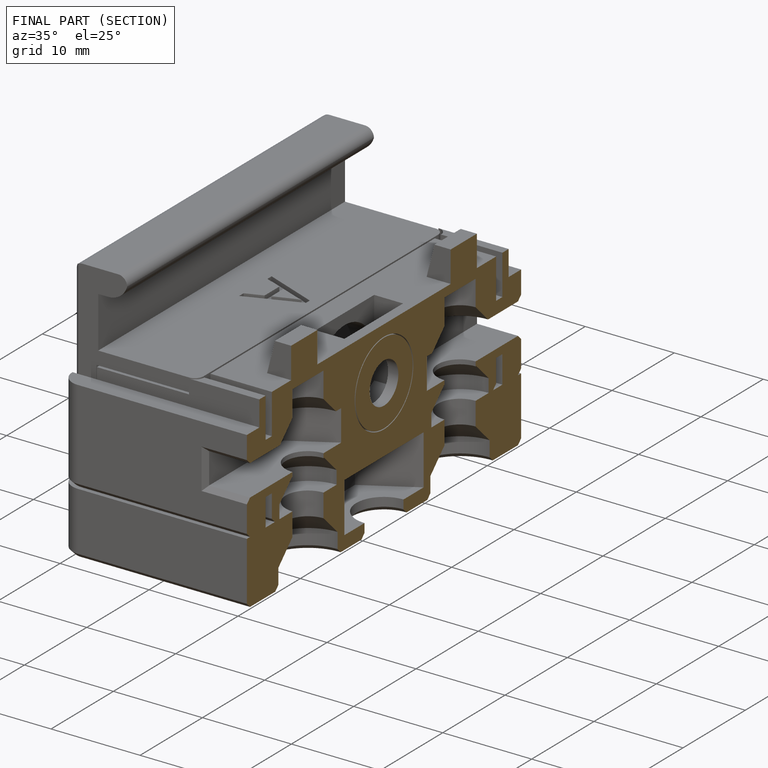
[diagram: finished part — half-section view (interior)]
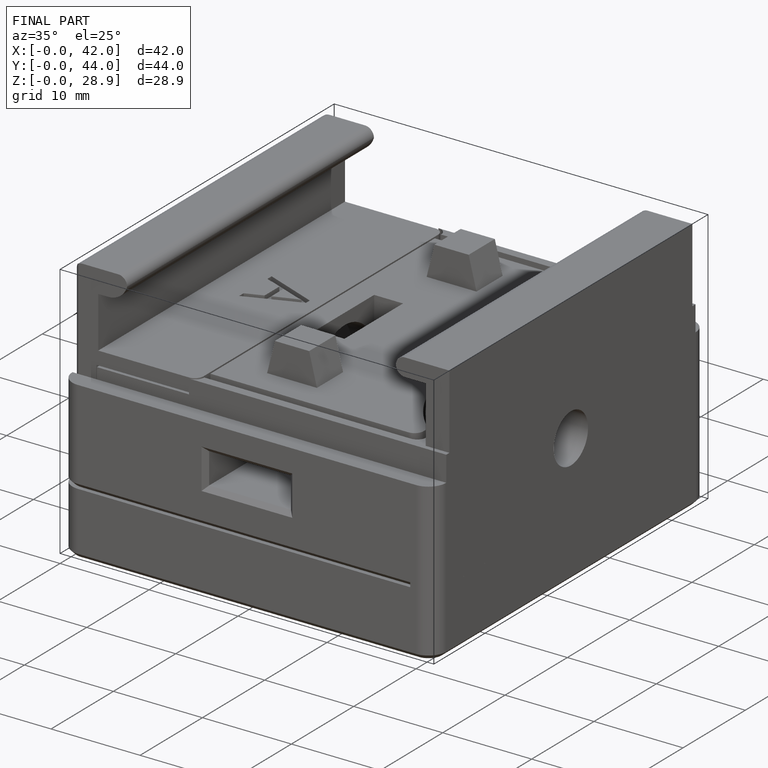
[diagram: finished part — iso view with bounding-box wireframe]
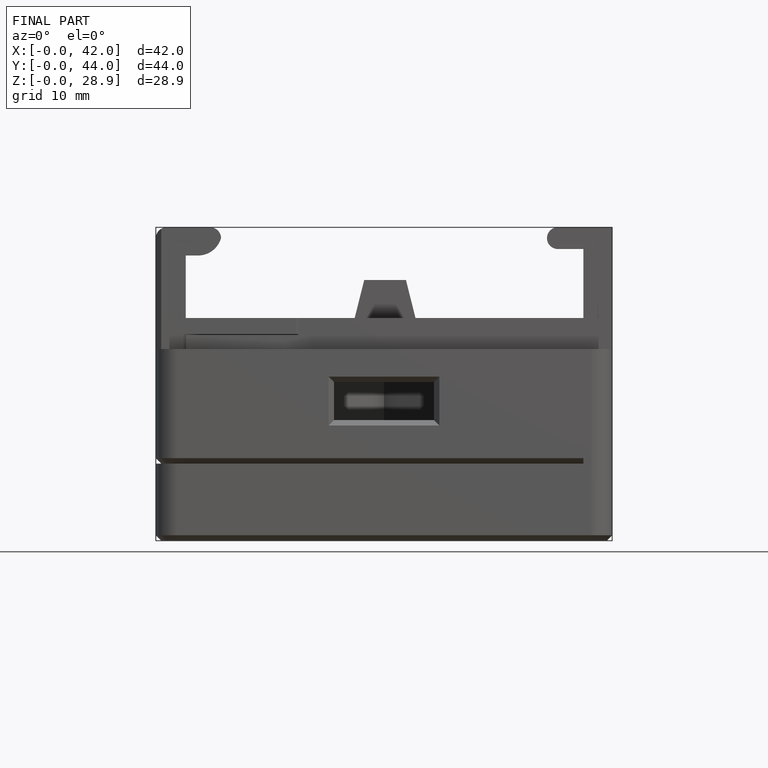
[diagram: finished part — front view with bounding-box wireframe]
